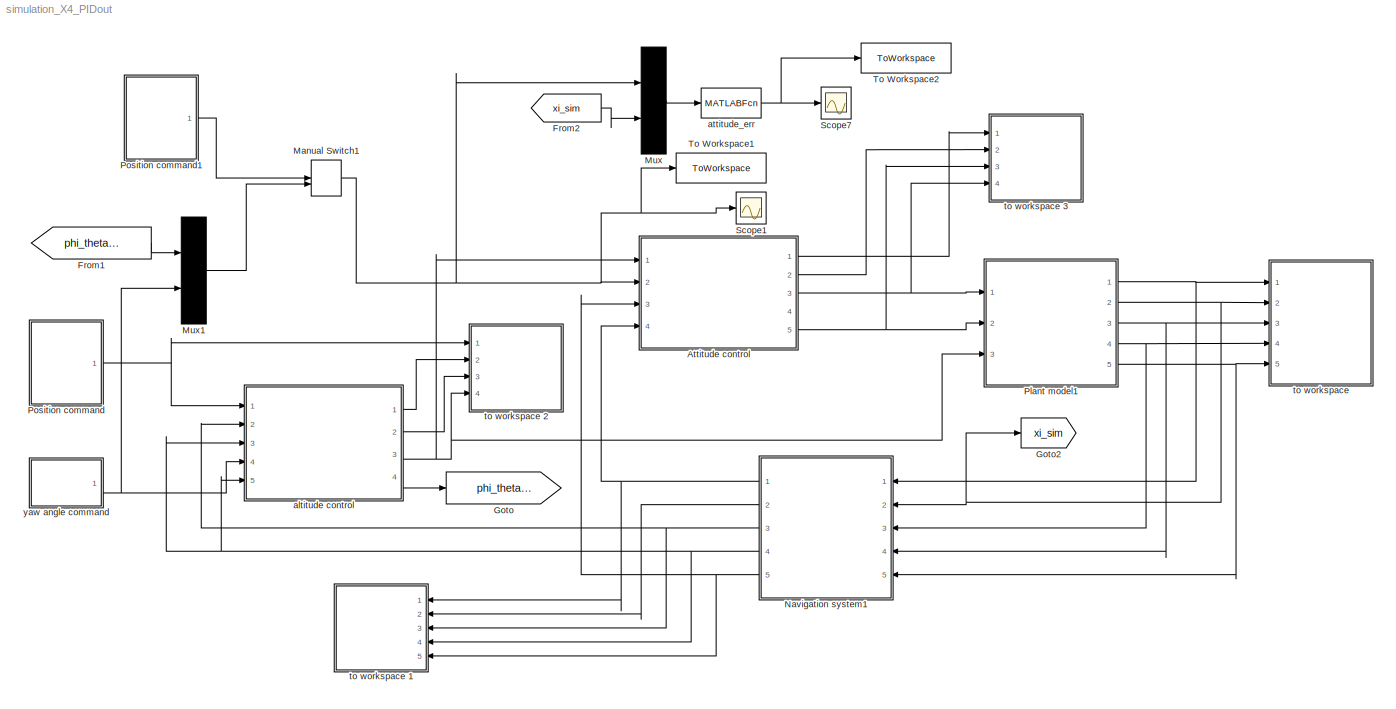
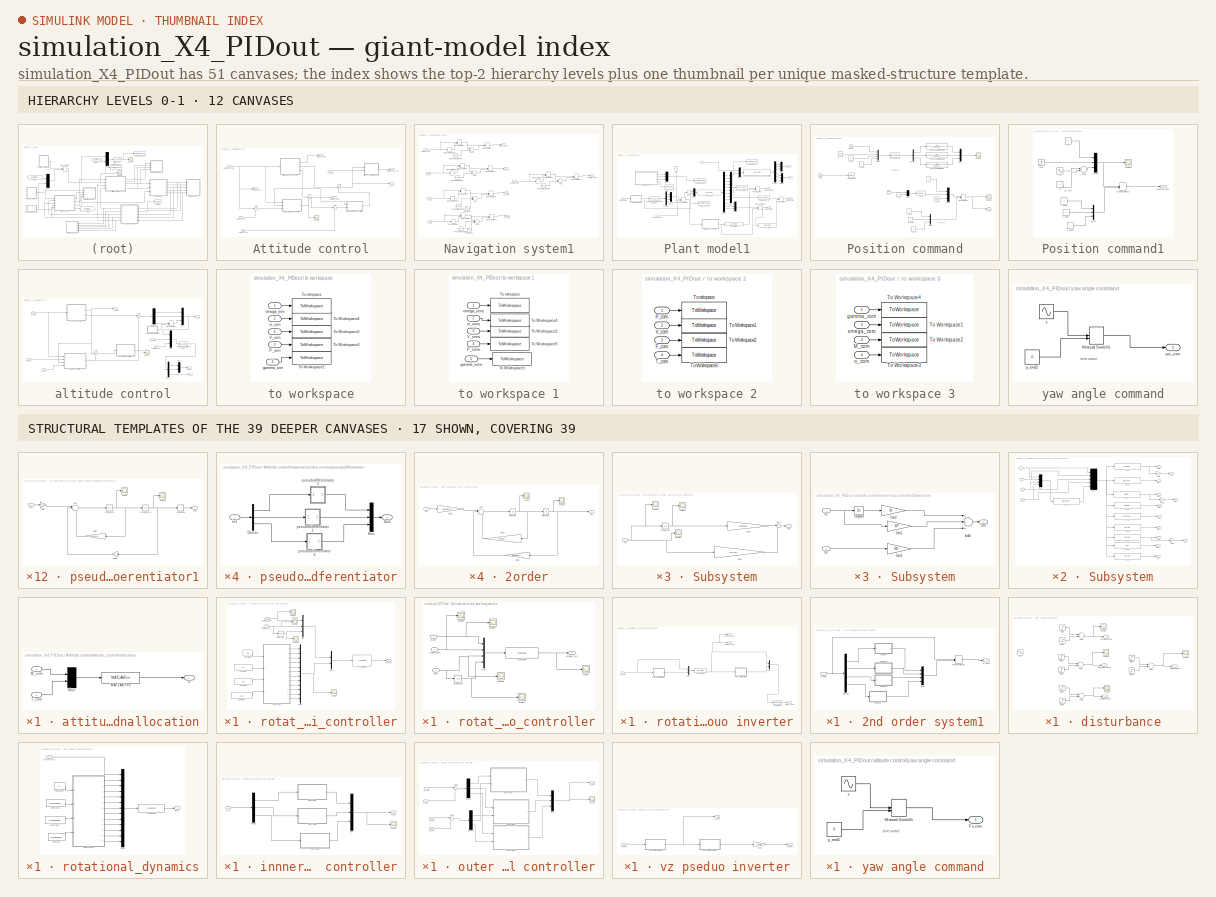
[diagram: thumbnail index - top-2 hierarchy levels (12 canvases) + 17 structural-template representatives of the remaining 39 canvases]
MODEL simulation_X4_PIDout
KIND model
BLOCK [SubSystem] Attitude control
  Ports = [4, 5]
  RequestExecContextInheritance = off
  SID = 1
  Variant = off
BLOCK [Outport] Attitude control/M_com
  IconDisplay = Port number
  Port = 5
  SID = 174
BLOCK [Scope] Attitude control/Scope7
  NumInputPorts = 1
  Ports = [1]
  SID = 6
  ScopeSpecificationString = C++SS(StrPVP('Location','[1, 48, 1367, 727]'),StrPVP('Open','off'),MxPVP('AxesTitles',24,'struct(''axes1'',''%<SignalLabel>'')'),MxPVP('ScopeGraphics',28,'struct(''FigureColor'',''[0.5 0.5 0.5]'',''AxesColor'',''[0 0 0]'',''AxesTickColor'',''[1 1 1]'',''LineColors'',''[1 1 0;1 0 1;0 1 1;1 0 0;0 1 0;0 0 1]'',''LineStyles'',''-|-|-|-|-|-'',''LineWidths'',''[0.5 0.5 0.5 0.5 0.5 0.5]'',''MarkerStyles'...<+269ch>  <repeated x6 — deduplicated; at blocks: Scope7, Scope1>
BLOCK [Sum] Attitude control/Sum2
  IconShape = round
  InputSameDT = off
  Inputs = |+-
  OutDataTypeStr = Inherit: Inherit via internal rule
  Ports = [2, 1]
  SID = 7
  SaturateOnIntegerOverflow = off
BLOCK [Sum] Attitude control/Sum3
  IconShape = round
  InputSameDT = off
  Inputs = |+-
  OutDataTypeStr = Inherit: Inherit via internal rule
  Ports = [2, 1]
  SID = 8
  SaturateOnIntegerOverflow = off
BLOCK [Sum] Attitude control/Sum7
  IconShape = round
  InputSameDT = off
  Inputs = |++
  OutDataTypeStr = Inherit: Inherit via internal rule
  Ports = [2, 1]
  SID = 9
  SaturateOnIntegerOverflow = off
BLOCK [Sum] Attitude control/Sum8
  IconShape = round
  InputSameDT = off
  Inputs = |++
  OutDataTypeStr = Inherit: Inherit via internal rule
  Ports = [2, 1]
  SID = 10
  SaturateOnIntegerOverflow = off
BLOCK [Inport] Attitude control/T_com_in
  IconDisplay = Port number
  SID = 2
BLOCK [SubSystem] Attitude control/attitude_control\nallocation
  Ports = [2, 1]
  RequestExecContextInheritance = off
  SID = 11
  Variant = off
BLOCK [MATLABFcn] Attitude control/attitude_control\nallocation/MATLAB Fcn
  MATLABFcn = attitude_control_allocation(u(1),u(2),u(3),u(4))
  Ports = [1, 1]
  SID = 14
BLOCK [Inport] Attitude control/attitude_control\nallocation/M_com
  IconDisplay = Port number
  SID = 12
BLOCK [Mux] Attitude control/attitude_control\nallocation/Mux
  DisplayOption = bar
  Inputs = 2
  Ports = [2, 1]
  SID = 15
BLOCK [Inport] Attitude control/attitude_control\nallocation/T_com
  IconDisplay = Port number
  Port = 2
  SID = 13
BLOCK [Outport] Attitude control/attitude_control\nallocation/o
  IconDisplay = Port number
  SID = 16
BLOCK [Outport] Attitude control/gamma_com
  IconDisplay = Port number
  SID = 170
BLOCK [Inport] Attitude control/gamma_com_in
  IconDisplay = Port number
  Port = 2
  SID = 3
BLOCK [Inport] Attitude control/gamma_sen
  IconDisplay = Port number
  Port = 3
  SID = 4
BLOCK [Outport] Attitude control/motor speed_com
  IconDisplay = Port number
  Port = 3
  SID = 172
BLOCK [Outport] Attitude control/omega_com
  IconDisplay = Port number
  Port = 2
  SID = 171
BLOCK [Outport] Attitude control/omega_nom
  IconDisplay = Port number
  Port = 4
  SID = 173
BLOCK [Inport] Attitude control/omega_sen
  IconDisplay = Port number
  Port = 4
  SID = 5
BLOCK [SubSystem] Attitude control/rotat_inner\nloop_controller
  Ports = [2, 1]
  RequestExecContextInheritance = off
  SID = 17
  Variant = off
BLOCK [Constant] Attitude control/rotat_inner\nloop_controller/Constant
  SID = 20
  Value = Ixx
BLOCK [Constant] Attitude control/rotat_inner\nloop_controller/Constant1
  SID = 21
  Value = Iyy
BLOCK [Constant] Attitude control/rotat_inner\nloop_controller/Constant2
  SID = 22
  Value = Izz
BLOCK [Constant] Attitude control/rotat_inner\nloop_controller/Constant3
  SID = 23
  Value = Ixz
BLOCK [Integrator] Attitude control/rotat_inner\nloop_controller/Integrator
  Ports = [1, 1]
  SID = 24
BLOCK [Mux] Attitude control/rotat_inner\nloop_controller/Mux
  DisplayOption = bar
  Inputs = 3
  Ports = [3, 1]
  SID = 25
BLOCK [Mux] Attitude control/rotat_inner\nloop_controller/Mux1
  DisplayOption = bar
  Inputs = 12
  Ports = [12, 1]
  SID = 26
BLOCK [Mux] Attitude control/rotat_inner\nloop_controller/Mux2
  DisplayOption = bar
  Inputs = 2
  Ports = [2, 1]
  SID = 27
BLOCK [S-Function] Attitude control/rotat_inner\nloop_controller/S-Function
  EnableBusSupport = off
  FunctionName = PI_controller_omega
  Ports = [1, 1]
  SFcnIsStateOwnerBlock = off
  SFunctionDeploymentMode = off
  SID = 28
BLOCK [Scope] Attitude control/rotat_inner\nloop_controller/Scope
  NumInputPorts = 1
  Ports = [1]
  SID = 29
  ScopeSpecificationString = C++SS(StrPVP('Location','[1, 52, 1441, 869]'),StrPVP('Open','off'),MxPVP('AxesTitles',24,'struct(''axes1'',''%<SignalLabel>'')'),StrPVP('ShowLegends','off'),StrPVP('DataFormat','StructureWithTime'),StrPVP('BlockParamSampleTime','0'),StrPVP('LimitDataPoints','on'),StrPVP('Decimation','1'),StrPVP('BlockParamSampleInput','off'))
BLOCK [Scope] Attitude control/rotat_inner\nloop_controller/Scope1
  NumInputPorts = 1
  Ports = [1]
  SID = 30
  ScopeSpecificationString = C++SS(StrPVP('Location','[1, 52, 1441, 869]'),StrPVP('Open','off'),MxPVP('AxesTitles',24,'struct(''axes1'',''%<SignalLabel>'')'),StrPVP('ShowLegends','off'),StrPVP('SaveName','ScopeData1'),StrPVP('DataFormat','StructureWithTime'),StrPVP('BlockParamSampleTime','0'),StrPVP('LimitDataPoints','on'),StrPVP('Decimation','1'),StrPVP('BlockParamSampleInput','off'))
BLOCK [Scope] Attitude control/rotat_inner\nloop_controller/Scope2
  NumInputPorts = 1
  Ports = [1]
  SID = 31
  ScopeSpecificationString = C++SS(StrPVP('Location','[5, 52, 1445, 869]'),StrPVP('Open','off'),MxPVP('AxesTitles',24,'struct(''axes1'',''%<SignalLabel>'')'),StrPVP('ShowLegends','off'),StrPVP('SaveName','ScopeData2'),StrPVP('DataFormat','StructureWithTime'),StrPVP('BlockParamSampleTime','0'),StrPVP('LimitDataPoints','on'),StrPVP('Decimation','1'),StrPVP('BlockParamSampleInput','off'))
BLOCK [Scope] Attitude control/rotat_inner\nloop_controller/Scope3
  NumInputPorts = 1
  Ports = [1]
  SID = 32
  ScopeSpecificationString = C++SS(StrPVP('Location','[5, 52, 1445, 869]'),StrPVP('Open','off'),MxPVP('AxesTitles',24,'struct(''axes1'',''%<SignalLabel>'')'),StrPVP('ShowLegends','off'),StrPVP('SaveName','ScopeData3'),StrPVP('DataFormat','StructureWithTime'),StrPVP('BlockParamSampleTime','0'),StrPVP('LimitDataPoints','on'),StrPVP('Decimation','1'),StrPVP('BlockParamSampleInput','off'))
BLOCK [SubSystem] Attitude control/rotat_inner\nloop_controller/Subsystem
  Ports = [4, 12]
  RequestExecContextInheritance = off
  SID = 33
  Variant = off
BLOCK [Fcn] Attitude control/rotat_inner\nloop_controller/Subsystem/Fcn
  Expr = (u(1)*(u(2)-u(3)-u(4)))*u(5)
  SID = 38
BLOCK [Fcn] Attitude control/rotat_inner\nloop_controller/Subsystem/Fcn1
  Expr = 1/(u(1)^2-u(4)*u(3))
  SID = 39
BLOCK [Fcn] Attitude control/rotat_inner\nloop_controller/Subsystem/Fcn2
  Expr = (u(3)^2-u(2)*u(3)-u(4)^2)*u(5)
  SID = 40
BLOCK [Fcn] Attitude control/rotat_inner\nloop_controller/Subsystem/Fcn3
  Expr = -u(1)/u(2)
  SID = 41
BLOCK [Fcn] Attitude control/rotat_inner\nloop_controller/Subsystem/Fcn4
  Expr = (u(3)-u(4))/u(2)
  SID = 42
BLOCK [Fcn] Attitude control/rotat_inner\nloop_controller/Subsystem/Fcn5
  Expr = (u(4)*u(2)-u(1)^2-u(4)^2)*u(5)
  SID = 43
BLOCK [Fcn] Attitude control/rotat_inner\nloop_controller/Subsystem/Fcn6
  Expr = -u(3)*u(5)
  SID = 44
BLOCK [Fcn] Attitude control/rotat_inner\nloop_controller/Subsystem/Fcn7
  Expr = -u(1)*u(5)
  SID = 45
BLOCK [Fcn] Attitude control/rotat_inner\nloop_controller/Subsystem/Fcn8
  Expr = 1/u(2)
  SID = 46
BLOCK [Fcn] Attitude control/rotat_inner\nloop_controller/Subsystem/Fcn9
  Expr = -u(4)*u(5)
  SID = 47
BLOCK [Gain] Attitude control/rotat_inner\nloop_controller/Subsystem/Gain
  Gain = -1
  OutDataTypeStr = Inherit: Inherit via internal rule
  ParamDataTypeStr = Inherit: Inherit via internal rule
  SID = 48
  SaturateOnIntegerOverflow = off
BLOCK [Gain] Attitude control/rotat_inner\nloop_controller/Subsystem/Gain1
  Gain = -1
  OutDataTypeStr = Inherit: Inherit via internal rule
  ParamDataTypeStr = Inherit: Inherit via internal rule
  SID = 49
  SaturateOnIntegerOverflow = off
BLOCK [Gain] Attitude control/rotat_inner\nloop_controller/Subsystem/Gain2
  OutDataTypeStr = Inherit: Inherit via internal rule
  ParamDataTypeStr = Inherit: Inherit via internal rule
  SID = 50
  SaturateOnIntegerOverflow = off
BLOCK [Outport] Attitude control/rotat_inner\nloop_controller/Subsystem/Ippq
  IconDisplay = Port number
  SID = 53
BLOCK [Outport] Attitude control/rotat_inner\nloop_controller/Subsystem/Ipqr
  IconDisplay = Port number
  Port = 2
  SID = 54
BLOCK [Outport] Attitude control/rotat_inner\nloop_controller/Subsystem/Iqpp
  IconDisplay = Port number
  Port = 3
  SID = 55
BLOCK [Outport] Attitude control/rotat_inner\nloop_controller/Subsystem/Iqpr
  IconDisplay = Port number
  Port = 4
  SID = 56
BLOCK [Outport] Attitude control/rotat_inner\nloop_controller/Subsystem/Iqrr
  IconDisplay = Port number
  Port = 11
  SID = 63
BLOCK [Outport] Attitude control/rotat_inner\nloop_controller/Subsystem/Irpq
  IconDisplay = Port number
  Port = 5
  SID = 57
BLOCK [Outport] Attitude control/rotat_inner\nloop_controller/Subsystem/Irqr
  IconDisplay = Port number
  Port = 10
  SID = 62
BLOCK [Inport] Attitude control/rotat_inner\nloop_controller/Subsystem/Ixx
  IconDisplay = Port number
  Port = 4
  SID = 37
BLOCK [Inport] Attitude control/rotat_inner\nloop_controller/Subsystem/Ixz
  IconDisplay = Port number
  SID = 34
BLOCK [Inport] Attitude control/rotat_inner\nloop_controller/Subsystem/Iyy
  IconDisplay = Port number
  Port = 2
  SID = 35
BLOCK [Inport] Attitude control/rotat_inner\nloop_controller/Subsystem/Izz
  IconDisplay = Port number
  Port = 3
  SID = 36
BLOCK [Mux] Attitude control/rotat_inner\nloop_controller/Subsystem/Mux
  DisplayOption = bar
  Ports = [4, 1]
  SID = 51
BLOCK [Mux] Attitude control/rotat_inner\nloop_controller/Subsystem/Mux1
  DisplayOption = bar
  Inputs = 5
  Ports = [5, 1]
  SID = 52
BLOCK [Outport] Attitude control/rotat_inner\nloop_controller/Subsystem/gpl
  IconDisplay = Port number
  Port = 6
  SID = 58
BLOCK [Outport] Attitude control/rotat_inner\nloop_controller/Subsystem/gpn
  IconDisplay = Port number
  Port = 7
  SID = 59
BLOCK [Outport] Attitude control/rotat_inner\nloop_controller/Subsystem/gqm
  IconDisplay = Port number
  Port = 8
  SID = 60
BLOCK [Outport] Attitude control/rotat_inner\nloop_controller/Subsystem/grl
  IconDisplay = Port number
  Port = 12
  SID = 64
BLOCK [Outport] Attitude control/rotat_inner\nloop_controller/Subsystem/grn
  IconDisplay = Port number
  Port = 9
  SID = 61
BLOCK [Outport] Attitude control/rotat_inner\nloop_controller/T_b_err
  IconDisplay = Port number
  SID = 65
BLOCK [Inport] Attitude control/rotat_inner\nloop_controller/omega_err
  IconDisplay = Port number
  Port = 2
  SID = 19
BLOCK [Inport] Attitude control/rotat_inner\nloop_controller/omega_nom
  IconDisplay = Port number
  SID = 18
BLOCK [SubSystem] Attitude control/rotat_outer\nloop_controller
  Ports = [3, 1]
  RequestExecContextInheritance = off
  SID = 66
  Variant = off
BLOCK [Integrator] Attitude control/rotat_outer\nloop_controller/Integrator
  Ports = [1, 1]
  SID = 70
BLOCK [Mux] Attitude control/rotat_outer\nloop_controller/Mux
  DisplayOption = bar
  Ports = [4, 1]
  SID = 71
BLOCK [S-Function] Attitude control/rotat_outer\nloop_controller/S-Function
  EnableBusSupport = off
  FunctionName = PI_controller_gamma
  Ports = [1, 1]
  SFcnIsStateOwnerBlock = off
  SFunctionDeploymentMode = off
  SID = 72
BLOCK [Scope] Attitude control/rotat_outer\nloop_controller/Scope
  NumInputPorts = 1
  Ports = [1]
  SID = 73
  ScopeSpecificationString = C++SS(StrPVP('Location','[1, 52, 1441, 869]'),StrPVP('Open','off'),MxPVP('AxesTitles',24,'struct(''axes1'',''%<SignalLabel>'')'),StrPVP('ShowLegends','off'),StrPVP('SaveName','ScopeData5'),StrPVP('DataFormat','StructureWithTime'),StrPVP('BlockParamSampleTime','0'),StrPVP('LimitDataPoints','on'),StrPVP('Decimation','1'),StrPVP('BlockParamSampleInput','off'))
BLOCK [Scope] Attitude control/rotat_outer\nloop_controller/Scope1
  NumInputPorts = 1
  Ports = [1]
  SID = 74
  ScopeSpecificationString = C++SS(StrPVP('Location','[1, 52, 1441, 869]'),StrPVP('Open','off'),MxPVP('AxesTitles',24,'struct(''axes1'',''%<SignalLabel>'')'),StrPVP('ShowLegends','off'),StrPVP('SaveName','ScopeData6'),StrPVP('DataFormat','StructureWithTime'),StrPVP('BlockParamSampleTime','0'),StrPVP('LimitDataPoints','on'),StrPVP('Decimation','1'),StrPVP('BlockParamSampleInput','off'))
BLOCK [Scope] Attitude control/rotat_outer\nloop_controller/Scope2
  NumInputPorts = 1
  Ports = [1]
  SID = 75
  ScopeSpecificationString = C++SS(StrPVP('Location','[1, 52, 1441, 869]'),StrPVP('Open','off'),MxPVP('AxesTitles',24,'struct(''axes1'',''%<SignalLabel>'')'),StrPVP('ShowLegends','off'),StrPVP('SaveName','ScopeData7'),StrPVP('DataFormat','StructureWithTime'),StrPVP('BlockParamSampleTime','0'),StrPVP('LimitDataPoints','on'),StrPVP('Decimation','1'),StrPVP('BlockParamSampleInput','off'))
BLOCK [Scope] Attitude control/rotat_outer\nloop_controller/Scope3
  NumInputPorts = 1
  Ports = [1]
  SID = 76
  ScopeSpecificationString = C++SS(StrPVP('Location','[1, 52, 1441, 869]'),StrPVP('Open','off'),MxPVP('AxesTitles',24,'struct(''axes1'',''%<SignalLabel>'')'),StrPVP('ShowLegends','off'),StrPVP('SaveName','ScopeData8'),StrPVP('DataFormat','StructureWithTime'),StrPVP('BlockParamSampleTime','0'),StrPVP('LimitDataPoints','on'),StrPVP('Decimation','1'),StrPVP('BlockParamSampleInput','off'))  <repeated x4 — deduplicated; at blocks: Scope3>
BLOCK [Scope] Attitude control/rotat_outer\nloop_controller/Scope4
  NumInputPorts = 1
  Ports = [1]
  SID = 77
  ScopeSpecificationString = C++SS(StrPVP('Location','[1, 52, 1441, 869]'),StrPVP('Open','off'),MxPVP('AxesTitles',24,'struct(''axes1'',''%<SignalLabel>'')'),StrPVP('ShowLegends','off'),StrPVP('SaveName','ScopeData9'),StrPVP('DataFormat','StructureWithTime'),StrPVP('BlockParamSampleTime','0'),StrPVP('LimitDataPoints','on'),StrPVP('Decimation','1'),StrPVP('BlockParamSampleInput','off'))
BLOCK [Outport] Attitude control/rotat_outer\nloop_controller/omega_c_err
  IconDisplay = Port number
  SID = 78
BLOCK [Inport] Attitude control/rotat_outer\nloop_controller/omega_nom
  IconDisplay = Port number
  Port = 2
  SID = 68
BLOCK [Inport] Attitude control/rotat_outer\nloop_controller/xi_err
  IconDisplay = Port number
  Port = 3
  SID = 69
BLOCK [Inport] Attitude control/rotat_outer\nloop_controller/xi_nom
  IconDisplay = Port number
  SID = 67
BLOCK [SubSystem] Attitude control/rotational pseduo inverter
  Ports = [1, 3]
  RequestExecContextInheritance = off
  SID = 79
  Variant = off
BLOCK [Mux] Attitude control/rotational pseduo inverter/Mux7
  DisplayOption = bar
  Inputs = 2
  Ports = [2, 1]
  SID = 81
BLOCK [Mux] Attitude control/rotational pseduo inverter/Mux9
  DisplayOption = bar
  Inputs = 2
  Ports = [2, 1]
  SID = 82
BLOCK [S-Function] Attitude control/rotational pseduo inverter/S-Function3
  EnableBusSupport = off
  FunctionName = omega_nom
  Ports = [1, 1]
  SFcnIsStateOwnerBlock = off
  SFunctionDeploymentMode = off
  SID = 83
BLOCK [S-Function] Attitude control/rotational pseduo inverter/S-Function4
  EnableBusSupport = off
  FunctionName = torque_nom
  Ports = [1, 1]
  SFcnIsStateOwnerBlock = off
  SFunctionDeploymentMode = off
  SID = 84
BLOCK [Outport] Attitude control/rotational pseduo inverter/omega_nom_1
  IconDisplay = Port number
  SID = 167
BLOCK [Outport] Attitude control/rotational pseduo inverter/omega_nom_2
  IconDisplay = Port number
  Port = 3
  SID = 169
BLOCK [SubSystem] Attitude control/rotational pseduo inverter/pseudodifferentiator
  Ports = [1, 1]
  RequestExecContextInheritance = off
  SID = 85
  Variant = off
BLOCK [Demux] Attitude control/rotational pseduo inverter/pseudodifferentiator/Demux
  DisplayOption = bar
  Outputs = 3
  Ports = [1, 3]
  SID = 87
BLOCK [Inport] Attitude control/rotational pseduo inverter/pseudodifferentiator/In1
  IconDisplay = Port number
  SID = 86
BLOCK [Mux] Attitude control/rotational pseduo inverter/pseudodifferentiator/Mux
  DisplayOption = bar
  Inputs = 3
  Ports = [3, 1]
  SID = 88
BLOCK [Outport] Attitude control/rotational pseduo inverter/pseudodifferentiator/Out1
  IconDisplay = Port number
  SID = 125
BLOCK [SubSystem] Attitude control/rotational pseduo inverter/pseudodifferentiator/pseudodifferentiator1
  Ports = [1, 1]
  RequestExecContextInheritance = off
  SID = 89
  Variant = off
BLOCK [Gain] Attitude control/rotational pseduo inverter/pseudodifferentiator/pseudodifferentiator1/-Gain1
  Gain = 25
  OutDataTypeStr = Inherit: Inherit via internal rule
  ParamDataTypeStr = Inherit: Inherit via internal rule
  SID = 91
  SaturateOnIntegerOverflow = off
BLOCK [Derivative] Attitude control/rotational pseduo inverter/pseudodifferentiator/pseudodifferentiator1/Derivative
  SID = 92
BLOCK [Gain] Attitude control/rotational pseduo inverter/pseudodifferentiator/pseudodifferentiator1/Gain1
  Gain = 25
  OutDataTypeStr = Inherit: Inherit via internal rule
  ParamDataTypeStr = Inherit: Inherit via internal rule
  SID = 93
  SaturateOnIntegerOverflow = off
BLOCK [Gain] Attitude control/rotational pseduo inverter/pseudodifferentiator/pseudodifferentiator1/Gain2
  Gain = 2*5*1.414
  OutDataTypeStr = Inherit: Inherit via internal rule
  ParamDataTypeStr = Inherit: Inherit via internal rule
  SID = 94
  SaturateOnIntegerOverflow = off
BLOCK [Inport] Attitude control/rotational pseduo inverter/pseudodifferentiator/pseudodifferentiator1/In1
  IconDisplay = Port number
  SID = 90
BLOCK [Integrator] Attitude control/rotational pseduo inverter/pseudodifferentiator/pseudodifferentiator1/Integrator
  Ports = [1, 1]
  SID = 95
BLOCK [Integrator] Attitude control/rotational pseduo inverter/pseudodifferentiator/pseudodifferentiator1/Integrator1
  Ports = [1, 1]
  SID = 96
BLOCK [Outport] Attitude control/rotational pseduo inverter/pseudodifferentiator/pseudodifferentiator1/Out1
  IconDisplay = Port number
  SID = 100
BLOCK [Scope] Attitude control/rotational pseduo inverter/pseudodifferentiator/pseudodifferentiator1/Scope
  NumInputPorts = 1
  Ports = [1]
  SID = 97
  ScopeSpecificationString = C++SS(StrPVP('Location','[188, 390, 512, 629]'),StrPVP('Open','off'),MxPVP('AxesTitles',24,'struct(''axes1'',''%<SignalLabel>'')'),MxPVP('ScopeGraphics',28,'struct(''FigureColor'',''[0.5 0.5 0.5]'',''AxesColor'',''[0 0 0]'',''AxesTickColor'',''[1 1 1]'',''LineColors'',''[1 1 0;1 0 1;0 1 1;1 0 0;0 1 0;0 0 1]'',''LineStyles'',''-|-|-|-|-|-'',''LineWidths'',''[0.5 0.5 0.5 0.5 0.5 0.5]'',''MarkerStyle...<+239ch>  <repeated x3 — deduplicated; at blocks: Scope>
BLOCK [Scope] Attitude control/rotational pseduo inverter/pseudodifferentiator/pseudodifferentiator1/Scope1
  NumInputPorts = 1
  Ports = [1]
  SID = 98
BLOCK [Sum] Attitude control/rotational pseduo inverter/pseudodifferentiator/pseudodifferentiator1/Sum
  IconShape = round
  InputSameDT = off
  Inputs = |+--
  OutDataTypeStr = Inherit: Inherit via internal rule
  Ports = [3, 1]
  SID = 99
  SaturateOnIntegerOverflow = off
BLOCK [SubSystem] Attitude control/rotational pseduo inverter/pseudodifferentiator/pseudodifferentiator2
  Ports = [1, 1]
  RequestExecContextInheritance = off
  SID = 101
  Variant = off
BLOCK [Gain] Attitude control/rotational pseduo inverter/pseudodifferentiator/pseudodifferentiator2/-Gain1
  Gain = 25
  OutDataTypeStr = Inherit: Inherit via internal rule
  ParamDataTypeStr = Inherit: Inherit via internal rule
  SID = 103
  SaturateOnIntegerOverflow = off
BLOCK [Derivative] Attitude control/rotational pseduo inverter/pseudodifferentiator/pseudodifferentiator2/Derivative
  SID = 104
BLOCK [Gain] Attitude control/rotational pseduo inverter/pseudodifferentiator/pseudodifferentiator2/Gain1
  Gain = 25
  OutDataTypeStr = Inherit: Inherit via internal rule
  ParamDataTypeStr = Inherit: Inherit via internal rule
  SID = 105
  SaturateOnIntegerOverflow = off
BLOCK [Gain] Attitude control/rotational pseduo inverter/pseudodifferentiator/pseudodifferentiator2/Gain2
  Gain = 2*5*1.414
  OutDataTypeStr = Inherit: Inherit via internal rule
  ParamDataTypeStr = Inherit: Inherit via internal rule
  SID = 106
  SaturateOnIntegerOverflow = off
BLOCK [Inport] Attitude control/rotational pseduo inverter/pseudodifferentiator/pseudodifferentiator2/In1
  IconDisplay = Port number
  SID = 102
BLOCK [Integrator] Attitude control/rotational pseduo inverter/pseudodifferentiator/pseudodifferentiator2/Integrator
  Ports = [1, 1]
  SID = 107
BLOCK [Integrator] Attitude control/rotational pseduo inverter/pseudodifferentiator/pseudodifferentiator2/Integrator1
  Ports = [1, 1]
  SID = 108
BLOCK [Outport] Attitude control/rotational pseduo inverter/pseudodifferentiator/pseudodifferentiator2/Out1
  IconDisplay = Port number
  SID = 112
BLOCK [Scope] Attitude control/rotational pseduo inverter/pseudodifferentiator/pseudodifferentiator2/Scope
  NumInputPorts = 1
  Ports = [1]
  SID = 109
BLOCK [Scope] Attitude control/rotational pseduo inverter/pseudodifferentiator/pseudodifferentiator2/Scope1
  NumInputPorts = 1
  Ports = [1]
  SID = 110
  ScopeSpecificationString = C++SS(StrPVP('Location','[-86, 143, 1284, 866]'),StrPVP('Open','off'),MxPVP('AxesTitles',24,'struct(''axes1'',''%<SignalLabel>'')'),MxPVP('ScopeGraphics',28,'struct(''FigureColor'',''[0.5 0.5 0.5]'',''AxesColor'',''[0 0 0]'',''AxesTickColor'',''[1 1 1]'',''LineColors'',''[1 1 0;1 0 1;0 1 1;1 0 0;0 1 0;0 0 1]'',''LineStyles'',''-|-|-|-|-|-'',''LineWidths'',''[0.5 0.5 0.5 0.5 0.5 0.5]'',''MarkerStyl...<+272ch>
BLOCK [Sum] Attitude control/rotational pseduo inverter/pseudodifferentiator/pseudodifferentiator2/Sum
  IconShape = round
  InputSameDT = off
  Inputs = |+--
  OutDataTypeStr = Inherit: Inherit via internal rule
  Ports = [3, 1]
  SID = 111
  SaturateOnIntegerOverflow = off
BLOCK [SubSystem] Attitude control/rotational pseduo inverter/pseudodifferentiator/pseudodifferentiator3
  Ports = [1, 1]
  RequestExecContextInheritance = off
  SID = 113
  Variant = off
BLOCK [Gain] Attitude control/rotational pseduo inverter/pseudodifferentiator/pseudodifferentiator3/-Gain1
  Gain = 25
  OutDataTypeStr = Inherit: Inherit via internal rule
  ParamDataTypeStr = Inherit: Inherit via internal rule
  SID = 115
  SaturateOnIntegerOverflow = off
BLOCK [Derivative] Attitude control/rotational pseduo inverter/pseudodifferentiator/pseudodifferentiator3/Derivative
  SID = 116
BLOCK [Gain] Attitude control/rotational pseduo inverter/pseudodifferentiator/pseudodifferentiator3/Gain1
  Gain = 25
  OutDataTypeStr = Inherit: Inherit via internal rule
  ParamDataTypeStr = Inherit: Inherit via internal rule
  SID = 117
  SaturateOnIntegerOverflow = off
BLOCK [Gain] Attitude control/rotational pseduo inverter/pseudodifferentiator/pseudodifferentiator3/Gain2
  Gain = 2*5*1.414
  OutDataTypeStr = Inherit: Inherit via internal rule
  ParamDataTypeStr = Inherit: Inherit via internal rule
  SID = 118
  SaturateOnIntegerOverflow = off
BLOCK [Inport] Attitude control/rotational pseduo inverter/pseudodifferentiator/pseudodifferentiator3/In1
  IconDisplay = Port number
  SID = 114
BLOCK [Integrator] Attitude control/rotational pseduo inverter/pseudodifferentiator/pseudodifferentiator3/Integrator
  Ports = [1, 1]
  SID = 119
BLOCK [Integrator] Attitude control/rotational pseduo inverter/pseudodifferentiator/pseudodifferentiator3/Integrator1
  Ports = [1, 1]
  SID = 120
BLOCK [Outport] Attitude control/rotational pseduo inverter/pseudodifferentiator/pseudodifferentiator3/Out1
  IconDisplay = Port number
  SID = 124
BLOCK [Scope] Attitude control/rotational pseduo inverter/pseudodifferentiator/pseudodifferentiator3/Scope
  NumInputPorts = 1
  Ports = [1]
  SID = 121
  ScopeSpecificationString = C++SS(StrPVP('Location','[1, 48, 1367, 727]'),StrPVP('Open','off'),MxPVP('AxesTitles',24,'struct(''axes1'',''%<SignalLabel>'')'),MxPVP('ScopeGraphics',28,'struct(''FigureColor'',''[0.5 0.5 0.5]'',''AxesColor'',''[0 0 0]'',''AxesTickColor'',''[1 1 1]'',''LineColors'',''[1 1 0;1 0 1;0 1 1;1 0 0;0 1 0;0 0 1]'',''LineStyles'',''-|-|-|-|-|-'',''LineWidths'',''[0.5 0.5 0.5 0.5 0.5 0.5]'',''MarkerStyles'...<+237ch>  <repeated x3 — deduplicated; at blocks: Scope>
BLOCK [Scope] Attitude control/rotational pseduo inverter/pseudodifferentiator/pseudodifferentiator3/Scope1
  NumInputPorts = 1
  Ports = [1]
  SID = 122
BLOCK [Sum] Attitude control/rotational pseduo inverter/pseudodifferentiator/pseudodifferentiator3/Sum
  IconShape = round
  InputSameDT = off
  Inputs = |+--
  OutDataTypeStr = Inherit: Inherit via internal rule
  Ports = [3, 1]
  SID = 123
  SaturateOnIntegerOverflow = off
BLOCK [SubSystem] Attitude control/rotational pseduo inverter/pseudodifferentiator1
  Ports = [1, 1]
  RequestExecContextInheritance = off
  SID = 126
  Variant = off
BLOCK [Demux] Attitude control/rotational pseduo inverter/pseudodifferentiator1/Demux
  DisplayOption = bar
  Outputs = 3
  Ports = [1, 3]
  SID = 128
BLOCK [Inport] Attitude control/rotational pseduo inverter/pseudodifferentiator1/In1
  IconDisplay = Port number
  SID = 127
BLOCK [Mux] Attitude control/rotational pseduo inverter/pseudodifferentiator1/Mux
  DisplayOption = bar
  Inputs = 3
  Ports = [3, 1]
  SID = 129
BLOCK [Outport] Attitude control/rotational pseduo inverter/pseudodifferentiator1/Out1
  IconDisplay = Port number
  SID = 166
BLOCK [SubSystem] Attitude control/rotational pseduo inverter/pseudodifferentiator1/pseudodifferentiator1
  Ports = [1, 1]
  RequestExecContextInheritance = off
  SID = 130
  Variant = off
BLOCK [Gain] Attitude control/rotational pseduo inverter/pseudodifferentiator1/pseudodifferentiator1/-Gain1
  Gain = 100
  OutDataTypeStr = Inherit: Inherit via internal rule
  ParamDataTypeStr = Inherit: Inherit via internal rule
  SID = 132
  SaturateOnIntegerOverflow = off
BLOCK [Derivative] Attitude control/rotational pseduo inverter/pseudodifferentiator1/pseudodifferentiator1/Derivative
  SID = 133
BLOCK [Gain] Attitude control/rotational pseduo inverter/pseudodifferentiator1/pseudodifferentiator1/Gain1
  Gain = 100
  OutDataTypeStr = Inherit: Inherit via internal rule
  ParamDataTypeStr = Inherit: Inherit via internal rule
  SID = 134
  SaturateOnIntegerOverflow = off
BLOCK [Gain] Attitude control/rotational pseduo inverter/pseudodifferentiator1/pseudodifferentiator1/Gain2
  Gain = 28.28
  OutDataTypeStr = Inherit: Inherit via internal rule
  ParamDataTypeStr = Inherit: Inherit via internal rule
  SID = 135
  SaturateOnIntegerOverflow = off
BLOCK [Inport] Attitude control/rotational pseduo inverter/pseudodifferentiator1/pseudodifferentiator1/In1
  IconDisplay = Port number
  SID = 131
BLOCK [Integrator] Attitude control/rotational pseduo inverter/pseudodifferentiator1/pseudodifferentiator1/Integrator
  Ports = [1, 1]
  SID = 136
BLOCK [Integrator] Attitude control/rotational pseduo inverter/pseudodifferentiator1/pseudodifferentiator1/Integrator1
  Ports = [1, 1]
  SID = 137
BLOCK [Outport] Attitude control/rotational pseduo inverter/pseudodifferentiator1/pseudodifferentiator1/Out1
  IconDisplay = Port number
  SID = 141
BLOCK [Scope] Attitude control/rotational pseduo inverter/pseudodifferentiator1/pseudodifferentiator1/Scope
  NumInputPorts = 1
  Ports = [1]
  SID = 138
  ScopeSpecificationString = C++SS(StrPVP('Location','[188, 390, 512, 629]'),StrPVP('Open','off'),MxPVP('AxesTitles',24,'struct(''axes1'',''%<SignalLabel>'')'),StrPVP('ShowLegends','off'),StrPVP('DataFormat','StructureWithTime'),StrPVP('BlockParamSampleTime','0'),StrPVP('LimitDataPoints','on'),StrPVP('Decimation','1'),StrPVP('BlockParamSampleInput','off'))  <repeated x10 — deduplicated; at blocks: Scope>
BLOCK [Scope] Attitude control/rotational pseduo inverter/pseudodifferentiator1/pseudodifferentiator1/Scope1
  NumInputPorts = 1
  Ports = [1]
  SID = 139
  ScopeSpecificationString = C++SS(StrPVP('Location','[5, 52, 1445, 869]'),StrPVP('Open','off'),MxPVP('AxesTitles',24,'struct(''axes1'',''%<SignalLabel>'')'),StrPVP('ShowLegends','off'),StrPVP('SaveName','ScopeData1'),StrPVP('DataFormat','StructureWithTime'),StrPVP('BlockParamSampleTime','0'),StrPVP('LimitDataPoints','on'),StrPVP('Decimation','1'),StrPVP('BlockParamSampleInput','off'))  <repeated x9 — deduplicated; at blocks: Scope1>
BLOCK [Sum] Attitude control/rotational pseduo inverter/pseudodifferentiator1/pseudodifferentiator1/Sum
  IconShape = round
  InputSameDT = off
  Inputs = |+--
  OutDataTypeStr = Inherit: Inherit via internal rule
  Ports = [3, 1]
  SID = 140
  SaturateOnIntegerOverflow = off
BLOCK [SubSystem] Attitude control/rotational pseduo inverter/pseudodifferentiator1/pseudodifferentiator2
  Ports = [1, 1]
  RequestExecContextInheritance = off
  SID = 142
  Variant = off
BLOCK [Gain] Attitude control/rotational pseduo inverter/pseudodifferentiator1/pseudodifferentiator2/-Gain1
  Gain = 100
  OutDataTypeStr = Inherit: Inherit via internal rule
  ParamDataTypeStr = Inherit: Inherit via internal rule
  SID = 144
  SaturateOnIntegerOverflow = off
BLOCK [Derivative] Attitude control/rotational pseduo inverter/pseudodifferentiator1/pseudodifferentiator2/Derivative
  SID = 145
BLOCK [Gain] Attitude control/rotational pseduo inverter/pseudodifferentiator1/pseudodifferentiator2/Gain1
  Gain = 100
  OutDataTypeStr = Inherit: Inherit via internal rule
  ParamDataTypeStr = Inherit: Inherit via internal rule
  SID = 146
  SaturateOnIntegerOverflow = off
BLOCK [Gain] Attitude control/rotational pseduo inverter/pseudodifferentiator1/pseudodifferentiator2/Gain2
  Gain = 28.28
  OutDataTypeStr = Inherit: Inherit via internal rule
  ParamDataTypeStr = Inherit: Inherit via internal rule
  SID = 147
  SaturateOnIntegerOverflow = off
BLOCK [Inport] Attitude control/rotational pseduo inverter/pseudodifferentiator1/pseudodifferentiator2/In1
  IconDisplay = Port number
  SID = 143
BLOCK [Integrator] Attitude control/rotational pseduo inverter/pseudodifferentiator1/pseudodifferentiator2/Integrator
  Ports = [1, 1]
  SID = 148
BLOCK [Integrator] Attitude control/rotational pseduo inverter/pseudodifferentiator1/pseudodifferentiator2/Integrator1
  Ports = [1, 1]
  SID = 149
BLOCK [Outport] Attitude control/rotational pseduo inverter/pseudodifferentiator1/pseudodifferentiator2/Out1
  IconDisplay = Port number
  SID = 153
BLOCK [Scope] Attitude control/rotational pseduo inverter/pseudodifferentiator1/pseudodifferentiator2/Scope
  NumInputPorts = 1
  Ports = [1]
  SID = 150
BLOCK [Scope] Attitude control/rotational pseduo inverter/pseudodifferentiator1/pseudodifferentiator2/Scope1
  NumInputPorts = 1
  Ports = [1]
  SID = 151
BLOCK [Sum] Attitude control/rotational pseduo inverter/pseudodifferentiator1/pseudodifferentiator2/Sum
  IconShape = round
  InputSameDT = off
  Inputs = |+--
  OutDataTypeStr = Inherit: Inherit via internal rule
  Ports = [3, 1]
  SID = 152
  SaturateOnIntegerOverflow = off
BLOCK [SubSystem] Attitude control/rotational pseduo inverter/pseudodifferentiator1/pseudodifferentiator3
  Ports = [1, 1]
  RequestExecContextInheritance = off
  SID = 154
  Variant = off
BLOCK [Gain] Attitude control/rotational pseduo inverter/pseudodifferentiator1/pseudodifferentiator3/-Gain1
  Gain = 100
  OutDataTypeStr = Inherit: Inherit via internal rule
  ParamDataTypeStr = Inherit: Inherit via internal rule
  SID = 156
  SaturateOnIntegerOverflow = off
BLOCK [Derivative] Attitude control/rotational pseduo inverter/pseudodifferentiator1/pseudodifferentiator3/Derivative
  SID = 157
BLOCK [Gain] Attitude control/rotational pseduo inverter/pseudodifferentiator1/pseudodifferentiator3/Gain1
  Gain = 100
  OutDataTypeStr = Inherit: Inherit via internal rule
  ParamDataTypeStr = Inherit: Inherit via internal rule
  SID = 158
  SaturateOnIntegerOverflow = off
BLOCK [Gain] Attitude control/rotational pseduo inverter/pseudodifferentiator1/pseudodifferentiator3/Gain2
  Gain = 28.28
  OutDataTypeStr = Inherit: Inherit via internal rule
  ParamDataTypeStr = Inherit: Inherit via internal rule
  SID = 159
  SaturateOnIntegerOverflow = off
BLOCK [Inport] Attitude control/rotational pseduo inverter/pseudodifferentiator1/pseudodifferentiator3/In1
  IconDisplay = Port number
  SID = 155
BLOCK [Integrator] Attitude control/rotational pseduo inverter/pseudodifferentiator1/pseudodifferentiator3/Integrator
  Ports = [1, 1]
  SID = 160
BLOCK [Integrator] Attitude control/rotational pseduo inverter/pseudodifferentiator1/pseudodifferentiator3/Integrator1
  Ports = [1, 1]
  SID = 161
BLOCK [Outport] Attitude control/rotational pseduo inverter/pseudodifferentiator1/pseudodifferentiator3/Out1
  IconDisplay = Port number
  SID = 165
BLOCK [Scope] Attitude control/rotational pseduo inverter/pseudodifferentiator1/pseudodifferentiator3/Scope
  NumInputPorts = 1
  Ports = [1]
  SID = 162
BLOCK [Scope] Attitude control/rotational pseduo inverter/pseudodifferentiator1/pseudodifferentiator3/Scope1
  NumInputPorts = 1
  Ports = [1]
  SID = 163
BLOCK [Sum] Attitude control/rotational pseduo inverter/pseudodifferentiator1/pseudodifferentiator3/Sum
  IconShape = round
  InputSameDT = off
  Inputs = |+--
  OutDataTypeStr = Inherit: Inherit via internal rule
  Ports = [3, 1]
  SID = 164
  SaturateOnIntegerOverflow = off
BLOCK [Outport] Attitude control/rotational pseduo inverter/torques_nom
  IconDisplay = Port number
  Port = 2
  SID = 168
BLOCK [Inport] Attitude control/rotational pseduo inverter/xi_nom
  IconDisplay = Port number
  SID = 80
BLOCK [From] From1
  CloseFcn = tagdialog Close
  GotoTag = phi_theta_com
  SID = 628
BLOCK [From] From2
  CloseFcn = tagdialog Close
  GotoTag = xi_sim
  SID = 199
BLOCK [Goto] Goto
  GotoTag = phi_theta_com
  SID = 200
BLOCK [Goto] Goto2
  GotoTag = xi_sim
  SID = 202
BLOCK [ManualSwitch] Manual Switch1
  CurrentSetting = 0
  SID = 810
BLOCK [Mux] Mux
  DisplayOption = bar
  Inputs = 2
  Ports = [2, 1]
  SID = 203
BLOCK [Mux] Mux1
  DisplayOption = bar
  Inputs = 2
  Ports = [2, 1]
  SID = 629
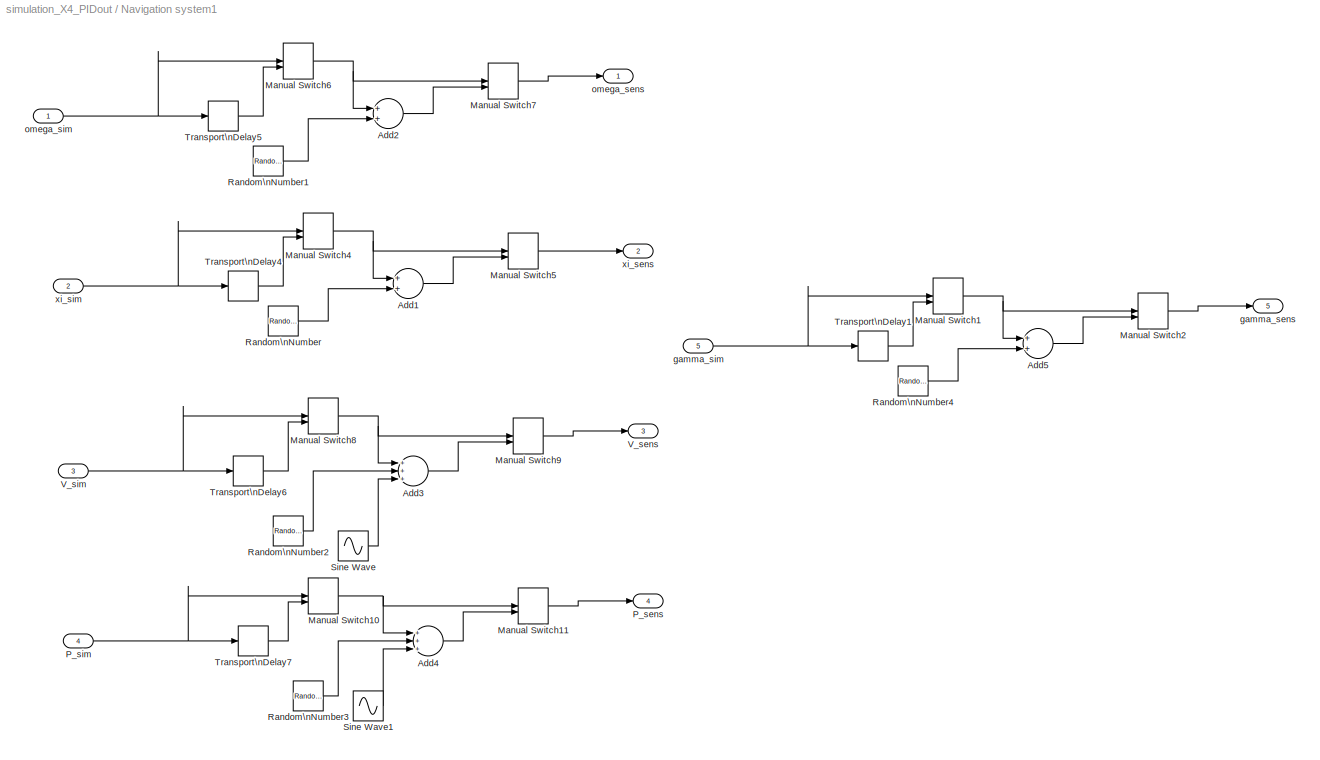
BLOCK [SubSystem] Navigation system1
  Ports = [5, 5]
  RequestExecContextInheritance = off
  SID = 204
  Variant = off
BLOCK [Sum] Navigation system1/Add1
  InputSameDT = off
  OutDataTypeStr = Inherit: Inherit via internal rule
  Ports = [2, 1]
  SID = 210
  SaturateOnIntegerOverflow = off
BLOCK [Sum] Navigation system1/Add2
  InputSameDT = off
  OutDataTypeStr = Inherit: Inherit via internal rule
  Ports = [2, 1]
  SID = 211
  SaturateOnIntegerOverflow = off
BLOCK [Sum] Navigation system1/Add3
  InputSameDT = off
  Inputs = +++
  OutDataTypeStr = Inherit: Inherit via internal rule
  Ports = [3, 1]
  SID = 212
  SaturateOnIntegerOverflow = off
BLOCK [Sum] Navigation system1/Add4
  InputSameDT = off
  Inputs = +++
  OutDataTypeStr = Inherit: Inherit via internal rule
  Ports = [3, 1]
  SID = 213
  SaturateOnIntegerOverflow = off
BLOCK [Sum] Navigation system1/Add5
  InputSameDT = off
  OutDataTypeStr = Inherit: Inherit via internal rule
  Ports = [2, 1]
  SID = 214
  SaturateOnIntegerOverflow = off
BLOCK [ManualSwitch] Navigation system1/Manual Switch1
  SID = 215
BLOCK [ManualSwitch] Navigation system1/Manual Switch10
  SID = 216
BLOCK [ManualSwitch] Navigation system1/Manual Switch11
  SID = 217
BLOCK [ManualSwitch] Navigation system1/Manual Switch2
  SID = 218
BLOCK [ManualSwitch] Navigation system1/Manual Switch4
  SID = 219
BLOCK [ManualSwitch] Navigation system1/Manual Switch5
  SID = 220
BLOCK [ManualSwitch] Navigation system1/Manual Switch6
  SID = 221
BLOCK [ManualSwitch] Navigation system1/Manual Switch7
  SID = 222
BLOCK [ManualSwitch] Navigation system1/Manual Switch8
  SID = 223
BLOCK [ManualSwitch] Navigation system1/Manual Switch9
  SID = 224
BLOCK [Outport] Navigation system1/P_sens
  IconDisplay = Port number
  Port = 4
  SID = 238
BLOCK [Inport] Navigation system1/P_sim
  IconDisplay = Port number
  Port = 4
  SID = 208
BLOCK [RandomNumber] Navigation system1/Random\nNumber
  SID = 225
  SampleTime = 0
  Variance = 0.000025
BLOCK [RandomNumber] Navigation system1/Random\nNumber1
  SID = 226
  SampleTime = 0
  Variance = 0.001
BLOCK [RandomNumber] Navigation system1/Random\nNumber2
  SID = 227
  SampleTime = 0
  Variance = 0.001
BLOCK [RandomNumber] Navigation system1/Random\nNumber3
  SID = 228
  SampleTime = 0
  Variance = 0.001
BLOCK [RandomNumber] Navigation system1/Random\nNumber4
  SID = 229
  SampleTime = 0
  Variance = 0.000025
BLOCK [Sin] Navigation system1/Sine Wave
  Amplitude = 0.2
  Ports = [0, 1]
  SID = 858
  SampleTime = 0
BLOCK [Sin] Navigation system1/Sine Wave1
  Amplitude = 1.5
  Ports = [0, 1]
  SID = 860
  SampleTime = 0
BLOCK [TransportDelay] Navigation system1/Transport\nDelay1
  DelayTime = 0.02
  Ports = [1, 1]
  SID = 230
BLOCK [TransportDelay] Navigation system1/Transport\nDelay4
  DelayTime = 0.02
  Ports = [1, 1]
  SID = 231
BLOCK [TransportDelay] Navigation system1/Transport\nDelay5
  DelayTime = 0.02
  Ports = [1, 1]
  SID = 232
BLOCK [TransportDelay] Navigation system1/Transport\nDelay6
  DelayTime = 0.4
  Ports = [1, 1]
  SID = 233
BLOCK [TransportDelay] Navigation system1/Transport\nDelay7
  DelayTime = 0.4
  Ports = [1, 1]
  SID = 234
BLOCK [Outport] Navigation system1/V_sens
  IconDisplay = Port number
  Port = 3
  SID = 237
BLOCK [Inport] Navigation system1/V_sim
  IconDisplay = Port number
  Port = 3
  SID = 207
BLOCK [Outport] Navigation system1/gamma_sens
  IconDisplay = Port number
  Port = 5
  SID = 239
BLOCK [Inport] Navigation system1/gamma_sim
  IconDisplay = Port number
  Port = 5
  SID = 209
BLOCK [Outport] Navigation system1/omega_sens
  IconDisplay = Port number
  SID = 235
BLOCK [Inport] Navigation system1/omega_sim
  IconDisplay = Port number
  SID = 205
BLOCK [Outport] Navigation system1/xi_sens
  IconDisplay = Port number
  Port = 2
  SID = 236
BLOCK [Inport] Navigation system1/xi_sim
  IconDisplay = Port number
  Port = 2
  SID = 206
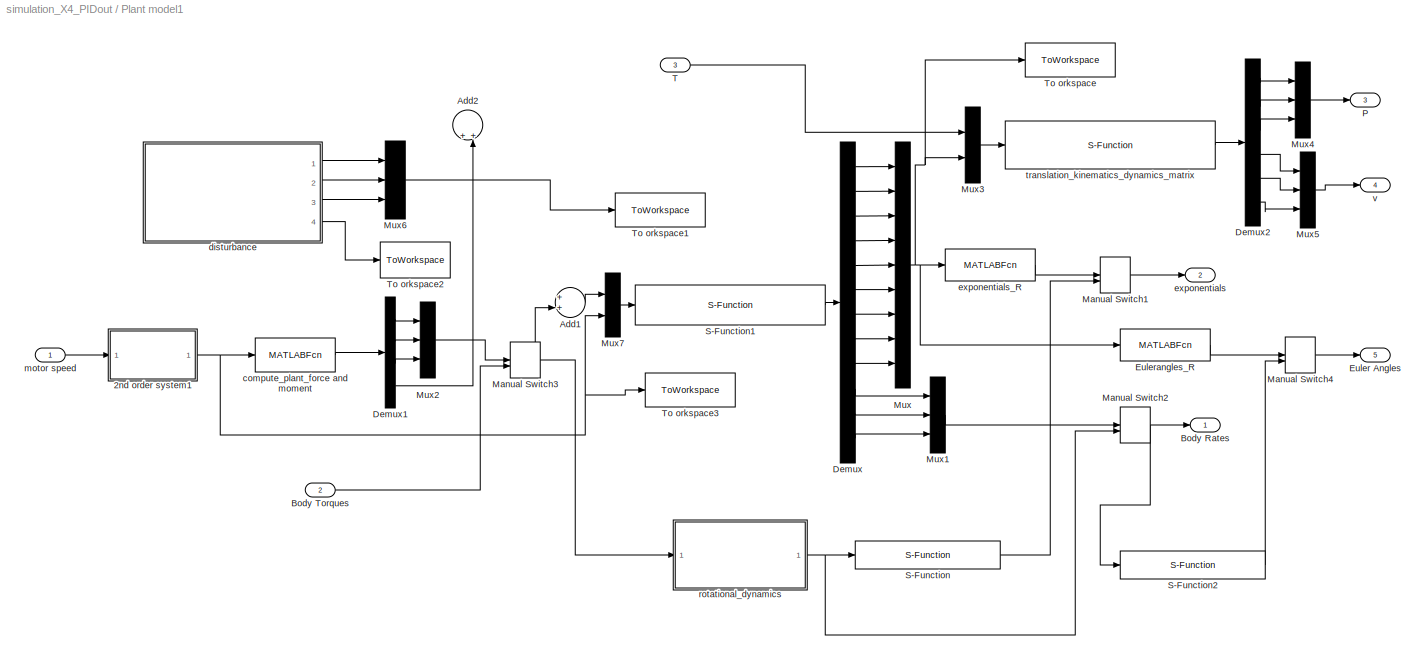
BLOCK [SubSystem] Plant model1
  Ports = [3, 5]
  RequestExecContextInheritance = off
  SID = 240
  Variant = off
BLOCK [SubSystem] Plant model1/2nd order system1
  Ports = [1, 1]
  RequestExecContextInheritance = off
  SID = 243
  Variant = off
BLOCK [SubSystem] Plant model1/2nd order system1/2order
  Ports = [1, 1]
  RequestExecContextInheritance = off
  SID = 245
  Variant = off
BLOCK [Gain] Plant model1/2nd order system1/2order/-Gain1
  Gain = omega_n_m^2
  OutDataTypeStr = Inherit: Inherit via internal rule
  ParamDataTypeStr = Inherit: Inherit via internal rule
  SID = 247
  SaturateOnIntegerOverflow = off
BLOCK [Gain] Plant model1/2nd order system1/2order/Gain1
  Gain = omega_n_m^2
  OutDataTypeStr = Inherit: Inherit via internal rule
  ParamDataTypeStr = Inherit: Inherit via internal rule
  SID = 248
  SaturateOnIntegerOverflow = off
BLOCK [Gain] Plant model1/2nd order system1/2order/Gain2
  Gain = 2*xi_m*omega_n_m
  OutDataTypeStr = Inherit: Inherit via internal rule
  ParamDataTypeStr = Inherit: Inherit via internal rule
  SID = 249
  SaturateOnIntegerOverflow = off
BLOCK [Inport] Plant model1/2nd order system1/2order/In1
  IconDisplay = Port number
  SID = 246
BLOCK [Integrator] Plant model1/2nd order system1/2order/Integrator
  Ports = [1, 1]
  SID = 250
BLOCK [Integrator] Plant model1/2nd order system1/2order/Integrator1
  InitialCondition = 4000
  Ports = [1, 1]
  SID = 251
BLOCK [Outport] Plant model1/2nd order system1/2order/Out1
  IconDisplay = Port number
  SID = 255
BLOCK [Scope] Plant model1/2nd order system1/2order/Scope
  NumInputPorts = 1
  Ports = [1]
  SID = 252
BLOCK [Scope] Plant model1/2nd order system1/2order/Scope1
  NumInputPorts = 1
  Ports = [1]
  SID = 253
BLOCK [Sum] Plant model1/2nd order system1/2order/Sum
  IconShape = round
  InputSameDT = off
  Inputs = |+--
  OutDataTypeStr = Inherit: Inherit via internal rule
  Ports = [3, 1]
  SID = 254
  SaturateOnIntegerOverflow = off
BLOCK [SubSystem] Plant model1/2nd order system1/2order1
  Ports = [1, 1]
  RequestExecContextInheritance = off
  SID = 905
  Variant = off
BLOCK [Gain] Plant model1/2nd order system1/2order1/-Gain1
  Gain = omega_n_m^2
  OutDataTypeStr = Inherit: Inherit via internal rule
  ParamDataTypeStr = Inherit: Inherit via internal rule
  SID = 907
  SaturateOnIntegerOverflow = off
BLOCK [Gain] Plant model1/2nd order system1/2order1/Gain1
  Gain = omega_n_m^2
  OutDataTypeStr = Inherit: Inherit via internal rule
  ParamDataTypeStr = Inherit: Inherit via internal rule
  SID = 908
  SaturateOnIntegerOverflow = off
BLOCK [Gain] Plant model1/2nd order system1/2order1/Gain2
  Gain = 2*xi_m*omega_n_m
  OutDataTypeStr = Inherit: Inherit via internal rule
  ParamDataTypeStr = Inherit: Inherit via internal rule
  SID = 909
  SaturateOnIntegerOverflow = off
BLOCK [Inport] Plant model1/2nd order system1/2order1/In1
  IconDisplay = Port number
  SID = 906
BLOCK [Integrator] Plant model1/2nd order system1/2order1/Integrator
  Ports = [1, 1]
  SID = 910
BLOCK [Integrator] Plant model1/2nd order system1/2order1/Integrator1
  InitialCondition = 4000
  Ports = [1, 1]
  SID = 911
BLOCK [Outport] Plant model1/2nd order system1/2order1/Out1
  IconDisplay = Port number
  SID = 915
BLOCK [Scope] Plant model1/2nd order system1/2order1/Scope
  NumInputPorts = 1
  Ports = [1]
  SID = 912
BLOCK [Scope] Plant model1/2nd order system1/2order1/Scope1
  NumInputPorts = 1
  Ports = [1]
  SID = 913
BLOCK [Sum] Plant model1/2nd order system1/2order1/Sum
  IconShape = round
  InputSameDT = off
  Inputs = |+--
  OutDataTypeStr = Inherit: Inherit via internal rule
  Ports = [3, 1]
  SID = 914
  SaturateOnIntegerOverflow = off
BLOCK [SubSystem] Plant model1/2nd order system1/2order2
  Ports = [1, 1]
  RequestExecContextInheritance = off
  SID = 916
  Variant = off
BLOCK [Gain] Plant model1/2nd order system1/2order2/-Gain1
  Gain = omega_n_m^2
  OutDataTypeStr = Inherit: Inherit via internal rule
  ParamDataTypeStr = Inherit: Inherit via internal rule
  SID = 918
  SaturateOnIntegerOverflow = off
BLOCK [Gain] Plant model1/2nd order system1/2order2/Gain1
  Gain = omega_n_m^2
  OutDataTypeStr = Inherit: Inherit via internal rule
  ParamDataTypeStr = Inherit: Inherit via internal rule
  SID = 919
  SaturateOnIntegerOverflow = off
BLOCK [Gain] Plant model1/2nd order system1/2order2/Gain2
  Gain = 2*xi_m*omega_n_m
  OutDataTypeStr = Inherit: Inherit via internal rule
  ParamDataTypeStr = Inherit: Inherit via internal rule
  SID = 920
  SaturateOnIntegerOverflow = off
BLOCK [Inport] Plant model1/2nd order system1/2order2/In1
  IconDisplay = Port number
  SID = 917
BLOCK [Integrator] Plant model1/2nd order system1/2order2/Integrator
  Ports = [1, 1]
  SID = 921
BLOCK [Integrator] Plant model1/2nd order system1/2order2/Integrator1
  InitialCondition = 4000
  Ports = [1, 1]
  SID = 922
BLOCK [Outport] Plant model1/2nd order system1/2order2/Out1
  IconDisplay = Port number
  SID = 926
BLOCK [Scope] Plant model1/2nd order system1/2order2/Scope
  NumInputPorts = 1
  Ports = [1]
  SID = 923
BLOCK [Scope] Plant model1/2nd order system1/2order2/Scope1
  NumInputPorts = 1
  Ports = [1]
  SID = 924
BLOCK [Sum] Plant model1/2nd order system1/2order2/Sum
  IconShape = round
  InputSameDT = off
  Inputs = |+--
  OutDataTypeStr = Inherit: Inherit via internal rule
  Ports = [3, 1]
  SID = 925
  SaturateOnIntegerOverflow = off
BLOCK [SubSystem] Plant model1/2nd order system1/2order3
  Ports = [1, 1]
  RequestExecContextInheritance = off
  SID = 927
  Variant = off
BLOCK [Gain] Plant model1/2nd order system1/2order3/-Gain1
  Gain = omega_n_m^2
  OutDataTypeStr = Inherit: Inherit via internal rule
  ParamDataTypeStr = Inherit: Inherit via internal rule
  SID = 929
  SaturateOnIntegerOverflow = off
BLOCK [Gain] Plant model1/2nd order system1/2order3/Gain1
  Gain = omega_n_m^2
  OutDataTypeStr = Inherit: Inherit via internal rule
  ParamDataTypeStr = Inherit: Inherit via internal rule
  SID = 930
  SaturateOnIntegerOverflow = off
BLOCK [Gain] Plant model1/2nd order system1/2order3/Gain2
  Gain = 2*xi_m*omega_n_m
  OutDataTypeStr = Inherit: Inherit via internal rule
  ParamDataTypeStr = Inherit: Inherit via internal rule
  SID = 931
  SaturateOnIntegerOverflow = off
BLOCK [Inport] Plant model1/2nd order system1/2order3/In1
  IconDisplay = Port number
  SID = 928
BLOCK [Integrator] Plant model1/2nd order system1/2order3/Integrator
  Ports = [1, 1]
  SID = 932
BLOCK [Integrator] Plant model1/2nd order system1/2order3/Integrator1
  InitialCondition = 4000
  Ports = [1, 1]
  SID = 933
BLOCK [Outport] Plant model1/2nd order system1/2order3/Out1
  IconDisplay = Port number
  SID = 937
BLOCK [Scope] Plant model1/2nd order system1/2order3/Scope
  NumInputPorts = 1
  Ports = [1]
  SID = 934
BLOCK [Scope] Plant model1/2nd order system1/2order3/Scope1
  NumInputPorts = 1
  Ports = [1]
  SID = 935
BLOCK [Sum] Plant model1/2nd order system1/2order3/Sum
  IconShape = round
  InputSameDT = off
  Inputs = |+--
  OutDataTypeStr = Inherit: Inherit via internal rule
  Ports = [3, 1]
  SID = 936
  SaturateOnIntegerOverflow = off
BLOCK [Demux] Plant model1/2nd order system1/Demux
  DisplayOption = bar
  Ports = [1, 4]
  SID = 289
BLOCK [ManualSwitch] Plant model1/2nd order system1/Manual Switch3
  SID = 594
BLOCK [Mux] Plant model1/2nd order system1/Mux
  DisplayOption = bar
  Ports = [4, 1]
  SID = 290
BLOCK [Outport] Plant model1/2nd order system1/O_actu
  IconDisplay = Port number
  SID = 291
BLOCK [Inport] Plant model1/2nd order system1/o_com
  IconDisplay = Port number
  SID = 244
BLOCK [Sum] Plant model1/Add1
  InputSameDT = off
  OutDataTypeStr = Inherit: Inherit via internal rule
  Ports = [2, 1]
  SID = 292
  SaturateOnIntegerOverflow = off
BLOCK [Sum] Plant model1/Add2
  InputSameDT = off
  OutDataTypeStr = Inherit: Inherit via internal rule
  Ports = [2, 1]
  SID = 293
  SaturateOnIntegerOverflow = off
BLOCK [Outport] Plant model1/Body Rates
  IconDisplay = Port number
  SID = 383
BLOCK [Inport] Plant model1/Body Torques
  IconDisplay = Port number
  Port = 2
  SID = 242
BLOCK [Demux] Plant model1/Demux
  DisplayOption = bar
  Outputs = 12
  Ports = [1, 12]
  SID = 294
BLOCK [Demux] Plant model1/Demux1
  DisplayOption = bar
  Ports = [1, 4]
  SID = 295
BLOCK [Demux] Plant model1/Demux2
  DisplayOption = bar
  Outputs = 6
  Ports = [1, 6]
  SID = 296
BLOCK [Outport] Plant model1/Euler Angles
  IconDisplay = Port number
  Port = 5
  SID = 387
BLOCK [MATLABFcn] Plant model1/Eulerangles_R
  MATLABFcn = Eulerangles_R
  OutputDimensions = 3
  Ports = [1, 1]
  SID = 297
BLOCK [ManualSwitch] Plant model1/Manual Switch1
  SID = 298
BLOCK [ManualSwitch] Plant model1/Manual Switch2
  SID = 299
BLOCK [ManualSwitch] Plant model1/Manual Switch3
  CurrentSetting = 0
  SID = 300
BLOCK [ManualSwitch] Plant model1/Manual Switch4
  SID = 301
BLOCK [Mux] Plant model1/Mux
  DisplayOption = bar
  Inputs = 9
  Ports = [9, 1]
  SID = 302
BLOCK [Mux] Plant model1/Mux1
  DisplayOption = bar
  Inputs = 3
  Ports = [3, 1]
  SID = 303
BLOCK [Mux] Plant model1/Mux2
  DisplayOption = bar
  Inputs = 3
  Ports = [3, 1]
  SID = 304
BLOCK [Mux] Plant model1/Mux3
  DisplayOption = bar
  Inputs = 2
  Ports = [2, 1]
  SID = 305
BLOCK [Mux] Plant model1/Mux4
  DisplayOption = bar
  Inputs = 3
  Ports = [3, 1]
  SID = 306
BLOCK [Mux] Plant model1/Mux5
  DisplayOption = bar
  Inputs = 3
  Ports = [3, 1]
  SID = 307
BLOCK [Mux] Plant model1/Mux6
  DisplayOption = bar
  Inputs = 3
  Ports = [3, 1]
  SID = 308
BLOCK [Mux] Plant model1/Mux7
  DisplayOption = bar
  Inputs = 2
  Ports = [2, 1]
  SID = 309
BLOCK [Outport] Plant model1/P
  IconDisplay = Port number
  Port = 3
  SID = 385
BLOCK [S-Function] Plant model1/S-Function
  EnableBusSupport = off
  FunctionName = rotational_kinematics_SO3
  Ports = [1, 1]
  SFcnIsStateOwnerBlock = off
  SFunctionDeploymentMode = off
  SID = 310
BLOCK [S-Function] Plant model1/S-Function1
  EnableBusSupport = off
  FunctionName = attitude_kinematics_dynamics_matrix
  Ports = [1, 1]
  SFcnIsStateOwnerBlock = off
  SFunctionDeploymentMode = off
  SID = 311
BLOCK [S-Function] Plant model1/S-Function2
  EnableBusSupport = off
  FunctionName = rotational_kinematics
  Ports = [1, 1]
  SFcnIsStateOwnerBlock = off
  SFunctionDeploymentMode = off
  SID = 312
BLOCK [Inport] Plant model1/T
  IconDisplay = Port number
  Port = 3
  SID = 943
BLOCK [ToWorkspace] Plant model1/To orkspace
  MaxDataPoints = inf
  Ports = [1]
  SID = 313
  SampleTime = -1
  VariableName = rotation_matrix
BLOCK [ToWorkspace] Plant model1/To orkspace1
  MaxDataPoints = inf
  Ports = [1]
  SID = 314
  SampleTime = -1
  VariableName = dis_torque
BLOCK [ToWorkspace] Plant model1/To orkspace2
  MaxDataPoints = inf
  Ports = [1]
  SID = 315
  SampleTime = -1
  VariableName = dis_thrust
BLOCK [ToWorkspace] Plant model1/To orkspace3
  MaxDataPoints = inf
  Ports = [1]
  SID = 316
  SampleTime = -1
  VariableName = o_sim
BLOCK [MATLABFcn] Plant model1/compute_plant_force and moment
  MATLABFcn = compute_plant_motor_body
  Ports = [1, 1]
  SID = 317
BLOCK [SubSystem] Plant model1/disturbance
  Ports = [0, 4]
  RequestExecContextInheritance = off
  SID = 318
  Variant = off
BLOCK [Sum] Plant model1/disturbance/Add1
  InputSameDT = off
  OutDataTypeStr = Inherit: Inherit via internal rule
  Ports = [2, 1]
  SID = 319
  SaturateOnIntegerOverflow = off
BLOCK [Sum] Plant model1/disturbance/Add2
  InputSameDT = off
  OutDataTypeStr = Inherit: Inherit via internal rule
  Ports = [2, 1]
  SID = 320
  SaturateOnIntegerOverflow = off
BLOCK [Sum] Plant model1/disturbance/Add3
  InputSameDT = off
  OutDataTypeStr = Inherit: Inherit via internal rule
  Ports = [2, 1]
  SID = 321
  SaturateOnIntegerOverflow = off
BLOCK [Sum] Plant model1/disturbance/Add4
  InputSameDT = off
  OutDataTypeStr = Inherit: Inherit via internal rule
  Ports = [2, 1]
  SID = 322
  SaturateOnIntegerOverflow = off
BLOCK [Scope] Plant model1/disturbance/Scope
  NumInputPorts = 1
  Ports = [1]
  SID = 323
  ScopeSpecificationString = C++SS(StrPVP('Location','[188, 390, 512, 629]'),StrPVP('Open','off'),MxPVP('AxesTitles',24,'struct(''axes1'',''%<SignalLabel>'')'),StrPVP('ShowLegends','off'),StrPVP('SaveName','ScopeData15'),StrPVP('DataFormat','StructureWithTime'),StrPVP('BlockParamSampleTime','0'),StrPVP('LimitDataPoints','on'),StrPVP('Decimation','1'),StrPVP('BlockParamSampleInput','off'))
BLOCK [Scope] Plant model1/disturbance/Scope1
  NumInputPorts = 1
  Ports = [1]
  SID = 324
  ScopeSpecificationString = C++SS(StrPVP('Location','[188, 390, 512, 629]'),StrPVP('Open','off'),MxPVP('AxesTitles',24,'struct(''axes1'',''%<SignalLabel>'')'),MxPVP('ScopeGraphics',28,'struct(''FigureColor'',''[0.5 0.5 0.5]'',''AxesColor'',''[0 0 0]'',''AxesTickColor'',''[1 1 1]'',''LineColors'',''[1 1 0;1 0 1;0 1 1;1 0 0;0 1 0;0 0 1]'',''LineStyles'',''-|-|-|-|-|-'',''LineWidths'',''[0.5 0.5 0.5 0.5 0.5 0.5]'',''MarkerStyle...<+272ch>  <repeated x3 — deduplicated; at blocks: Scope1, Scope2>
BLOCK [Scope] Plant model1/disturbance/Scope2
  NumInputPorts = 1
  Ports = [1]
  SID = 325
  ScopeSpecificationString = C++SS(StrPVP('Location','[188, 390, 512, 629]'),StrPVP('Open','off'),MxPVP('AxesTitles',24,'struct(''axes1'',''%<SignalLabel>'')'),StrPVP('ShowLegends','off'),StrPVP('SaveName','ScopeData17'),StrPVP('DataFormat','StructureWithTime'),StrPVP('BlockParamSampleTime','0'),StrPVP('LimitDataPoints','on'),StrPVP('Decimation','1'),StrPVP('BlockParamSampleInput','off'))
BLOCK [Scope] Plant model1/disturbance/Scope3
  NumInputPorts = 1
  Ports = [1]
  SID = 326
  ScopeSpecificationString = C++SS(StrPVP('Location','[188, 390, 512, 629]'),StrPVP('Open','off'),MxPVP('AxesTitles',24,'struct(''axes1'',''%<SignalLabel>'')'),StrPVP('ShowLegends','off'),StrPVP('SaveName','ScopeData18'),StrPVP('DataFormat','StructureWithTime'),StrPVP('BlockParamSampleTime','0'),StrPVP('LimitDataPoints','on'),StrPVP('Decimation','1'),StrPVP('BlockParamSampleInput','off'))
BLOCK [Step] Plant model1/disturbance/Step
  After = 0.3
  SID = 327
  SampleTime = 0
  Time = 5
BLOCK [Step] Plant model1/disturbance/Step1
  After = -0.3
  SID = 328
  SampleTime = 0
  Time = 6
BLOCK [Step] Plant model1/disturbance/Step2
  After = 0.3
  SID = 329
  SampleTime = 0
  Time = 9
BLOCK [Step] Plant model1/disturbance/Step3
  After = -0.3
  SID = 330
  SampleTime = 0
  Time = 10
BLOCK [Step] Plant model1/disturbance/Step4
  After = 0.1
  SID = 331
  SampleTime = 0
  Time = 13
BLOCK [Step] Plant model1/disturbance/Step5
  After = -0.1
  SID = 332
  SampleTime = 0
  Time = 14
BLOCK [Step] Plant model1/disturbance/Step6
  After = -10
  SID = 333
  SampleTime = 0
  Time = 16
BLOCK [Step] Plant model1/disturbance/Step7
  After = 10
  SID = 334
  SampleTime = 0
  Time = 17
BLOCK [Outport] Plant model1/disturbance/phi_disturbance
  IconDisplay = Port number
  SID = 336
BLOCK [Outport] Plant model1/disturbance/psi disturbance
  IconDisplay = Port number
  Port = 3
  SID = 338
BLOCK [Outport] Plant model1/disturbance/theta_disturbance
  IconDisplay = Port number
  Port = 2
  SID = 337
BLOCK [Outport] Plant model1/disturbance/z disturbance
  IconDisplay = Port number
  Port = 4
  SID = 339
BLOCK [Sin] Plant model1/disturbance/z1
  Amplitude = 0.1
  Frequency = 3*pi
  Ports = [0, 1]
  SID = 335
  SampleTime = 0
BLOCK [Outport] Plant model1/exponentials
  IconDisplay = Port number
  Port = 2
  SID = 384
BLOCK [MATLABFcn] Plant model1/exponentials_R
  MATLABFcn = exponentials_R
  OutputDimensions = 3
  Ports = [1, 1]
  SID = 340
BLOCK [Inport] Plant model1/motor speed
  IconDisplay = Port number
  SID = 241
BLOCK [SubSystem] Plant model1/rotational_dynamics
  Ports = [1, 1]
  RequestExecContextInheritance = off
  SID = 341
  Variant = off
BLOCK [Constant] Plant model1/rotational_dynamics/Constant
  SID = 343
  Value = 0.010914387
BLOCK [Constant] Plant model1/rotational_dynamics/Constant1
  SID = 344
  Value = 0.011174571
BLOCK [Constant] Plant model1/rotational_dynamics/Constant2
  SID = 345
  Value = 0.020874735
BLOCK [Constant] Plant model1/rotational_dynamics/Constant3
  SID = 346
  Value = 0
BLOCK [Mux] Plant model1/rotational_dynamics/Mux
  DisplayOption = bar
  Inputs = 13
  Ports = [13, 1]
  SID = 347
BLOCK [Inport] Plant model1/rotational_dynamics/Mx//My//Mz
  IconDisplay = Port number
  SID = 342
BLOCK [S-Function] Plant model1/rotational_dynamics/S-Function
  EnableBusSupport = off
  FunctionName = rotational_dynamics
  Ports = [1, 1]
  SFcnIsStateOwnerBlock = off
  SFunctionDeploymentMode = off
  SID = 348
BLOCK [SubSystem] Plant model1/rotational_dynamics/Subsystem1
  Ports = [4, 12]
  RequestExecContextInheritance = off
  SID = 349
  Variant = off
BLOCK [Fcn] Plant model1/rotational_dynamics/Subsystem1/Fcn
  Expr = (u(1)*(u(2)-u(3)-u(4)))*u(5)
  SID = 354
BLOCK [Fcn] Plant model1/rotational_dynamics/Subsystem1/Fcn1
  Expr = 1/(u(1)^2-u(4)*u(3))
  SID = 355
BLOCK [Fcn] Plant model1/rotational_dynamics/Subsystem1/Fcn2
  Expr = (u(3)^2-u(2)*u(3)-u(4)^2)*u(5)
  SID = 356
BLOCK [Fcn] Plant model1/rotational_dynamics/Subsystem1/Fcn3
  Expr = -u(1)/u(2)
  SID = 357
BLOCK [Fcn] Plant model1/rotational_dynamics/Subsystem1/Fcn4
  Expr = (u(3)-u(4))/u(2)
  SID = 358
BLOCK [Fcn] Plant model1/rotational_dynamics/Subsystem1/Fcn5
  Expr = (u(4)*u(2)-u(1)^2-u(4)^2)*u(5)
  SID = 359
BLOCK [Fcn] Plant model1/rotational_dynamics/Subsystem1/Fcn6
  Expr = -u(3)*u(5)
  SID = 360
BLOCK [Fcn] Plant model1/rotational_dynamics/Subsystem1/Fcn7
  Expr = -u(1)*u(5)
  SID = 361
BLOCK [Fcn] Plant model1/rotational_dynamics/Subsystem1/Fcn8
  Expr = 1/u(2)
  SID = 362
BLOCK [Fcn] Plant model1/rotational_dynamics/Subsystem1/Fcn9
  Expr = -u(4)*u(5)
  SID = 363
BLOCK [Gain] Plant model1/rotational_dynamics/Subsystem1/Gain
  Gain = -1
  OutDataTypeStr = Inherit: Inherit via internal rule
  ParamDataTypeStr = Inherit: Inherit via internal rule
  SID = 364
  SaturateOnIntegerOverflow = off
BLOCK [Gain] Plant model1/rotational_dynamics/Subsystem1/Gain1
  Gain = -1
  OutDataTypeStr = Inherit: Inherit via internal rule
  ParamDataTypeStr = Inherit: Inherit via internal rule
  SID = 365
  SaturateOnIntegerOverflow = off
BLOCK [Gain] Plant model1/rotational_dynamics/Subsystem1/Gain2
  OutDataTypeStr = Inherit: Inherit via internal rule
  ParamDataTypeStr = Inherit: Inherit via internal rule
  SID = 366
  SaturateOnIntegerOverflow = off
BLOCK [Outport] Plant model1/rotational_dynamics/Subsystem1/Ippq
  IconDisplay = Port number
  SID = 369
BLOCK [Outport] Plant model1/rotational_dynamics/Subsystem1/Ipqr
  IconDisplay = Port number
  Port = 2
  SID = 370
BLOCK [Outport] Plant model1/rotational_dynamics/Subsystem1/Iqpp
  IconDisplay = Port number
  Port = 3
  SID = 371
BLOCK [Outport] Plant model1/rotational_dynamics/Subsystem1/Iqpr
  IconDisplay = Port number
  Port = 4
  SID = 372
BLOCK [Outport] Plant model1/rotational_dynamics/Subsystem1/Iqrr
  IconDisplay = Port number
  Port = 11
  SID = 379
BLOCK [Outport] Plant model1/rotational_dynamics/Subsystem1/Irpq
  IconDisplay = Port number
  Port = 5
  SID = 373
BLOCK [Outport] Plant model1/rotational_dynamics/Subsystem1/Irqr
  IconDisplay = Port number
  Port = 10
  SID = 378
BLOCK [Inport] Plant model1/rotational_dynamics/Subsystem1/Ixx
  IconDisplay = Port number
  Port = 4
  SID = 353
BLOCK [Inport] Plant model1/rotational_dynamics/Subsystem1/Ixz
  IconDisplay = Port number
  SID = 350
BLOCK [Inport] Plant model1/rotational_dynamics/Subsystem1/Iyy
  IconDisplay = Port number
  Port = 2
  SID = 351
BLOCK [Inport] Plant model1/rotational_dynamics/Subsystem1/Izz
  IconDisplay = Port number
  Port = 3
  SID = 352
BLOCK [Mux] Plant model1/rotational_dynamics/Subsystem1/Mux
  DisplayOption = bar
  Ports = [4, 1]
  SID = 367
BLOCK [Mux] Plant model1/rotational_dynamics/Subsystem1/Mux1
  DisplayOption = bar
  Inputs = 5
  Ports = [5, 1]
  SID = 368
BLOCK [Outport] Plant model1/rotational_dynamics/Subsystem1/gpl
  IconDisplay = Port number
  Port = 6
  SID = 374
BLOCK [Outport] Plant model1/rotational_dynamics/Subsystem1/gpn
  IconDisplay = Port number
  Port = 7
  SID = 375
BLOCK [Outport] Plant model1/rotational_dynamics/Subsystem1/gqm
  IconDisplay = Port number
  Port = 8
  SID = 376
BLOCK [Outport] Plant model1/rotational_dynamics/Subsystem1/grl
  IconDisplay = Port number
  Port = 12
  SID = 380
BLOCK [Outport] Plant model1/rotational_dynamics/Subsystem1/grn
  IconDisplay = Port number
  Port = 9
  SID = 377
BLOCK [Outport] Plant model1/rotational_dynamics/p//q//r
  IconDisplay = Port number
  SID = 381
BLOCK [S-Function] Plant model1/translation_kinematics_dynamics_matrix
  EnableBusSupport = off
  FunctionName = translation_kinematics_dynamics_matrix
  Ports = [1, 1]
  SFcnIsStateOwnerBlock = off
  SFunctionDeploymentMode = off
  SID = 382
BLOCK [Outport] Plant model1/v
  IconDisplay = Port number
  Port = 4
  SID = 386
BLOCK [SubSystem] Position command
  Ports = [0, 1]
  RequestExecContextInheritance = off
  SID = 388
  Variant = off
BLOCK [Clock] Position command/Clock
  SID = 642
BLOCK [Clock] Position command/Clock1
  SID = 389
BLOCK [Clock] Position command/Clock2
  SID = 390
BLOCK [Demux] Position command/Demux1
  DisplayOption = bar
  Outputs = 3
  Ports = [1, 3]
  SID = 391
BLOCK [Fcn] Position command/Fcn
  Expr = u(1)*u(2)
  SID = 392
BLOCK [MATLABFcn] Position command/MATLAB Fcn1
  MATLABFcn = compute_com_position(u(1),u(2),u(3),u(4))
  Ports = [1, 1]
  SID = 393
BLOCK [ManualSwitch] Position command/Manual Switch1
  CurrentSetting = 0
  SID = 861
BLOCK [Mux] Position command/Mux1
  DisplayOption = bar
  Inputs = 2
  Ports = [2, 1]
  SID = 394
BLOCK [Mux] Position command/Mux2
  DisplayOption = bar
  Inputs = 3
  Ports = [3, 1]
  SID = 395
BLOCK [Mux] Position command/Mux3
  DisplayOption = bar
  Ports = [4, 1]
  SID = 396
BLOCK [Mux] Position command/Mux4
  DisplayOption = bar
  Inputs = 3
  Ports = [3, 1]
  SID = 397
BLOCK [Mux] Position command/Mux5
  DisplayOption = bar
  Inputs = 3
  Ports = [3, 1]
  SID = 398
BLOCK [Outport] Position command/P_com
  IconDisplay = Port number
  SID = 414
BLOCK [Scope] Position command/Scope1
  NumInputPorts = 1
  Ports = [1]
  SID = 399
  ScopeSpecificationString = C++SS(StrPVP('Location','[188, 390, 512, 629]'),StrPVP('Open','off'),MxPVP('AxesTitles',24,'struct(''axes1'',''%<SignalLabel>'')'),StrPVP('ShowLegends','off'),StrPVP('SaveName','ScopeData12'),StrPVP('DataFormat','StructureWithTime'),StrPVP('BlockParamSampleTime','0'),StrPVP('LimitDataPoints','on'),StrPVP('Decimation','1'),StrPVP('BlockParamSampleInput','off'))
BLOCK [Scope] Position command/Scope2
  NumInputPorts = 1
  Ports = [1]
  SID = 400
BLOCK [ToWorkspace] Position command/To orkspace
  MaxDataPoints = inf
  Ports = [1]
  SID = 644
  SampleTime = -1
  VariableName = t
BLOCK [Constant] Position command/h_end1
  SID = 401
  Value = 5
BLOCK [TransferFcn] Position command/phi Pseudo-differentiator
  Denominator = [1 14.14 2]
  Numerator = [2 0]
  SID = 402
BLOCK [TransferFcn] Position command/phi Pseudo-differentiator1
  Denominator = [1 14.14 2]
  Numerator = [2 0]
  SID = 403
BLOCK [TransferFcn] Position command/phi Pseudo-differentiator2
  Denominator = [1 14.14 2]
  Numerator = [2 0]
  SID = 404
BLOCK [Constant] Position command/v_x
  SID = 406
  Value = 5
BLOCK [Constant] Position command/x_end1
  SID = 407
  Value = -10
BLOCK [Constant] Position command/y
  SID = 408
  Value = 0
BLOCK [Constant] Position command/y_end1
  SID = 409
  Value = 0
BLOCK [Constant] Position command/y_end2
  SID = 410
  Value = 0
BLOCK [Constant] Position command/y_end3
  SID = 411
  Value = 0
BLOCK [Constant] Position command/y_end4
  SID = 412
  Value = -20
BLOCK [Sin] Position command/z
  Frequency = 0.5
  Ports = [0, 1]
  SID = 413
  SampleTime = 0
BLOCK [SubSystem] Position command1
  Ports = [0, 1]
  RequestExecContextInheritance = off
  SID = 811
  Variant = off
BLOCK [Sum] Position command1/Add3
  InputSameDT = off
  OutDataTypeStr = Inherit: Inherit via internal rule
  Ports = [2, 1]
  SID = 862
  SaturateOnIntegerOverflow = off
BLOCK [ManualSwitch] Position command1/Manual Switch1
  SID = 841
BLOCK [Mux] Position command1/Mux2
  DisplayOption = bar
  Inputs = 3
  Ports = [3, 1]
  SID = 819
BLOCK [Mux] Position command1/Mux5
  DisplayOption = bar
  Inputs = 3
  Ports = [3, 1]
  SID = 822
BLOCK [Scope] Position command1/Scope2
  NumInputPorts = 1
  Ports = [1]
  SID = 824
BLOCK [Step] Position command1/Step
  After = 0.1
  SID = 854
  SampleTime = 0
  Time = 2
BLOCK [Outport] Position command1/gamma_com
  IconDisplay = Port number
  SID = 838
BLOCK [Constant] Position command1/y
  SID = 832
  Value = 0
BLOCK [Constant] Position command1/y1
  SID = 863
  Value = 0
BLOCK [Constant] Position command1/y_end1
  SID = 833
  Value = 0
BLOCK [Constant] Position command1/y_end2
  SID = 834
  Value = 0
BLOCK [Constant] Position command1/y_end3
  SID = 835
BLOCK [Sin] Position command1/z
  Amplitude = 0.1
  Frequency = 0.5
  Ports = [0, 1]
  SID = 837
  SampleTime = 0
BLOCK [Scope] Scope1
  NumInputPorts = 1
  Ports = [1]
  SID = 417
  ScopeSpecificationString = C++SS(StrPVP('Location','[1, 48, 1367, 727]'),StrPVP('Open','off'),MxPVP('AxesTitles',24,'struct(''axes1'',''%<SignalLabel>'')'),MxPVP('ScopeGraphics',28,'struct(''FigureColor'',''[0.5 0.5 0.5]'',''AxesColor'',''[0 0 0]'',''AxesTickColor'',''[1 1 1]'',''LineColors'',''[1 1 0;1 0 1;0 1 1;1 0 0;0 1 0;0 0 1]'',''LineStyles'',''-|-|-|-|-|-'',''LineWidths'',''[0.5 0.5 0.5 0.5 0.5 0.5]'',''MarkerStyles'...<+270ch>
BLOCK [Scope] Scope7
  NumInputPorts = 1
  Ports = [1]
  SID = 418
  ScopeSpecificationString = C++SS(StrPVP('Location','[5, 52, 1445, 869]'),StrPVP('Open','off'),MxPVP('AxesTitles',24,'struct(''axes1'',''%<SignalLabel>'')'),StrPVP('ShowLegends','off'),StrPVP('SaveName','ScopeData13'),StrPVP('DataFormat','StructureWithTime'),StrPVP('BlockParamSampleTime','0'),StrPVP('LimitDataPoints','on'),StrPVP('Decimation','1'),StrPVP('BlockParamSampleInput','off'))
BLOCK [ToWorkspace] To Workspace1
  MaxDataPoints = inf
  Ports = [1]
  SID = 419
  SampleTime = -1
  VariableName = e_coordinate
BLOCK [ToWorkspace] To Workspace2
  MaxDataPoints = inf
  Ports = [1]
  SID = 420
  SampleTime = -1
  VariableName = attitude_err
BLOCK [SubSystem] altitude control
  Ports = [5, 4]
  RequestExecContextInheritance = off
  SID = 421
  Variant = off
BLOCK [Demux] altitude control/Demux1
  DisplayOption = bar
  Outputs = 3
  Ports = [1, 3]
  SID = 630
BLOCK [Demux] altitude control/Demux2
  DisplayOption = bar
  Outputs = 3
  Ports = [1, 3]
  SID = 843
BLOCK [Outport] altitude control/F_com
  IconDisplay = Port number
  Port = 2
  SID = 547
BLOCK [ManualSwitch] altitude control/Manual Switch1
  SID = 842
BLOCK [Mux] altitude control/Mux
  DisplayOption = bar
  Inputs = 3
  Ports = [3, 1]
  SID = 626
BLOCK [Mux] altitude control/Mux1
  DisplayOption = bar
  Inputs = 3
  Ports = [3, 1]
  SID = 844
BLOCK [Mux] altitude control/Mux2
  DisplayOption = bar
  Inputs = 2
  Ports = [2, 1]
  SID = 631
BLOCK [Inport] altitude control/P_com
  IconDisplay = Port number
  SID = 422
BLOCK [Inport] altitude control/P_sens
  IconDisplay = Port number
  Port = 3
  SID = 424
BLOCK [Scope] altitude control/Scope7
  NumInputPorts = 1
  Ports = [1]
  SID = 428
  ScopeSpecificationString = C++SS(StrPVP('Location','[1, 48, 1367, 727]'),StrPVP('Open','off'),MxPVP('AxesTitles',24,'struct(''axes1'',''%<SignalLabel>'')'),MxPVP('ScopeGraphics',28,'struct(''FigureColor'',''[0.5 0.5 0.5]'',''AxesColor'',''[0 0 0]'',''AxesTickColor'',''[1 1 1]'',''LineColors'',''[1 1 0;1 0 1;0 1 1;1 0 0;0 1 0;0 0 1]'',''LineStyles'',''-|-|-|-|-|-'',''LineWidths'',''[0.5 0.5 0.5 0.5 0.5 0.5]'',''MarkerStyles'...<+325ch>
BLOCK [Sum] altitude control/Sum1
  IconShape = round
  InputSameDT = off
  Inputs = |++
  OutDataTypeStr = Inherit: Inherit via internal rule
  Ports = [2, 1]
  SID = 429
  SaturateOnIntegerOverflow = off
BLOCK [Sum] altitude control/Sum8
  IconShape = round
  InputSameDT = off
  Inputs = |++
  OutDataTypeStr = Inherit: Inherit via internal rule
  Ports = [2, 1]
  SID = 432
  SaturateOnIntegerOverflow = off
BLOCK [Outport] altitude control/T
  IconDisplay = Port number
  Port = 3
  SID = 632
BLOCK [MATLABFcn] altitude control/commanded attitude & thrust
  MATLABFcn = R_com_T_com
  Ports = [1, 1]
  SID = 625
BLOCK [Inport] altitude control/gamma_sen
  IconDisplay = Port number
  Port = 5
  SID = 941
BLOCK [SubSystem] altitude control/innner loop controller
  Ports = [1, 1]
  RequestExecContextInheritance = off
  SID = 433
  Variant = off
BLOCK [Demux] altitude control/innner loop controller/Demux
  DisplayOption = bar
  Outputs = 3
  Ports = [1, 3]
  SID = 731
BLOCK [Outport] altitude control/innner loop controller/F_ctrl
  IconDisplay = Port number
  SID = 641
BLOCK [Mux] altitude control/innner loop controller/Mux
  DisplayOption = bar
  Inputs = 3
  Ports = [3, 1]
  SID = 732
BLOCK [Scope] altitude control/innner loop controller/Scope1
  NumInputPorts = 1
  Ports = [1]
  SID = 637
  ScopeSpecificationString = C++SS(StrPVP('Location','[1, 52, 1441, 869]'),StrPVP('Open','off'),MxPVP('AxesTitles',24,'struct(''axes1'',''%<SignalLabel>'')'),StrPVP('ShowLegends','off'),StrPVP('SaveName','ScopeData11'),StrPVP('DataFormat','StructureWithTime'),StrPVP('BlockParamSampleTime','0'),StrPVP('LimitDataPoints','on'),StrPVP('Decimation','1'),StrPVP('BlockParamSampleInput','off'))
BLOCK [SubSystem] altitude control/innner loop controller/Subsystem
  Ports = [1, 1]
  RequestExecContextInheritance = off
  SID = 708
  Variant = off
BLOCK [Gain] altitude control/innner loop controller/Subsystem/Gain1
  Gain = 2*2*4*omega_trans_x_out
  OutDataTypeStr = Inherit: Inherit via internal rule
  ParamDataTypeStr = Inherit: Inherit via internal rule
  SID = 634
  SaturateOnIntegerOverflow = off
BLOCK [Gain] altitude control/innner loop controller/Subsystem/Gain2
  Gain = (4*omega_trans_x_out)^2
  OutDataTypeStr = Inherit: Inherit via internal rule
  ParamDataTypeStr = Inherit: Inherit via internal rule
  SID = 635
  SaturateOnIntegerOverflow = off
BLOCK [Inport] altitude control/innner loop controller/Subsystem/In1
  IconDisplay = Port number
  SID = 710
BLOCK [Integrator] altitude control/innner loop controller/Subsystem/Integrator
  Ports = [1, 1]
  SID = 636
BLOCK [Outport] altitude control/innner loop controller/Subsystem/Out1
  IconDisplay = Port number
  SID = 709
BLOCK [Scope] altitude control/innner loop controller/Subsystem/Scope2
  NumInputPorts = 1
  Ports = [1]
  SID = 638
  ScopeSpecificationString = C++SS(StrPVP('Location','[1, 52, 1441, 869]'),StrPVP('Open','off'),MxPVP('AxesTitles',24,'struct(''axes1'',''%<SignalLabel>'')'),StrPVP('ShowLegends','off'),StrPVP('SaveName','ScopeData19'),StrPVP('DataFormat','StructureWithTime'),StrPVP('BlockParamSampleTime','0'),StrPVP('LimitDataPoints','on'),StrPVP('Decimation','1'),StrPVP('BlockParamSampleInput','off'))  <repeated x3 — deduplicated; at blocks: Scope2>
BLOCK [Scope] altitude control/innner loop controller/Subsystem/Scope3
  NumInputPorts = 1
  Ports = [1]
  SID = 441
BLOCK [Scope] altitude control/innner loop controller/Subsystem/Scope5
  NumInputPorts = 1
  Ports = [1]
  SID = 639
  ScopeSpecificationString = C++SS(StrPVP('Location','[5, 128, 1375, 851]'),StrPVP('Open','off'),MxPVP('AxesTitles',24,'struct(''axes1'',''%<SignalLabel>'')'),MxPVP('ScopeGraphics',28,'struct(''FigureColor'',''[0.5 0.5 0.5]'',''AxesColor'',''[0 0 0]'',''AxesTickColor'',''[1 1 1]'',''LineColors'',''[1 1 0;1 0 1;0 1 1;1 0 0;0 1 0;0 0 1]'',''LineStyles'',''-|-|-|-|-|-'',''LineWidths'',''[0.5 0.5 0.5 0.5 0.5 0.5]'',''MarkerStyles...<+271ch>  <repeated x3 — deduplicated; at blocks: Scope5>
BLOCK [Sum] altitude control/innner loop controller/Subsystem/Sum1
  IconShape = round
  InputSameDT = off
  Inputs = |++
  OutDataTypeStr = Inherit: Inherit via internal rule
  Ports = [2, 1]
  SID = 640
  SaturateOnIntegerOverflow = off
BLOCK [SubSystem] altitude control/innner loop controller/Subsystem1
  Ports = [1, 1]
  RequestExecContextInheritance = off
  SID = 711
  Variant = off
BLOCK [Gain] altitude control/innner loop controller/Subsystem1/Gain1
  Gain = 2*2*4*omega_trans_y_out
  OutDataTypeStr = Inherit: Inherit via internal rule
  ParamDataTypeStr = Inherit: Inherit via internal rule
  SID = 713
  SaturateOnIntegerOverflow = off
BLOCK [Gain] altitude control/innner loop controller/Subsystem1/Gain2
  Gain = (4*omega_trans_y_out)^2
  OutDataTypeStr = Inherit: Inherit via internal rule
  ParamDataTypeStr = Inherit: Inherit via internal rule
  SID = 714
  SaturateOnIntegerOverflow = off
BLOCK [Inport] altitude control/innner loop controller/Subsystem1/In1
  IconDisplay = Port number
  SID = 712
BLOCK [Integrator] altitude control/innner loop controller/Subsystem1/Integrator
  Ports = [1, 1]
  SID = 715
BLOCK [Outport] altitude control/innner loop controller/Subsystem1/Out1
  IconDisplay = Port number
  SID = 720
BLOCK [Scope] altitude control/innner loop controller/Subsystem1/Scope2
  NumInputPorts = 1
  Ports = [1]
  SID = 716
BLOCK [Scope] altitude control/innner loop controller/Subsystem1/Scope3
  NumInputPorts = 1
  Ports = [1]
  SID = 717
BLOCK [Scope] altitude control/innner loop controller/Subsystem1/Scope5
  NumInputPorts = 1
  Ports = [1]
  SID = 718
BLOCK [Sum] altitude control/innner loop controller/Subsystem1/Sum1
  IconShape = round
  InputSameDT = off
  Inputs = |++
  OutDataTypeStr = Inherit: Inherit via internal rule
  Ports = [2, 1]
  SID = 719
  SaturateOnIntegerOverflow = off
BLOCK [SubSystem] altitude control/innner loop controller/Subsystem2
  Ports = [1, 1]
  RequestExecContextInheritance = off
  SID = 721
  Variant = off
BLOCK [Gain] altitude control/innner loop controller/Subsystem2/Gain1
  Gain = 2*2.828*1.5*4*omega_trans_z_out
  OutDataTypeStr = Inherit: Inherit via internal rule
  ParamDataTypeStr = Inherit: Inherit via internal rule
  SID = 723
  SaturateOnIntegerOverflow = off
BLOCK [Gain] altitude control/innner loop controller/Subsystem2/Gain2
  Gain = (4*omega_trans_z_out)^2
  OutDataTypeStr = Inherit: Inherit via internal rule
  ParamDataTypeStr = Inherit: Inherit via internal rule
  SID = 724
  SaturateOnIntegerOverflow = off
BLOCK [Inport] altitude control/innner loop controller/Subsystem2/In1
  IconDisplay = Port number
  SID = 722
BLOCK [Integrator] altitude control/innner loop controller/Subsystem2/Integrator
  Ports = [1, 1]
  SID = 725
BLOCK [Outport] altitude control/innner loop controller/Subsystem2/Out1
  IconDisplay = Port number
  SID = 730
BLOCK [Scope] altitude control/innner loop controller/Subsystem2/Scope2
  NumInputPorts = 1
  Ports = [1]
  SID = 726
BLOCK [Scope] altitude control/innner loop controller/Subsystem2/Scope3
  NumInputPorts = 1
  Ports = [1]
  SID = 727
BLOCK [Scope] altitude control/innner loop controller/Subsystem2/Scope5
  NumInputPorts = 1
  Ports = [1]
  SID = 728
BLOCK [Sum] altitude control/innner loop controller/Subsystem2/Sum1
  IconShape = round
  InputSameDT = off
  Inputs = |++
  OutDataTypeStr = Inherit: Inherit via internal rule
  Ports = [2, 1]
  SID = 729
  SaturateOnIntegerOverflow = off
BLOCK [Inport] altitude control/innner loop controller/v_err
  IconDisplay = Port number
  SID = 436
BLOCK [SubSystem] altitude control/outer loop controller
  Ports = [4, 1]
  RequestExecContextInheritance = off
  SID = 444
  Variant = off
BLOCK [Demux] altitude control/outer loop controller/Demux1
  DisplayOption = bar
  Outputs = 3
  Ports = [1, 3]
  SID = 882
BLOCK [Demux] altitude control/outer loop controller/Demux2
  DisplayOption = bar
  Outputs = 3
  Ports = [1, 3]
  SID = 879
BLOCK [Outport] altitude control/outer loop controller/F_com
  IconDisplay = Port number
  SID = 455
BLOCK [Mux] altitude control/outer loop controller/Mux1
  DisplayOption = bar
  Inputs = 3
  Ports = [3, 1]
  SID = 881
BLOCK [Inport] altitude control/outer loop controller/P_com
  IconDisplay = Port number
  SID = 445
BLOCK [Inport] altitude control/outer loop controller/P_sen
  IconDisplay = Port number
  Port = 2
  SID = 446
BLOCK [Scope] altitude control/outer loop controller/Scope
  NumInputPorts = 1
  Ports = [1]
  SID = 450
  ScopeSpecificationString = C++SS(StrPVP('Location','[1, 52, 1441, 869]'),StrPVP('Open','off'),MxPVP('AxesTitles',24,'struct(''axes1'',''%<SignalLabel>'')'),StrPVP('ShowLegends','off'),StrPVP('SaveName','ScopeData5'),StrPVP('DataFormat','StructureWithTime'),StrPVP('BlockParamSampleTime','0'),StrPVP('LimitDataPoints','on'),StrPVP('Decimation','1'),StrPVP('BlockParamSampleInput','off'))
BLOCK [SubSystem] altitude control/outer loop controller/Subsystem
  Ports = [2, 1]
  RequestExecContextInheritance = off
  SID = 875
  Variant = off
BLOCK [Sum] altitude control/outer loop controller/Subsystem/Add3
  InputSameDT = off
  Inputs = +++
  OutDataTypeStr = Inherit: Inherit via internal rule
  Ports = [3, 1]
  SID = 872
  SaturateOnIntegerOverflow = off
BLOCK [Gain] altitude control/outer loop controller/Subsystem/Gain1
  Gain = XP
  OutDataTypeStr = Inherit: Inherit via internal rule
  ParamDataTypeStr = Inherit: Inherit via internal rule
  SID = 873
  SaturateOnIntegerOverflow = off
BLOCK [Gain] altitude control/outer loop controller/Subsystem/Gain2
  Gain = XI
  OutDataTypeStr = Inherit: Inherit via internal rule
  ParamDataTypeStr = Inherit: Inherit via internal rule
  SID = 869
  SaturateOnIntegerOverflow = off
BLOCK [Gain] altitude control/outer loop controller/Subsystem/Gain3
  Gain = XD
  OutDataTypeStr = Inherit: Inherit via internal rule
  ParamDataTypeStr = Inherit: Inherit via internal rule
  SID = 874
  SaturateOnIntegerOverflow = off
BLOCK [Inport] altitude control/outer loop controller/Subsystem/In1
  IconDisplay = Port number
  SID = 876
BLOCK [Inport] altitude control/outer loop controller/Subsystem/In2
  IconDisplay = Port number
  Port = 2
  SID = 878
BLOCK [Integrator] altitude control/outer loop controller/Subsystem/Integrator
  Ports = [1, 1]
  SID = 866
BLOCK [Outport] altitude control/outer loop controller/Subsystem/Out1
  IconDisplay = Port number
  SID = 877
BLOCK [SubSystem] altitude control/outer loop controller/Subsystem1
  Ports = [2, 1]
  RequestExecContextInheritance = off
  SID = 883
  Variant = off
BLOCK [Sum] altitude control/outer loop controller/Subsystem1/Add3
  InputSameDT = off
  Inputs = +++
  OutDataTypeStr = Inherit: Inherit via internal rule
  Ports = [3, 1]
  SID = 886
  SaturateOnIntegerOverflow = off
BLOCK [Gain] altitude control/outer loop controller/Subsystem1/Gain1
  Gain = YP
  OutDataTypeStr = Inherit: Inherit via internal rule
  ParamDataTypeStr = Inherit: Inherit via internal rule
  SID = 887
  SaturateOnIntegerOverflow = off
BLOCK [Gain] altitude control/outer loop controller/Subsystem1/Gain2
  Gain = YI
  OutDataTypeStr = Inherit: Inherit via internal rule
  ParamDataTypeStr = Inherit: Inherit via internal rule
  SID = 888
  SaturateOnIntegerOverflow = off
BLOCK [Gain] altitude control/outer loop controller/Subsystem1/Gain3
  Gain = YD
  OutDataTypeStr = Inherit: Inherit via internal rule
  ParamDataTypeStr = Inherit: Inherit via internal rule
  SID = 889
  SaturateOnIntegerOverflow = off
BLOCK [Inport] altitude control/outer loop controller/Subsystem1/In1
  IconDisplay = Port number
  SID = 884
BLOCK [Inport] altitude control/outer loop controller/Subsystem1/In2
  IconDisplay = Port number
  Port = 2
  SID = 885
BLOCK [Integrator] altitude control/outer loop controller/Subsystem1/Integrator
  Ports = [1, 1]
  SID = 890
BLOCK [Outport] altitude control/outer loop controller/Subsystem1/Out1
  IconDisplay = Port number
  SID = 891
BLOCK [SubSystem] altitude control/outer loop controller/Subsystem2
  Ports = [2, 1]
  RequestExecContextInheritance = off
  SID = 892
  Variant = off
BLOCK [Sum] altitude control/outer loop controller/Subsystem2/Add3
  InputSameDT = off
  Inputs = +++
  OutDataTypeStr = Inherit: Inherit via internal rule
  Ports = [3, 1]
  SID = 895
  SaturateOnIntegerOverflow = off
BLOCK [Gain] altitude control/outer loop controller/Subsystem2/Gain1
  Gain = ZP
  OutDataTypeStr = Inherit: Inherit via internal rule
  ParamDataTypeStr = Inherit: Inherit via internal rule
  SID = 896
  SaturateOnIntegerOverflow = off
BLOCK [Gain] altitude control/outer loop controller/Subsystem2/Gain2
  Gain = ZI
  OutDataTypeStr = Inherit: Inherit via internal rule
  ParamDataTypeStr = Inherit: Inherit via internal rule
  SID = 897
  SaturateOnIntegerOverflow = off
BLOCK [Gain] altitude control/outer loop controller/Subsystem2/Gain3
  Gain = ZD
  OutDataTypeStr = Inherit: Inherit via internal rule
  ParamDataTypeStr = Inherit: Inherit via internal rule
  SID = 898
  SaturateOnIntegerOverflow = off
BLOCK [Inport] altitude control/outer loop controller/Subsystem2/In1
  IconDisplay = Port number
  SID = 893
BLOCK [Inport] altitude control/outer loop controller/Subsystem2/In2
  IconDisplay = Port number
  Port = 2
  SID = 894
BLOCK [Integrator] altitude control/outer loop controller/Subsystem2/Integrator
  Ports = [1, 1]
  SID = 899
BLOCK [Outport] altitude control/outer loop controller/Subsystem2/Out1
  IconDisplay = Port number
  SID = 900
BLOCK [Sum] altitude control/outer loop controller/Sum1
  IconShape = round
  InputSameDT = off
  Inputs = |+-
  OutDataTypeStr = Inherit: Inherit via internal rule
  Ports = [2, 1]
  SID = 868
  SaturateOnIntegerOverflow = off
BLOCK [Sum] altitude control/outer loop controller/Sum3
  IconShape = round
  InputSameDT = off
  Inputs = |+-
  OutDataTypeStr = Inherit: Inherit via internal rule
  Ports = [2, 1]
  SID = 454
  SaturateOnIntegerOverflow = off
BLOCK [Inport] altitude control/outer loop controller/V_com
  IconDisplay = Port number
  Port = 3
  SID = 867
BLOCK [Inport] altitude control/outer loop controller/V_sen
  IconDisplay = Port number
  Port = 4
  SID = 865
BLOCK [Outport] altitude control/ph theta
  IconDisplay = Port number
  Port = 4
  SID = 627
BLOCK [Inport] altitude control/psi_com
  IconDisplay = Port number
  Port = 4
  SID = 425
BLOCK [Outport] altitude control/v_nom
  IconDisplay = Port number
  SID = 546
BLOCK [Inport] altitude control/v_sens
  IconDisplay = Port number
  Port = 2
  SID = 423
BLOCK [SubSystem] altitude control/vz pseduo inverter
  Ports = [1, 2]
  RequestExecContextInheritance = off
  SID = 456
  Variant = off
BLOCK [Outport] altitude control/vz pseduo inverter/F_nom
  IconDisplay = Port number
  Port = 2
  SID = 544
BLOCK [Inport] altitude control/vz pseduo inverter/P_nom
  IconDisplay = Port number
  SID = 457
BLOCK [Gain] altitude control/vz pseduo inverter/mass
  Gain = 0.975
  OutDataTypeStr = Inherit: Inherit via internal rule
  ParamDataTypeStr = Inherit: Inherit via internal rule
  SID = 633
  SaturateOnIntegerOverflow = off
BLOCK [SubSystem] altitude control/vz pseduo inverter/pseudodifferentiator
  Ports = [1, 1]
  RequestExecContextInheritance = off
  SID = 461
  Variant = off
BLOCK [Demux] altitude control/vz pseduo inverter/pseudodifferentiator/Demux
  DisplayOption = bar
  Outputs = 3
  Ports = [1, 3]
  SID = 463
BLOCK [Inport] altitude control/vz pseduo inverter/pseudodifferentiator/In1
  IconDisplay = Port number
  SID = 462
BLOCK [Mux] altitude control/vz pseduo inverter/pseudodifferentiator/Mux
  DisplayOption = bar
  Inputs = 3
  Ports = [3, 1]
  SID = 464
BLOCK [Outport] altitude control/vz pseduo inverter/pseudodifferentiator/Out1
  IconDisplay = Port number
  SID = 501
BLOCK [SubSystem] altitude control/vz pseduo inverter/pseudodifferentiator/pseudodifferentiator1
  Ports = [1, 1]
  RequestExecContextInheritance = off
  SID = 465
  Variant = off
BLOCK [Gain] altitude control/vz pseduo inverter/pseudodifferentiator/pseudodifferentiator1/-Gain1
  Gain = 25
  OutDataTypeStr = Inherit: Inherit via internal rule
  ParamDataTypeStr = Inherit: Inherit via internal rule
  SID = 467
  SaturateOnIntegerOverflow = off
BLOCK [Derivative] altitude control/vz pseduo inverter/pseudodifferentiator/pseudodifferentiator1/Derivative
  SID = 468
BLOCK [Gain] altitude control/vz pseduo inverter/pseudodifferentiator/pseudodifferentiator1/Gain1
  Gain = 25
  OutDataTypeStr = Inherit: Inherit via internal rule
  ParamDataTypeStr = Inherit: Inherit via internal rule
  SID = 469
  SaturateOnIntegerOverflow = off
BLOCK [Gain] altitude control/vz pseduo inverter/pseudodifferentiator/pseudodifferentiator1/Gain2
  Gain = 14.14
  OutDataTypeStr = Inherit: Inherit via internal rule
  ParamDataTypeStr = Inherit: Inherit via internal rule
  SID = 470
  SaturateOnIntegerOverflow = off
BLOCK [Inport] altitude control/vz pseduo inverter/pseudodifferentiator/pseudodifferentiator1/In1
  IconDisplay = Port number
  SID = 466
BLOCK [Integrator] altitude control/vz pseduo inverter/pseudodifferentiator/pseudodifferentiator1/Integrator
  Ports = [1, 1]
  SID = 471
BLOCK [Integrator] altitude control/vz pseduo inverter/pseudodifferentiator/pseudodifferentiator1/Integrator1
  Ports = [1, 1]
  SID = 472
BLOCK [Outport] altitude control/vz pseduo inverter/pseudodifferentiator/pseudodifferentiator1/Out1
  IconDisplay = Port number
  SID = 476
BLOCK [Scope] altitude control/vz pseduo inverter/pseudodifferentiator/pseudodifferentiator1/Scope
  NumInputPorts = 1
  Ports = [1]
  SID = 473
BLOCK [Scope] altitude control/vz pseduo inverter/pseudodifferentiator/pseudodifferentiator1/Scope1
  NumInputPorts = 1
  Ports = [1]
  SID = 474
BLOCK [Sum] altitude control/vz pseduo inverter/pseudodifferentiator/pseudodifferentiator1/Sum
  IconShape = round
  InputSameDT = off
  Inputs = |+--
  OutDataTypeStr = Inherit: Inherit via internal rule
  Ports = [3, 1]
  SID = 475
  SaturateOnIntegerOverflow = off
BLOCK [SubSystem] altitude control/vz pseduo inverter/pseudodifferentiator/pseudodifferentiator2
  Ports = [1, 1]
  RequestExecContextInheritance = off
  SID = 477
  Variant = off
BLOCK [Gain] altitude control/vz pseduo inverter/pseudodifferentiator/pseudodifferentiator2/-Gain1
  Gain = 25
  OutDataTypeStr = Inherit: Inherit via internal rule
  ParamDataTypeStr = Inherit: Inherit via internal rule
  SID = 479
  SaturateOnIntegerOverflow = off
BLOCK [Derivative] altitude control/vz pseduo inverter/pseudodifferentiator/pseudodifferentiator2/Derivative
  SID = 480
BLOCK [Gain] altitude control/vz pseduo inverter/pseudodifferentiator/pseudodifferentiator2/Gain1
  Gain = 25
  OutDataTypeStr = Inherit: Inherit via internal rule
  ParamDataTypeStr = Inherit: Inherit via internal rule
  SID = 481
  SaturateOnIntegerOverflow = off
BLOCK [Gain] altitude control/vz pseduo inverter/pseudodifferentiator/pseudodifferentiator2/Gain2
  Gain = 14.14
  OutDataTypeStr = Inherit: Inherit via internal rule
  ParamDataTypeStr = Inherit: Inherit via internal rule
  SID = 482
  SaturateOnIntegerOverflow = off
BLOCK [Inport] altitude control/vz pseduo inverter/pseudodifferentiator/pseudodifferentiator2/In1
  IconDisplay = Port number
  SID = 478
BLOCK [Integrator] altitude control/vz pseduo inverter/pseudodifferentiator/pseudodifferentiator2/Integrator
  Ports = [1, 1]
  SID = 483
BLOCK [Integrator] altitude control/vz pseduo inverter/pseudodifferentiator/pseudodifferentiator2/Integrator1
  Ports = [1, 1]
  SID = 484
BLOCK [Outport] altitude control/vz pseduo inverter/pseudodifferentiator/pseudodifferentiator2/Out1
  IconDisplay = Port number
  SID = 488
BLOCK [Scope] altitude control/vz pseduo inverter/pseudodifferentiator/pseudodifferentiator2/Scope
  NumInputPorts = 1
  Ports = [1]
  SID = 485
BLOCK [Scope] altitude control/vz pseduo inverter/pseudodifferentiator/pseudodifferentiator2/Scope1
  NumInputPorts = 1
  Ports = [1]
  SID = 486
BLOCK [Sum] altitude control/vz pseduo inverter/pseudodifferentiator/pseudodifferentiator2/Sum
  IconShape = round
  InputSameDT = off
  Inputs = |+--
  OutDataTypeStr = Inherit: Inherit via internal rule
  Ports = [3, 1]
  SID = 487
  SaturateOnIntegerOverflow = off
BLOCK [SubSystem] altitude control/vz pseduo inverter/pseudodifferentiator/pseudodifferentiator3
  Ports = [1, 1]
  RequestExecContextInheritance = off
  SID = 489
  Variant = off
BLOCK [Gain] altitude control/vz pseduo inverter/pseudodifferentiator/pseudodifferentiator3/-Gain1
  Gain = 25
  OutDataTypeStr = Inherit: Inherit via internal rule
  ParamDataTypeStr = Inherit: Inherit via internal rule
  SID = 491
  SaturateOnIntegerOverflow = off
BLOCK [Derivative] altitude control/vz pseduo inverter/pseudodifferentiator/pseudodifferentiator3/Derivative
  SID = 492
BLOCK [Gain] altitude control/vz pseduo inverter/pseudodifferentiator/pseudodifferentiator3/Gain1
  Gain = 25
  OutDataTypeStr = Inherit: Inherit via internal rule
  ParamDataTypeStr = Inherit: Inherit via internal rule
  SID = 493
  SaturateOnIntegerOverflow = off
BLOCK [Gain] altitude control/vz pseduo inverter/pseudodifferentiator/pseudodifferentiator3/Gain2
  Gain = 14.14
  OutDataTypeStr = Inherit: Inherit via internal rule
  ParamDataTypeStr = Inherit: Inherit via internal rule
  SID = 494
  SaturateOnIntegerOverflow = off
BLOCK [Inport] altitude control/vz pseduo inverter/pseudodifferentiator/pseudodifferentiator3/In1
  IconDisplay = Port number
  SID = 490
BLOCK [Integrator] altitude control/vz pseduo inverter/pseudodifferentiator/pseudodifferentiator3/Integrator
  Ports = [1, 1]
  SID = 495
BLOCK [Integrator] altitude control/vz pseduo inverter/pseudodifferentiator/pseudodifferentiator3/Integrator1
  Ports = [1, 1]
  SID = 496
BLOCK [Outport] altitude control/vz pseduo inverter/pseudodifferentiator/pseudodifferentiator3/Out1
  IconDisplay = Port number
  SID = 500
BLOCK [Scope] altitude control/vz pseduo inverter/pseudodifferentiator/pseudodifferentiator3/Scope
  NumInputPorts = 1
  Ports = [1]
  SID = 497
BLOCK [Scope] altitude control/vz pseduo inverter/pseudodifferentiator/pseudodifferentiator3/Scope1
  NumInputPorts = 1
  Ports = [1]
  SID = 498
BLOCK [Sum] altitude control/vz pseduo inverter/pseudodifferentiator/pseudodifferentiator3/Sum
  IconShape = round
  InputSameDT = off
  Inputs = |+--
  OutDataTypeStr = Inherit: Inherit via internal rule
  Ports = [3, 1]
  SID = 499
  SaturateOnIntegerOverflow = off
BLOCK [SubSystem] altitude control/vz pseduo inverter/pseudodifferentiator1
  Ports = [1, 1]
  RequestExecContextInheritance = off
  SID = 769
  Variant = off
BLOCK [Demux] altitude control/vz pseduo inverter/pseudodifferentiator1/Demux
  DisplayOption = bar
  Outputs = 3
  Ports = [1, 3]
  SID = 771
BLOCK [Inport] altitude control/vz pseduo inverter/pseudodifferentiator1/In1
  IconDisplay = Port number
  SID = 770
BLOCK [Mux] altitude control/vz pseduo inverter/pseudodifferentiator1/Mux
  DisplayOption = bar
  Inputs = 3
  Ports = [3, 1]
  SID = 772
BLOCK [Outport] altitude control/vz pseduo inverter/pseudodifferentiator1/Out1
  IconDisplay = Port number
  SID = 809
BLOCK [SubSystem] altitude control/vz pseduo inverter/pseudodifferentiator1/pseudodifferentiator1
  Ports = [1, 1]
  RequestExecContextInheritance = off
  SID = 773
  Variant = off
BLOCK [Gain] altitude control/vz pseduo inverter/pseudodifferentiator1/pseudodifferentiator1/-Gain1
  Gain = 25
  OutDataTypeStr = Inherit: Inherit via internal rule
  ParamDataTypeStr = Inherit: Inherit via internal rule
  SID = 775
  SaturateOnIntegerOverflow = off
BLOCK [Derivative] altitude control/vz pseduo inverter/pseudodifferentiator1/pseudodifferentiator1/Derivative
  SID = 776
BLOCK [Gain] altitude control/vz pseduo inverter/pseudodifferentiator1/pseudodifferentiator1/Gain1
  Gain = 25
  OutDataTypeStr = Inherit: Inherit via internal rule
  ParamDataTypeStr = Inherit: Inherit via internal rule
  SID = 777
  SaturateOnIntegerOverflow = off
BLOCK [Gain] altitude control/vz pseduo inverter/pseudodifferentiator1/pseudodifferentiator1/Gain2
  Gain = 14.14
  OutDataTypeStr = Inherit: Inherit via internal rule
  ParamDataTypeStr = Inherit: Inherit via internal rule
  SID = 778
  SaturateOnIntegerOverflow = off
BLOCK [Inport] altitude control/vz pseduo inverter/pseudodifferentiator1/pseudodifferentiator1/In1
  IconDisplay = Port number
  SID = 774
BLOCK [Integrator] altitude control/vz pseduo inverter/pseudodifferentiator1/pseudodifferentiator1/Integrator
  Ports = [1, 1]
  SID = 779
BLOCK [Integrator] altitude control/vz pseduo inverter/pseudodifferentiator1/pseudodifferentiator1/Integrator1
  Ports = [1, 1]
  SID = 780
BLOCK [Outport] altitude control/vz pseduo inverter/pseudodifferentiator1/pseudodifferentiator1/Out1
  IconDisplay = Port number
  SID = 784
BLOCK [Scope] altitude control/vz pseduo inverter/pseudodifferentiator1/pseudodifferentiator1/Scope
  NumInputPorts = 1
  Ports = [1]
  SID = 781
BLOCK [Scope] altitude control/vz pseduo inverter/pseudodifferentiator1/pseudodifferentiator1/Scope1
  NumInputPorts = 1
  Ports = [1]
  SID = 782
BLOCK [Sum] altitude control/vz pseduo inverter/pseudodifferentiator1/pseudodifferentiator1/Sum
  IconShape = round
  InputSameDT = off
  Inputs = |+--
  OutDataTypeStr = Inherit: Inherit via internal rule
  Ports = [3, 1]
  SID = 783
  SaturateOnIntegerOverflow = off
BLOCK [SubSystem] altitude control/vz pseduo inverter/pseudodifferentiator1/pseudodifferentiator2
  Ports = [1, 1]
  RequestExecContextInheritance = off
  SID = 785
  Variant = off
BLOCK [Gain] altitude control/vz pseduo inverter/pseudodifferentiator1/pseudodifferentiator2/-Gain1
  Gain = 25
  OutDataTypeStr = Inherit: Inherit via internal rule
  ParamDataTypeStr = Inherit: Inherit via internal rule
  SID = 787
  SaturateOnIntegerOverflow = off
BLOCK [Derivative] altitude control/vz pseduo inverter/pseudodifferentiator1/pseudodifferentiator2/Derivative
  SID = 788
BLOCK [Gain] altitude control/vz pseduo inverter/pseudodifferentiator1/pseudodifferentiator2/Gain1
  Gain = 25
  OutDataTypeStr = Inherit: Inherit via internal rule
  ParamDataTypeStr = Inherit: Inherit via internal rule
  SID = 789
  SaturateOnIntegerOverflow = off
BLOCK [Gain] altitude control/vz pseduo inverter/pseudodifferentiator1/pseudodifferentiator2/Gain2
  Gain = 14.14
  OutDataTypeStr = Inherit: Inherit via internal rule
  ParamDataTypeStr = Inherit: Inherit via internal rule
  SID = 790
  SaturateOnIntegerOverflow = off
BLOCK [Inport] altitude control/vz pseduo inverter/pseudodifferentiator1/pseudodifferentiator2/In1
  IconDisplay = Port number
  SID = 786
BLOCK [Integrator] altitude control/vz pseduo inverter/pseudodifferentiator1/pseudodifferentiator2/Integrator
  Ports = [1, 1]
  SID = 791
BLOCK [Integrator] altitude control/vz pseduo inverter/pseudodifferentiator1/pseudodifferentiator2/Integrator1
  Ports = [1, 1]
  SID = 792
BLOCK [Outport] altitude control/vz pseduo inverter/pseudodifferentiator1/pseudodifferentiator2/Out1
  IconDisplay = Port number
  SID = 796
BLOCK [Scope] altitude control/vz pseduo inverter/pseudodifferentiator1/pseudodifferentiator2/Scope
  NumInputPorts = 1
  Ports = [1]
  SID = 793
BLOCK [Scope] altitude control/vz pseduo inverter/pseudodifferentiator1/pseudodifferentiator2/Scope1
  NumInputPorts = 1
  Ports = [1]
  SID = 794
BLOCK [Sum] altitude control/vz pseduo inverter/pseudodifferentiator1/pseudodifferentiator2/Sum
  IconShape = round
  InputSameDT = off
  Inputs = |+--
  OutDataTypeStr = Inherit: Inherit via internal rule
  Ports = [3, 1]
  SID = 795
  SaturateOnIntegerOverflow = off
BLOCK [SubSystem] altitude control/vz pseduo inverter/pseudodifferentiator1/pseudodifferentiator3
  Ports = [1, 1]
  RequestExecContextInheritance = off
  SID = 797
  Variant = off
BLOCK [Gain] altitude control/vz pseduo inverter/pseudodifferentiator1/pseudodifferentiator3/-Gain1
  Gain = 25
  OutDataTypeStr = Inherit: Inherit via internal rule
  ParamDataTypeStr = Inherit: Inherit via internal rule
  SID = 799
  SaturateOnIntegerOverflow = off
BLOCK [Derivative] altitude control/vz pseduo inverter/pseudodifferentiator1/pseudodifferentiator3/Derivative
  SID = 800
BLOCK [Gain] altitude control/vz pseduo inverter/pseudodifferentiator1/pseudodifferentiator3/Gain1
  Gain = 25
  OutDataTypeStr = Inherit: Inherit via internal rule
  ParamDataTypeStr = Inherit: Inherit via internal rule
  SID = 801
  SaturateOnIntegerOverflow = off
BLOCK [Gain] altitude control/vz pseduo inverter/pseudodifferentiator1/pseudodifferentiator3/Gain2
  Gain = 14.14
  OutDataTypeStr = Inherit: Inherit via internal rule
  ParamDataTypeStr = Inherit: Inherit via internal rule
  SID = 802
  SaturateOnIntegerOverflow = off
BLOCK [Inport] altitude control/vz pseduo inverter/pseudodifferentiator1/pseudodifferentiator3/In1
  IconDisplay = Port number
  SID = 798
BLOCK [Integrator] altitude control/vz pseduo inverter/pseudodifferentiator1/pseudodifferentiator3/Integrator
  Ports = [1, 1]
  SID = 803
BLOCK [Integrator] altitude control/vz pseduo inverter/pseudodifferentiator1/pseudodifferentiator3/Integrator1
  Ports = [1, 1]
  SID = 804
BLOCK [Outport] altitude control/vz pseduo inverter/pseudodifferentiator1/pseudodifferentiator3/Out1
  IconDisplay = Port number
  SID = 808
BLOCK [Scope] altitude control/vz pseduo inverter/pseudodifferentiator1/pseudodifferentiator3/Scope
  NumInputPorts = 1
  Ports = [1]
  SID = 805
BLOCK [Scope] altitude control/vz pseduo inverter/pseudodifferentiator1/pseudodifferentiator3/Scope1
  NumInputPorts = 1
  Ports = [1]
  SID = 806
  ScopeSpecificationString = C++SS(StrPVP('Location','[5, 48, 1371, 727]'),StrPVP('Open','off'),MxPVP('AxesTitles',24,'struct(''axes1'',''%<SignalLabel>'')'),MxPVP('ScopeGraphics',28,'struct(''FigureColor'',''[0.5 0.5 0.5]'',''AxesColor'',''[0 0 0]'',''AxesTickColor'',''[1 1 1]'',''LineColors'',''[1 1 0;1 0 1;0 1 1;1 0 0;0 1 0;0 0 1]'',''LineStyles'',''-|-|-|-|-|-'',''LineWidths'',''[0.5 0.5 0.5 0.5 0.5 0.5]'',''MarkerStyles'...<+269ch>
BLOCK [Sum] altitude control/vz pseduo inverter/pseudodifferentiator1/pseudodifferentiator3/Sum
  IconShape = round
  InputSameDT = off
  Inputs = |+--
  OutDataTypeStr = Inherit: Inherit via internal rule
  Ports = [3, 1]
  SID = 807
  SaturateOnIntegerOverflow = off
BLOCK [Outport] altitude control/vz pseduo inverter/v_nom
  IconDisplay = Port number
  SID = 543
BLOCK [SubSystem] altitude control/yaw angle command
  Ports = [0, 1]
  RequestExecContextInheritance = off
  SID = 845
  Variant = off
BLOCK [Outport] altitude control/yaw angle command/Fz,com
  IconDisplay = Port number
  SID = 849
BLOCK [ManualSwitch] altitude control/yaw angle command/Manual Switch5
  SID = 846
BLOCK [Constant] altitude control/yaw angle command/y_end1
  SID = 847
  Value = 0
BLOCK [Sin] altitude control/yaw angle command/z
  Amplitude = 10
  Frequency = 0.5
  Ports = [0, 1]
  SID = 848
  SampleTime = 0
BLOCK [MATLABFcn] attitude_err
  MATLABFcn = attitude_err
  Ports = [1, 1]
  SID = 548
BLOCK [SubSystem] to workspace
  AttributesFormatString = %<AncestorBlock>
  Ports = [5]
  RequestExecContextInheritance = off
  SID = 550
  Variant = off
BLOCK [SubSystem] to workspace 1
  AttributesFormatString = %<AncestorBlock>
  Ports = [5]
  RequestExecContextInheritance = off
  SID = 561
  Variant = off
BLOCK [Inport] to workspace 1/P_sens
  IconDisplay = Port number
  Port = 4
  SID = 565
BLOCK [ToWorkspace] to workspace 1/To Workspace1
  MaxDataPoints = inf
  Ports = [1]
  SID = 567
  SampleTime = -1
  VariableName = gamma_sens
BLOCK [ToWorkspace] to workspace 1/To Workspace2
  MaxDataPoints = inf
  Ports = [1]
  SID = 568
  SampleTime = -1
  VariableName = V_sens
BLOCK [ToWorkspace] to workspace 1/To Workspace3
  MaxDataPoints = inf
  Ports = [1]
  SID = 569
  SampleTime = -1
  VariableName = P_sens
BLOCK [ToWorkspace] to workspace 1/To Workspace4
  MaxDataPoints = inf
  Ports = [1]
  SID = 570
  SampleTime = -1
  VariableName = xi_sens
BLOCK [ToWorkspace] to workspace 1/To orkspace
  MaxDataPoints = inf
  Ports = [1]
  SID = 571
  SampleTime = -1
  VariableName = omega_sens
BLOCK [Inport] to workspace 1/V_sens
  IconDisplay = Port number
  Port = 3
  SID = 564
BLOCK [Inport] to workspace 1/gamma_sens
  IconDisplay = Port number
  Port = 5
  SID = 566
BLOCK [Inport] to workspace 1/omega_sens
  IconDisplay = Port number
  SID = 562
BLOCK [Inport] to workspace 1/xi_sens
  IconDisplay = Port number
  Port = 2
  SID = 563
BLOCK [SubSystem] to workspace 2
  AttributesFormatString = %<AncestorBlock>
  Ports = [4]
  RequestExecContextInheritance = off
  SID = 572
  Variant = off
BLOCK [Inport] to workspace 2/F_com
  IconDisplay = Port number
  Port = 3
  SID = 575
BLOCK [Inport] to workspace 2/P_com
  IconDisplay = Port number
  SID = 573
BLOCK [Inport] to workspace 2/T_com
  IconDisplay = Port number
  Port = 4
  SID = 576
BLOCK [ToWorkspace] to workspace 2/To Workspace1
  MaxDataPoints = inf
  Ports = [1]
  SID = 577
  SampleTime = -1
  VariableName = V_com
BLOCK [ToWorkspace] to workspace 2/To Workspace2
  MaxDataPoints = inf
  Ports = [1]
  SID = 578
  SampleTime = -1
  VariableName = F_com
BLOCK [ToWorkspace] to workspace 2/To Workspace3
  MaxDataPoints = inf
  Ports = [1]
  SID = 579
  SampleTime = -1
  VariableName = T_com
BLOCK [ToWorkspace] to workspace 2/To orkspace
  MaxDataPoints = inf
  Ports = [1]
  SID = 580
  SampleTime = -1
  VariableName = P_com
BLOCK [Inport] to workspace 2/V_com
  IconDisplay = Port number
  Port = 2
  SID = 574
BLOCK [SubSystem] to workspace 3
  AttributesFormatString = %<AncestorBlock>
  Ports = [4]
  RequestExecContextInheritance = off
  SID = 581
  Variant = off
BLOCK [Inport] to workspace 3/M_com
  IconDisplay = Port number
  Port = 3
  SID = 584
BLOCK [ToWorkspace] to workspace 3/To Workspace1
  MaxDataPoints = inf
  Ports = [1]
  SID = 586
  SampleTime = -1
  VariableName = omega_com
BLOCK [ToWorkspace] to workspace 3/To Workspace2
  MaxDataPoints = inf
  Ports = [1]
  SID = 587
  SampleTime = -1
  VariableName = M_com
BLOCK [ToWorkspace] to workspace 3/To Workspace3
  MaxDataPoints = inf
  Ports = [1]
  SID = 588
  SampleTime = -1
  VariableName = o_com
BLOCK [ToWorkspace] to workspace 3/To Workspace4
  MaxDataPoints = inf
  Ports = [1]
  SID = 589
  SampleTime = -1
  VariableName = gamma_com
BLOCK [Inport] to workspace 3/gamma_com
  IconDisplay = Port number
  SID = 582
BLOCK [Inport] to workspace 3/o_com
  IconDisplay = Port number
  Port = 4
  SID = 585
BLOCK [Inport] to workspace 3/omega_com
  IconDisplay = Port number
  Port = 2
  SID = 583
BLOCK [Inport] to workspace/P_sim
  IconDisplay = Port number
  Port = 3
  SID = 553
BLOCK [ToWorkspace] to workspace/To Workspace1
  MaxDataPoints = inf
  Ports = [1]
  SID = 556
  SampleTime = -1
  VariableName = gamma_sim
BLOCK [ToWorkspace] to workspace/To Workspace2
  MaxDataPoints = inf
  Ports = [1]
  SID = 557
  SampleTime = -1
  VariableName = V_sim
BLOCK [ToWorkspace] to workspace/To Workspace3
  MaxDataPoints = inf
  Ports = [1]
  SID = 558
  SampleTime = -1
  VariableName = P_sim
BLOCK [ToWorkspace] to workspace/To Workspace4
  MaxDataPoints = inf
  Ports = [1]
  SID = 559
  SampleTime = -1
  VariableName = xi_sim
BLOCK [ToWorkspace] to workspace/To orkspace
  MaxDataPoints = inf
  Ports = [1]
  SID = 560
  SampleTime = -1
  VariableName = omega_sim
BLOCK [Inport] to workspace/V_sim
  IconDisplay = Port number
  Port = 4
  SID = 554
BLOCK [Inport] to workspace/gamma_sim
  IconDisplay = Port number
  Port = 5
  SID = 555
BLOCK [Inport] to workspace/omega_sim
  IconDisplay = Port number
  SID = 551
BLOCK [Inport] to workspace/xi_sim
  IconDisplay = Port number
  Port = 2
  SID = 552
BLOCK [SubSystem] yaw angle command
  Ports = [0, 1]
  RequestExecContextInheritance = off
  SID = 596
  Variant = off
BLOCK [ManualSwitch] yaw angle command/Manual Switch5
  CurrentSetting = 0
  SID = 762
BLOCK [Outport] yaw angle command/psi_com
  IconDisplay = Port number
  SID = 622
BLOCK [Constant] yaw angle command/y_end1
  SID = 617
  Value = 0
BLOCK [Sin] yaw angle command/z
  Frequency = 0.5
  Ports = [0, 1]
  SID = 761
  SampleTime = 0
ANNOTATION Position command: VTOL trajectory
ANNOTATION Position command: sine wave
ANNOTATION Position command1: sine wave
ANNOTATION altitude control/yaw angle command: sine wave
ANNOTATION yaw angle command: sine wave
LINE Attitude control/Sum2:1 -> Attitude control/rotat_outer\nloop_controller:3
LINE Attitude control/Sum3:1 -> Attitude control/rotat_inner\nloop_controller:2
NET Attitude control/Sum7:1 -> Attitude control/Sum3:1, Attitude control/omega_com:1
NET Attitude control/Sum8:1 -> Attitude control/M_com:1, Attitude control/attitude_control\nallocation:1
LINE Attitude control/T_com_in:1 -> Attitude control/attitude_control\nallocation:2
LINE Attitude control/attitude_control\nallocation/MATLAB Fcn:1 -> Attitude control/attitude_control\nallocation/o:1
LINE Attitude control/attitude_control\nallocation/M_com:1 -> Attitude control/attitude_control\nallocation/Mux:1
LINE Attitude control/attitude_control\nallocation/Mux:1 -> Attitude control/attitude_control\nallocation/MATLAB Fcn:1
LINE Attitude control/attitude_control\nallocation/T_com:1 -> Attitude control/attitude_control\nallocation/Mux:2
LINE Attitude control/attitude_control\nallocation:1 -> Attitude control/motor speed_com:1
NET Attitude control/gamma_com_in:1 -> Attitude control/Sum2:1, Attitude control/gamma_com:1, Attitude control/rotat_outer\nloop_controller:1, Attitude control/rotational pseduo inverter:1
LINE Attitude control/gamma_sen:1 -> Attitude control/Sum2:2
LINE Attitude control/omega_sen:1 -> Attitude control/Sum3:2
LINE Attitude control/rotat_inner\nloop_controller/Constant1:1 -> Attitude control/rotat_inner\nloop_controller/Subsystem:2
LINE Attitude control/rotat_inner\nloop_controller/Constant2:1 -> Attitude control/rotat_inner\nloop_controller/Subsystem:3
LINE Attitude control/rotat_inner\nloop_controller/Constant3:1 -> Attitude control/rotat_inner\nloop_controller/Subsystem:1
LINE Attitude control/rotat_inner\nloop_controller/Constant:1 -> Attitude control/rotat_inner\nloop_controller/Subsystem:4
NET Attitude control/rotat_inner\nloop_controller/Integrator:1 -> Attitude control/rotat_inner\nloop_controller/Mux:3, Attitude control/rotat_inner\nloop_controller/Scope3:1
NET Attitude control/rotat_inner\nloop_controller/Mux1:1 -> Attitude control/rotat_inner\nloop_controller/Mux2:2, Attitude control/rotat_inner\nloop_controller/Scope:1
LINE Attitude control/rotat_inner\nloop_controller/Mux2:1 -> Attitude control/rotat_inner\nloop_controller/S-Function:1
LINE Attitude control/rotat_inner\nloop_controller/Mux:1 -> Attitude control/rotat_inner\nloop_controller/Mux2:1
LINE Attitude control/rotat_inner\nloop_controller/S-Function:1 -> Attitude control/rotat_inner\nloop_controller/T_b_err:1
LINE Attitude control/rotat_inner\nloop_controller/Subsystem/Fcn1:1 -> Attitude control/rotat_inner\nloop_controller/Subsystem/Mux1:5
LINE Attitude control/rotat_inner\nloop_controller/Subsystem/Fcn2:1 -> Attitude control/rotat_inner\nloop_controller/Subsystem/Ipqr:1
NET Attitude control/rotat_inner\nloop_controller/Subsystem/Fcn3:1 -> Attitude control/rotat_inner\nloop_controller/Subsystem/Gain1:1, Attitude control/rotat_inner\nloop_controller/Subsystem/Iqpp:1
LINE Attitude control/rotat_inner\nloop_controller/Subsystem/Fcn4:1 -> Attitude control/rotat_inner\nloop_controller/Subsystem/Iqpr:1
LINE Attitude control/rotat_inner\nloop_controller/Subsystem/Fcn5:1 -> Attitude control/rotat_inner\nloop_controller/Subsystem/Irpq:1
LINE Attitude control/rotat_inner\nloop_controller/Subsystem/Fcn6:1 -> Attitude control/rotat_inner\nloop_controller/Subsystem/gpl:1
NET Attitude control/rotat_inner\nloop_controller/Subsystem/Fcn7:1 -> Attitude control/rotat_inner\nloop_controller/Subsystem/Gain2:1, Attitude control/rotat_inner\nloop_controller/Subsystem/gpn:1
LINE Attitude control/rotat_inner\nloop_controller/Subsystem/Fcn8:1 -> Attitude control/rotat_inner\nloop_controller/Subsystem/gqm:1
LINE Attitude control/rotat_inner\nloop_controller/Subsystem/Fcn9:1 -> Attitude control/rotat_inner\nloop_controller/Subsystem/grn:1
NET Attitude control/rotat_inner\nloop_controller/Subsystem/Fcn:1 -> Attitude control/rotat_inner\nloop_controller/Subsystem/Gain:1, Attitude control/rotat_inner\nloop_controller/Subsystem/Ippq:1
LINE Attitude control/rotat_inner\nloop_controller/Subsystem/Gain1:1 -> Attitude control/rotat_inner\nloop_controller/Subsystem/Iqrr:1
LINE Attitude control/rotat_inner\nloop_controller/Subsystem/Gain2:1 -> Attitude control/rotat_inner\nloop_controller/Subsystem/grl:1
LINE Attitude control/rotat_inner\nloop_controller/Subsystem/Gain:1 -> Attitude control/rotat_inner\nloop_controller/Subsystem/Irqr:1
NET Attitude control/rotat_inner\nloop_controller/Subsystem/Ixx:1 -> Attitude control/rotat_inner\nloop_controller/Subsystem/Mux1:4, Attitude control/rotat_inner\nloop_controller/Subsystem/Mux:4
NET Attitude control/rotat_inner\nloop_controller/Subsystem/Ixz:1 -> Attitude control/rotat_inner\nloop_controller/Subsystem/Mux1:1, Attitude control/rotat_inner\nloop_controller/Subsystem/Mux:1
NET Attitude control/rotat_inner\nloop_controller/Subsystem/Iyy:1 -> Attitude control/rotat_inner\nloop_controller/Subsystem/Mux1:2, Attitude control/rotat_inner\nloop_controller/Subsystem/Mux:2
NET Attitude control/rotat_inner\nloop_controller/Subsystem/Izz:1 -> Attitude control/rotat_inner\nloop_controller/Subsystem/Mux1:3, Attitude control/rotat_inner\nloop_controller/Subsystem/Mux:3
NET Attitude control/rotat_inner\nloop_controller/Subsystem/Mux1:1 -> Attitude control/rotat_inner\nloop_controller/Subsystem/Fcn2:1, Attitude control/rotat_inner\nloop_controller/Subsystem/Fcn3:1, Attitude control/rotat_inner\nloop_controller/Subsystem/Fcn4:1, Attitude control/rotat_inner\nloop_controller/Subsystem/Fcn5:1, Attitude control/rotat_inner\nloop_controller/Subsystem/Fcn6:1, Attitude control/rotat_inner\nloop_controller/Subsystem/Fcn7:1, Attitude control/rotat_inner\nloop_controller/Subsystem/Fcn8:1, Attitude control/rotat_inner\nloop_controller/Subsystem/Fcn9:1, Attitude control/rotat_inner\nloop_controller/Subsystem/Fcn:1
LINE Attitude control/rotat_inner\nloop_controller/Subsystem/Mux:1 -> Attitude control/rotat_inner\nloop_controller/Subsystem/Fcn1:1
LINE Attitude control/rotat_inner\nloop_controller/Subsystem:1 -> Attitude control/rotat_inner\nloop_controller/Mux1:1
LINE Attitude control/rotat_inner\nloop_controller/Subsystem:10 -> Attitude control/rotat_inner\nloop_controller/Mux1:10
LINE Attitude control/rotat_inner\nloop_controller/Subsystem:11 -> Attitude control/rotat_inner\nloop_controller/Mux1:11
LINE Attitude control/rotat_inner\nloop_controller/Subsystem:12 -> Attitude control/rotat_inner\nloop_controller/Mux1:12
LINE Attitude control/rotat_inner\nloop_controller/Subsystem:2 -> Attitude control/rotat_inner\nloop_controller/Mux1:2
LINE Attitude control/rotat_inner\nloop_controller/Subsystem:3 -> Attitude control/rotat_inner\nloop_controller/Mux1:3
LINE Attitude control/rotat_inner\nloop_controller/Subsystem:4 -> Attitude control/rotat_inner\nloop_controller/Mux1:4
LINE Attitude control/rotat_inner\nloop_controller/Subsystem:5 -> Attitude control/rotat_inner\nloop_controller/Mux1:5
LINE Attitude control/rotat_inner\nloop_controller/Subsystem:6 -> Attitude control/rotat_inner\nloop_controller/Mux1:6
LINE Attitude control/rotat_inner\nloop_controller/Subsystem:7 -> Attitude control/rotat_inner\nloop_controller/Mux1:7
LINE Attitude control/rotat_inner\nloop_controller/Subsystem:8 -> Attitude control/rotat_inner\nloop_controller/Mux1:8
LINE Attitude control/rotat_inner\nloop_controller/Subsystem:9 -> Attitude control/rotat_inner\nloop_controller/Mux1:9
NET Attitude control/rotat_inner\nloop_controller/omega_err:1 -> Attitude control/rotat_inner\nloop_controller/Integrator:1, Attitude control/rotat_inner\nloop_controller/Mux:2, Attitude control/rotat_inner\nloop_controller/Scope2:1
NET Attitude control/rotat_inner\nloop_controller/omega_nom:1 -> Attitude control/rotat_inner\nloop_controller/Mux:1, Attitude control/rotat_inner\nloop_controller/Scope1:1
LINE Attitude control/rotat_inner\nloop_controller:1 -> Attitude control/Sum8:2
NET Attitude control/rotat_outer\nloop_controller/Integrator:1 -> Attitude control/rotat_outer\nloop_controller/Mux:4, Attitude control/rotat_outer\nloop_controller/Scope1:1
LINE Attitude control/rotat_outer\nloop_controller/Mux:1 -> Attitude control/rotat_outer\nloop_controller/S-Function:1
NET Attitude control/rotat_outer\nloop_controller/S-Function:1 -> Attitude control/rotat_outer\nloop_controller/Scope:1, Attitude control/rotat_outer\nloop_controller/omega_c_err:1
NET Attitude control/rotat_outer\nloop_controller/omega_nom:1 -> Attitude control/rotat_outer\nloop_controller/Mux:2, Attitude control/rotat_outer\nloop_controller/Scope4:1
NET Attitude control/rotat_outer\nloop_controller/xi_err:1 -> Attitude control/rotat_outer\nloop_controller/Integrator:1, Attitude control/rotat_outer\nloop_controller/Mux:3, Attitude control/rotat_outer\nloop_controller/Scope3:1
NET Attitude control/rotat_outer\nloop_controller/xi_nom:1 -> Attitude control/rotat_outer\nloop_controller/Mux:1, Attitude control/rotat_outer\nloop_controller/Scope2:1
NET Attitude control/rotat_outer\nloop_controller:1 -> Attitude control/Scope7:1, Attitude control/Sum7:2
LINE Attitude control/rotational pseduo inverter/Mux7:1 -> Attitude control/rotational pseduo inverter/S-Function3:1
LINE Attitude control/rotational pseduo inverter/Mux9:1 -> Attitude control/rotational pseduo inverter/S-Function4:1
NET Attitude control/rotational pseduo inverter/S-Function3:1 -> Attitude control/rotational pseduo inverter/Mux9:1, Attitude control/rotational pseduo inverter/omega_nom_1:1, Attitude control/rotational pseduo inverter/omega_nom_2:1, Attitude control/rotational pseduo inverter/pseudodifferentiator1:1
LINE Attitude control/rotational pseduo inverter/S-Function4:1 -> Attitude control/rotational pseduo inverter/torques_nom:1
LINE Attitude control/rotational pseduo inverter/pseudodifferentiator/Demux:1 -> Attitude control/rotational pseduo inverter/pseudodifferentiator/pseudodifferentiator2:1
LINE Attitude control/rotational pseduo inverter/pseudodifferentiator/Demux:2 -> Attitude control/rotational pseduo inverter/pseudodifferentiator/pseudodifferentiator1:1
LINE Attitude control/rotational pseduo inverter/pseudodifferentiator/Demux:3 -> Attitude control/rotational pseduo inverter/pseudodifferentiator/pseudodifferentiator3:1
LINE Attitude control/rotational pseduo inverter/pseudodifferentiator/In1:1 -> Attitude control/rotational pseduo inverter/pseudodifferentiator/Demux:1
LINE Attitude control/rotational pseduo inverter/pseudodifferentiator/Mux:1 -> Attitude control/rotational pseduo inverter/pseudodifferentiator/Out1:1
LINE Attitude control/rotational pseduo inverter/pseudodifferentiator/pseudodifferentiator1/-Gain1:1 -> Attitude control/rotational pseduo inverter/pseudodifferentiator/pseudodifferentiator1/Sum:2
LINE Attitude control/rotational pseduo inverter/pseudodifferentiator/pseudodifferentiator1/Derivative:1 -> Attitude control/rotational pseduo inverter/pseudodifferentiator/pseudodifferentiator1/Out1:1
LINE Attitude control/rotational pseduo inverter/pseudodifferentiator/pseudodifferentiator1/Gain1:1 -> Attitude control/rotational pseduo inverter/pseudodifferentiator/pseudodifferentiator1/Sum:1
LINE Attitude control/rotational pseduo inverter/pseudodifferentiator/pseudodifferentiator1/Gain2:1 -> Attitude control/rotational pseduo inverter/pseudodifferentiator/pseudodifferentiator1/Sum:3
LINE Attitude control/rotational pseduo inverter/pseudodifferentiator/pseudodifferentiator1/In1:1 -> Attitude control/rotational pseduo inverter/pseudodifferentiator/pseudodifferentiator1/Gain1:1
NET Attitude control/rotational pseduo inverter/pseudodifferentiator/pseudodifferentiator1/Integrator1:1 -> Attitude control/rotational pseduo inverter/pseudodifferentiator/pseudodifferentiator1/-Gain1:1, Attitude control/rotational pseduo inverter/pseudodifferentiator/pseudodifferentiator1/Derivative:1, Attitude control/rotational pseduo inverter/pseudodifferentiator/pseudodifferentiator1/Scope1:1
NET Attitude control/rotational pseduo inverter/pseudodifferentiator/pseudodifferentiator1/Integrator:1 -> Attitude control/rotational pseduo inverter/pseudodifferentiator/pseudodifferentiator1/Gain2:1, Attitude control/rotational pseduo inverter/pseudodifferentiator/pseudodifferentiator1/Integrator1:1, Attitude control/rotational pseduo inverter/pseudodifferentiator/pseudodifferentiator1/Scope:1
LINE Attitude control/rotational pseduo inverter/pseudodifferentiator/pseudodifferentiator1/Sum:1 -> Attitude control/rotational pseduo inverter/pseudodifferentiator/pseudodifferentiator1/Integrator:1
LINE Attitude control/rotational pseduo inverter/pseudodifferentiator/pseudodifferentiator1:1 -> Attitude control/rotational pseduo inverter/pseudodifferentiator/Mux:2
LINE Attitude control/rotational pseduo inverter/pseudodifferentiator/pseudodifferentiator2/-Gain1:1 -> Attitude control/rotational pseduo inverter/pseudodifferentiator/pseudodifferentiator2/Sum:2
LINE Attitude control/rotational pseduo inverter/pseudodifferentiator/pseudodifferentiator2/Derivative:1 -> Attitude control/rotational pseduo inverter/pseudodifferentiator/pseudodifferentiator2/Out1:1
LINE Attitude control/rotational pseduo inverter/pseudodifferentiator/pseudodifferentiator2/Gain1:1 -> Attitude control/rotational pseduo inverter/pseudodifferentiator/pseudodifferentiator2/Sum:1
LINE Attitude control/rotational pseduo inverter/pseudodifferentiator/pseudodifferentiator2/Gain2:1 -> Attitude control/rotational pseduo inverter/pseudodifferentiator/pseudodifferentiator2/Sum:3
LINE Attitude control/rotational pseduo inverter/pseudodifferentiator/pseudodifferentiator2/In1:1 -> Attitude control/rotational pseduo inverter/pseudodifferentiator/pseudodifferentiator2/Gain1:1
NET Attitude control/rotational pseduo inverter/pseudodifferentiator/pseudodifferentiator2/Integrator1:1 -> Attitude control/rotational pseduo inverter/pseudodifferentiator/pseudodifferentiator2/-Gain1:1, Attitude control/rotational pseduo inverter/pseudodifferentiator/pseudodifferentiator2/Derivative:1, Attitude control/rotational pseduo inverter/pseudodifferentiator/pseudodifferentiator2/Scope1:1
NET Attitude control/rotational pseduo inverter/pseudodifferentiator/pseudodifferentiator2/Integrator:1 -> Attitude control/rotational pseduo inverter/pseudodifferentiator/pseudodifferentiator2/Gain2:1, Attitude control/rotational pseduo inverter/pseudodifferentiator/pseudodifferentiator2/Integrator1:1, Attitude control/rotational pseduo inverter/pseudodifferentiator/pseudodifferentiator2/Scope:1
LINE Attitude control/rotational pseduo inverter/pseudodifferentiator/pseudodifferentiator2/Sum:1 -> Attitude control/rotational pseduo inverter/pseudodifferentiator/pseudodifferentiator2/Integrator:1
LINE Attitude control/rotational pseduo inverter/pseudodifferentiator/pseudodifferentiator2:1 -> Attitude control/rotational pseduo inverter/pseudodifferentiator/Mux:1
LINE Attitude control/rotational pseduo inverter/pseudodifferentiator/pseudodifferentiator3/-Gain1:1 -> Attitude control/rotational pseduo inverter/pseudodifferentiator/pseudodifferentiator3/Sum:2
LINE Attitude control/rotational pseduo inverter/pseudodifferentiator/pseudodifferentiator3/Derivative:1 -> Attitude control/rotational pseduo inverter/pseudodifferentiator/pseudodifferentiator3/Out1:1
LINE Attitude control/rotational pseduo inverter/pseudodifferentiator/pseudodifferentiator3/Gain1:1 -> Attitude control/rotational pseduo inverter/pseudodifferentiator/pseudodifferentiator3/Sum:1
LINE Attitude control/rotational pseduo inverter/pseudodifferentiator/pseudodifferentiator3/Gain2:1 -> Attitude control/rotational pseduo inverter/pseudodifferentiator/pseudodifferentiator3/Sum:3
LINE Attitude control/rotational pseduo inverter/pseudodifferentiator/pseudodifferentiator3/In1:1 -> Attitude control/rotational pseduo inverter/pseudodifferentiator/pseudodifferentiator3/Gain1:1
NET Attitude control/rotational pseduo inverter/pseudodifferentiator/pseudodifferentiator3/Integrator1:1 -> Attitude control/rotational pseduo inverter/pseudodifferentiator/pseudodifferentiator3/-Gain1:1, Attitude control/rotational pseduo inverter/pseudodifferentiator/pseudodifferentiator3/Derivative:1, Attitude control/rotational pseduo inverter/pseudodifferentiator/pseudodifferentiator3/Scope1:1
NET Attitude control/rotational pseduo inverter/pseudodifferentiator/pseudodifferentiator3/Integrator:1 -> Attitude control/rotational pseduo inverter/pseudodifferentiator/pseudodifferentiator3/Gain2:1, Attitude control/rotational pseduo inverter/pseudodifferentiator/pseudodifferentiator3/Integrator1:1, Attitude control/rotational pseduo inverter/pseudodifferentiator/pseudodifferentiator3/Scope:1
LINE Attitude control/rotational pseduo inverter/pseudodifferentiator/pseudodifferentiator3/Sum:1 -> Attitude control/rotational pseduo inverter/pseudodifferentiator/pseudodifferentiator3/Integrator:1
LINE Attitude control/rotational pseduo inverter/pseudodifferentiator/pseudodifferentiator3:1 -> Attitude control/rotational pseduo inverter/pseudodifferentiator/Mux:3
LINE Attitude control/rotational pseduo inverter/pseudodifferentiator1/Demux:1 -> Attitude control/rotational pseduo inverter/pseudodifferentiator1/pseudodifferentiator2:1
LINE Attitude control/rotational pseduo inverter/pseudodifferentiator1/Demux:2 -> Attitude control/rotational pseduo inverter/pseudodifferentiator1/pseudodifferentiator1:1
LINE Attitude control/rotational pseduo inverter/pseudodifferentiator1/Demux:3 -> Attitude control/rotational pseduo inverter/pseudodifferentiator1/pseudodifferentiator3:1
LINE Attitude control/rotational pseduo inverter/pseudodifferentiator1/In1:1 -> Attitude control/rotational pseduo inverter/pseudodifferentiator1/Demux:1
LINE Attitude control/rotational pseduo inverter/pseudodifferentiator1/Mux:1 -> Attitude control/rotational pseduo inverter/pseudodifferentiator1/Out1:1
LINE Attitude control/rotational pseduo inverter/pseudodifferentiator1/pseudodifferentiator1/-Gain1:1 -> Attitude control/rotational pseduo inverter/pseudodifferentiator1/pseudodifferentiator1/Sum:2
LINE Attitude control/rotational pseduo inverter/pseudodifferentiator1/pseudodifferentiator1/Derivative:1 -> Attitude control/rotational pseduo inverter/pseudodifferentiator1/pseudodifferentiator1/Out1:1
LINE Attitude control/rotational pseduo inverter/pseudodifferentiator1/pseudodifferentiator1/Gain1:1 -> Attitude control/rotational pseduo inverter/pseudodifferentiator1/pseudodifferentiator1/Sum:1
LINE Attitude control/rotational pseduo inverter/pseudodifferentiator1/pseudodifferentiator1/Gain2:1 -> Attitude control/rotational pseduo inverter/pseudodifferentiator1/pseudodifferentiator1/Sum:3
LINE Attitude control/rotational pseduo inverter/pseudodifferentiator1/pseudodifferentiator1/In1:1 -> Attitude control/rotational pseduo inverter/pseudodifferentiator1/pseudodifferentiator1/Gain1:1
NET Attitude control/rotational pseduo inverter/pseudodifferentiator1/pseudodifferentiator1/Integrator1:1 -> Attitude control/rotational pseduo inverter/pseudodifferentiator1/pseudodifferentiator1/-Gain1:1, Attitude control/rotational pseduo inverter/pseudodifferentiator1/pseudodifferentiator1/Derivative:1, Attitude control/rotational pseduo inverter/pseudodifferentiator1/pseudodifferentiator1/Scope1:1
NET Attitude control/rotational pseduo inverter/pseudodifferentiator1/pseudodifferentiator1/Integrator:1 -> Attitude control/rotational pseduo inverter/pseudodifferentiator1/pseudodifferentiator1/Gain2:1, Attitude control/rotational pseduo inverter/pseudodifferentiator1/pseudodifferentiator1/Integrator1:1, Attitude control/rotational pseduo inverter/pseudodifferentiator1/pseudodifferentiator1/Scope:1
LINE Attitude control/rotational pseduo inverter/pseudodifferentiator1/pseudodifferentiator1/Sum:1 -> Attitude control/rotational pseduo inverter/pseudodifferentiator1/pseudodifferentiator1/Integrator:1
LINE Attitude control/rotational pseduo inverter/pseudodifferentiator1/pseudodifferentiator1:1 -> Attitude control/rotational pseduo inverter/pseudodifferentiator1/Mux:2
LINE Attitude control/rotational pseduo inverter/pseudodifferentiator1/pseudodifferentiator2/-Gain1:1 -> Attitude control/rotational pseduo inverter/pseudodifferentiator1/pseudodifferentiator2/Sum:2
LINE Attitude control/rotational pseduo inverter/pseudodifferentiator1/pseudodifferentiator2/Derivative:1 -> Attitude control/rotational pseduo inverter/pseudodifferentiator1/pseudodifferentiator2/Out1:1
LINE Attitude control/rotational pseduo inverter/pseudodifferentiator1/pseudodifferentiator2/Gain1:1 -> Attitude control/rotational pseduo inverter/pseudodifferentiator1/pseudodifferentiator2/Sum:1
LINE Attitude control/rotational pseduo inverter/pseudodifferentiator1/pseudodifferentiator2/Gain2:1 -> Attitude control/rotational pseduo inverter/pseudodifferentiator1/pseudodifferentiator2/Sum:3
LINE Attitude control/rotational pseduo inverter/pseudodifferentiator1/pseudodifferentiator2/In1:1 -> Attitude control/rotational pseduo inverter/pseudodifferentiator1/pseudodifferentiator2/Gain1:1
NET Attitude control/rotational pseduo inverter/pseudodifferentiator1/pseudodifferentiator2/Integrator1:1 -> Attitude control/rotational pseduo inverter/pseudodifferentiator1/pseudodifferentiator2/-Gain1:1, Attitude control/rotational pseduo inverter/pseudodifferentiator1/pseudodifferentiator2/Derivative:1, Attitude control/rotational pseduo inverter/pseudodifferentiator1/pseudodifferentiator2/Scope1:1
NET Attitude control/rotational pseduo inverter/pseudodifferentiator1/pseudodifferentiator2/Integrator:1 -> Attitude control/rotational pseduo inverter/pseudodifferentiator1/pseudodifferentiator2/Gain2:1, Attitude control/rotational pseduo inverter/pseudodifferentiator1/pseudodifferentiator2/Integrator1:1, Attitude control/rotational pseduo inverter/pseudodifferentiator1/pseudodifferentiator2/Scope:1
LINE Attitude control/rotational pseduo inverter/pseudodifferentiator1/pseudodifferentiator2/Sum:1 -> Attitude control/rotational pseduo inverter/pseudodifferentiator1/pseudodifferentiator2/Integrator:1
LINE Attitude control/rotational pseduo inverter/pseudodifferentiator1/pseudodifferentiator2:1 -> Attitude control/rotational pseduo inverter/pseudodifferentiator1/Mux:1
LINE Attitude control/rotational pseduo inverter/pseudodifferentiator1/pseudodifferentiator3/-Gain1:1 -> Attitude control/rotational pseduo inverter/pseudodifferentiator1/pseudodifferentiator3/Sum:2
LINE Attitude control/rotational pseduo inverter/pseudodifferentiator1/pseudodifferentiator3/Derivative:1 -> Attitude control/rotational pseduo inverter/pseudodifferentiator1/pseudodifferentiator3/Out1:1
LINE Attitude control/rotational pseduo inverter/pseudodifferentiator1/pseudodifferentiator3/Gain1:1 -> Attitude control/rotational pseduo inverter/pseudodifferentiator1/pseudodifferentiator3/Sum:1
LINE Attitude control/rotational pseduo inverter/pseudodifferentiator1/pseudodifferentiator3/Gain2:1 -> Attitude control/rotational pseduo inverter/pseudodifferentiator1/pseudodifferentiator3/Sum:3
LINE Attitude control/rotational pseduo inverter/pseudodifferentiator1/pseudodifferentiator3/In1:1 -> Attitude control/rotational pseduo inverter/pseudodifferentiator1/pseudodifferentiator3/Gain1:1
NET Attitude control/rotational pseduo inverter/pseudodifferentiator1/pseudodifferentiator3/Integrator1:1 -> Attitude control/rotational pseduo inverter/pseudodifferentiator1/pseudodifferentiator3/-Gain1:1, Attitude control/rotational pseduo inverter/pseudodifferentiator1/pseudodifferentiator3/Derivative:1, Attitude control/rotational pseduo inverter/pseudodifferentiator1/pseudodifferentiator3/Scope1:1
NET Attitude control/rotational pseduo inverter/pseudodifferentiator1/pseudodifferentiator3/Integrator:1 -> Attitude control/rotational pseduo inverter/pseudodifferentiator1/pseudodifferentiator3/Gain2:1, Attitude control/rotational pseduo inverter/pseudodifferentiator1/pseudodifferentiator3/Integrator1:1, Attitude control/rotational pseduo inverter/pseudodifferentiator1/pseudodifferentiator3/Scope:1
LINE Attitude control/rotational pseduo inverter/pseudodifferentiator1/pseudodifferentiator3/Sum:1 -> Attitude control/rotational pseduo inverter/pseudodifferentiator1/pseudodifferentiator3/Integrator:1
LINE Attitude control/rotational pseduo inverter/pseudodifferentiator1/pseudodifferentiator3:1 -> Attitude control/rotational pseduo inverter/pseudodifferentiator1/Mux:3
LINE Attitude control/rotational pseduo inverter/pseudodifferentiator1:1 -> Attitude control/rotational pseduo inverter/Mux9:2
LINE Attitude control/rotational pseduo inverter/pseudodifferentiator:1 -> Attitude control/rotational pseduo inverter/Mux7:2
NET Attitude control/rotational pseduo inverter/xi_nom:1 -> Attitude control/rotational pseduo inverter/Mux7:1, Attitude control/rotational pseduo inverter/pseudodifferentiator:1
LINE Attitude control/rotational pseduo inverter:1 -> Attitude control/omega_nom:1
LINE Attitude control/rotational pseduo inverter:2 -> Attitude control/Sum8:1
NET Attitude control/rotational pseduo inverter:3 -> Attitude control/Sum7:1, Attitude control/rotat_inner\nloop_controller:1, Attitude control/rotat_outer\nloop_controller:2
LINE Attitude control:1 -> to workspace 3:1
LINE Attitude control:2 -> to workspace 3:2
NET Attitude control:3 -> Plant model1:1, to workspace 3:4
NET Attitude control:5 -> Plant model1:2, to workspace 3:3
LINE From1:1 -> Mux1:1
LINE From2:1 -> Mux:2
NET Manual Switch1:1 -> Attitude control:2, Mux:1, Scope1:1, To Workspace1:1
LINE Mux1:1 -> Manual Switch1:2
LINE Mux:1 -> attitude_err:1
LINE Navigation system1/Add1:1 -> Navigation system1/Manual Switch5:2
LINE Navigation system1/Add2:1 -> Navigation system1/Manual Switch7:2
LINE Navigation system1/Add3:1 -> Navigation system1/Manual Switch9:2
LINE Navigation system1/Add4:1 -> Navigation system1/Manual Switch11:2
LINE Navigation system1/Add5:1 -> Navigation system1/Manual Switch2:2
NET Navigation system1/Manual Switch10:1 -> Navigation system1/Add4:1, Navigation system1/Manual Switch11:1
LINE Navigation system1/Manual Switch11:1 -> Navigation system1/P_sens:1
NET Navigation system1/Manual Switch1:1 -> Navigation system1/Add5:1, Navigation system1/Manual Switch2:1
LINE Navigation system1/Manual Switch2:1 -> Navigation system1/gamma_sens:1
NET Navigation system1/Manual Switch4:1 -> Navigation system1/Add1:1, Navigation system1/Manual Switch5:1
LINE Navigation system1/Manual Switch5:1 -> Navigation system1/xi_sens:1
NET Navigation system1/Manual Switch6:1 -> Navigation system1/Add2:1, Navigation system1/Manual Switch7:1
LINE Navigation system1/Manual Switch7:1 -> Navigation system1/omega_sens:1
NET Navigation system1/Manual Switch8:1 -> Navigation system1/Add3:1, Navigation system1/Manual Switch9:1
LINE Navigation system1/Manual Switch9:1 -> Navigation system1/V_sens:1
NET Navigation system1/P_sim:1 -> Navigation system1/Manual Switch10:1, Navigation system1/Transport\nDelay7:1
LINE Navigation system1/Random\nNumber1:1 -> Navigation system1/Add2:2
LINE Navigation system1/Random\nNumber2:1 -> Navigation system1/Add3:2
LINE Navigation system1/Random\nNumber3:1 -> Navigation system1/Add4:2
LINE Navigation system1/Random\nNumber4:1 -> Navigation system1/Add5:2
LINE Navigation system1/Random\nNumber:1 -> Navigation system1/Add1:2
LINE Navigation system1/Sine Wave1:1 -> Navigation system1/Add4:3
LINE Navigation system1/Sine Wave:1 -> Navigation system1/Add3:3
LINE Navigation system1/Transport\nDelay1:1 -> Navigation system1/Manual Switch1:2
LINE Navigation system1/Transport\nDelay4:1 -> Navigation system1/Manual Switch4:2
LINE Navigation system1/Transport\nDelay5:1 -> Navigation system1/Manual Switch6:2
LINE Navigation system1/Transport\nDelay6:1 -> Navigation system1/Manual Switch8:2
LINE Navigation system1/Transport\nDelay7:1 -> Navigation system1/Manual Switch10:2
NET Navigation system1/V_sim:1 -> Navigation system1/Manual Switch8:1, Navigation system1/Transport\nDelay6:1
NET Navigation system1/gamma_sim:1 -> Navigation system1/Manual Switch1:1, Navigation system1/Transport\nDelay1:1
NET Navigation system1/omega_sim:1 -> Navigation system1/Manual Switch6:1, Navigation system1/Transport\nDelay5:1
NET Navigation system1/xi_sim:1 -> Navigation system1/Manual Switch4:1, Navigation system1/Transport\nDelay4:1
NET Navigation system1:1 -> Attitude control:4, to workspace 1:1
LINE Navigation system1:2 -> to workspace 1:2
NET Navigation system1:3 -> altitude control:2, to workspace 1:3
NET Navigation system1:4 -> altitude control:3, altitude control:5, to workspace 1:4
NET Navigation system1:5 -> Attitude control:3, to workspace 1:5
LINE Plant model1/2nd order system1/2order/-Gain1:1 -> Plant model1/2nd order system1/2order/Sum:2
LINE Plant model1/2nd order system1/2order/Gain1:1 -> Plant model1/2nd order system1/2order/Sum:1
LINE Plant model1/2nd order system1/2order/Gain2:1 -> Plant model1/2nd order system1/2order/Sum:3
LINE Plant model1/2nd order system1/2order/In1:1 -> Plant model1/2nd order system1/2order/Gain1:1
NET Plant model1/2nd order system1/2order/Integrator1:1 -> Plant model1/2nd order system1/2order/-Gain1:1, Plant model1/2nd order system1/2order/Out1:1, Plant model1/2nd order system1/2order/Scope1:1
NET Plant model1/2nd order system1/2order/Integrator:1 -> Plant model1/2nd order system1/2order/Gain2:1, Plant model1/2nd order system1/2order/Integrator1:1, Plant model1/2nd order system1/2order/Scope:1
LINE Plant model1/2nd order system1/2order/Sum:1 -> Plant model1/2nd order system1/2order/Integrator:1
LINE Plant model1/2nd order system1/2order1/-Gain1:1 -> Plant model1/2nd order system1/2order1/Sum:2
LINE Plant model1/2nd order system1/2order1/Gain1:1 -> Plant model1/2nd order system1/2order1/Sum:1
LINE Plant model1/2nd order system1/2order1/Gain2:1 -> Plant model1/2nd order system1/2order1/Sum:3
LINE Plant model1/2nd order system1/2order1/In1:1 -> Plant model1/2nd order system1/2order1/Gain1:1
NET Plant model1/2nd order system1/2order1/Integrator1:1 -> Plant model1/2nd order system1/2order1/-Gain1:1, Plant model1/2nd order system1/2order1/Out1:1, Plant model1/2nd order system1/2order1/Scope1:1
NET Plant model1/2nd order system1/2order1/Integrator:1 -> Plant model1/2nd order system1/2order1/Gain2:1, Plant model1/2nd order system1/2order1/Integrator1:1, Plant model1/2nd order system1/2order1/Scope:1
LINE Plant model1/2nd order system1/2order1/Sum:1 -> Plant model1/2nd order system1/2order1/Integrator:1
LINE Plant model1/2nd order system1/2order1:1 -> Plant model1/2nd order system1/Mux:2
LINE Plant model1/2nd order system1/2order2/-Gain1:1 -> Plant model1/2nd order system1/2order2/Sum:2
LINE Plant model1/2nd order system1/2order2/Gain1:1 -> Plant model1/2nd order system1/2order2/Sum:1
LINE Plant model1/2nd order system1/2order2/Gain2:1 -> Plant model1/2nd order system1/2order2/Sum:3
LINE Plant model1/2nd order system1/2order2/In1:1 -> Plant model1/2nd order system1/2order2/Gain1:1
NET Plant model1/2nd order system1/2order2/Integrator1:1 -> Plant model1/2nd order system1/2order2/-Gain1:1, Plant model1/2nd order system1/2order2/Out1:1, Plant model1/2nd order system1/2order2/Scope1:1
NET Plant model1/2nd order system1/2order2/Integrator:1 -> Plant model1/2nd order system1/2order2/Gain2:1, Plant model1/2nd order system1/2order2/Integrator1:1, Plant model1/2nd order system1/2order2/Scope:1
LINE Plant model1/2nd order system1/2order2/Sum:1 -> Plant model1/2nd order system1/2order2/Integrator:1
LINE Plant model1/2nd order system1/2order2:1 -> Plant model1/2nd order system1/Mux:3
LINE Plant model1/2nd order system1/2order3/-Gain1:1 -> Plant model1/2nd order system1/2order3/Sum:2
LINE Plant model1/2nd order system1/2order3/Gain1:1 -> Plant model1/2nd order system1/2order3/Sum:1
LINE Plant model1/2nd order system1/2order3/Gain2:1 -> Plant model1/2nd order system1/2order3/Sum:3
LINE Plant model1/2nd order system1/2order3/In1:1 -> Plant model1/2nd order system1/2order3/Gain1:1
NET Plant model1/2nd order system1/2order3/Integrator1:1 -> Plant model1/2nd order system1/2order3/-Gain1:1, Plant model1/2nd order system1/2order3/Out1:1, Plant model1/2nd order system1/2order3/Scope1:1
NET Plant model1/2nd order system1/2order3/Integrator:1 -> Plant model1/2nd order system1/2order3/Gain2:1, Plant model1/2nd order system1/2order3/Integrator1:1, Plant model1/2nd order system1/2order3/Scope:1
LINE Plant model1/2nd order system1/2order3/Sum:1 -> Plant model1/2nd order system1/2order3/Integrator:1
LINE Plant model1/2nd order system1/2order3:1 -> Plant model1/2nd order system1/Mux:4
LINE Plant model1/2nd order system1/2order:1 -> Plant model1/2nd order system1/Mux:1
LINE Plant model1/2nd order system1/Demux:1 -> Plant model1/2nd order system1/2order:1
LINE Plant model1/2nd order system1/Demux:2 -> Plant model1/2nd order system1/2order1:1
LINE Plant model1/2nd order system1/Demux:3 -> Plant model1/2nd order system1/2order2:1
LINE Plant model1/2nd order system1/Demux:4 -> Plant model1/2nd order system1/2order3:1
LINE Plant model1/2nd order system1/Manual Switch3:1 -> Plant model1/2nd order system1/O_actu:1
LINE Plant model1/2nd order system1/Mux:1 -> Plant model1/2nd order system1/Manual Switch3:2
NET Plant model1/2nd order system1/o_com:1 -> Plant model1/2nd order system1/Demux:1, Plant model1/2nd order system1/Manual Switch3:1
NET Plant model1/2nd order system1:1 -> Plant model1/Mux7:2, Plant model1/To orkspace3:1, Plant model1/compute_plant_force and moment:1
LINE Plant model1/Add1:1 -> Plant model1/Mux7:1
LINE Plant model1/Body Torques:1 -> Plant model1/Manual Switch3:2
LINE Plant model1/Demux1:1 -> Plant model1/Mux2:1
LINE Plant model1/Demux1:2 -> Plant model1/Mux2:2
LINE Plant model1/Demux1:3 -> Plant model1/Mux2:3
LINE Plant model1/Demux1:4 -> Plant model1/Add2:2
LINE Plant model1/Demux2:1 -> Plant model1/Mux4:1
LINE Plant model1/Demux2:2 -> Plant model1/Mux4:2
LINE Plant model1/Demux2:3 -> Plant model1/Mux4:3
LINE Plant model1/Demux2:4 -> Plant model1/Mux5:1
LINE Plant model1/Demux2:5 -> Plant model1/Mux5:2
LINE Plant model1/Demux2:6 -> Plant model1/Mux5:3
LINE Plant model1/Demux:1 -> Plant model1/Mux:1
LINE Plant model1/Demux:10 -> Plant model1/Mux1:1
LINE Plant model1/Demux:11 -> Plant model1/Mux1:2
LINE Plant model1/Demux:12 -> Plant model1/Mux1:3
LINE Plant model1/Demux:2 -> Plant model1/Mux:2
LINE Plant model1/Demux:3 -> Plant model1/Mux:3
LINE Plant model1/Demux:4 -> Plant model1/Mux:4
LINE Plant model1/Demux:5 -> Plant model1/Mux:5
LINE Plant model1/Demux:6 -> Plant model1/Mux:6
LINE Plant model1/Demux:7 -> Plant model1/Mux:7
LINE Plant model1/Demux:8 -> Plant model1/Mux:8
LINE Plant model1/Demux:9 -> Plant model1/Mux:9
LINE Plant model1/Eulerangles_R:1 -> Plant model1/Manual Switch4:1
LINE Plant model1/Manual Switch1:1 -> Plant model1/exponentials:1
NET Plant model1/Manual Switch2:1 -> Plant model1/Body Rates:1, Plant model1/S-Function2:1
NET Plant model1/Manual Switch3:1 -> Plant model1/Add1:2, Plant model1/rotational_dynamics:1
LINE Plant model1/Manual Switch4:1 -> Plant model1/Euler Angles:1
LINE Plant model1/Mux1:1 -> Plant model1/Manual Switch2:1
LINE Plant model1/Mux2:1 -> Plant model1/Manual Switch3:1
LINE Plant model1/Mux3:1 -> Plant model1/translation_kinematics_dynamics_matrix:1
LINE Plant model1/Mux4:1 -> Plant model1/P:1
LINE Plant model1/Mux5:1 -> Plant model1/v:1
LINE Plant model1/Mux6:1 -> Plant model1/To orkspace1:1
LINE Plant model1/Mux7:1 -> Plant model1/S-Function1:1
NET Plant model1/Mux:1 -> Plant model1/Eulerangles_R:1, Plant model1/Mux3:2, Plant model1/To orkspace:1, Plant model1/exponentials_R:1
LINE Plant model1/S-Function1:1 -> Plant model1/Demux:1
LINE Plant model1/S-Function2:1 -> Plant model1/Manual Switch4:2
LINE Plant model1/S-Function:1 -> Plant model1/Manual Switch1:2
LINE Plant model1/T:1 -> Plant model1/Mux3:1
LINE Plant model1/compute_plant_force and moment:1 -> Plant model1/Demux1:1
NET Plant model1/disturbance/Add1:1 -> Plant model1/disturbance/Scope2:1, Plant model1/disturbance/psi disturbance:1
NET Plant model1/disturbance/Add2:1 -> Plant model1/disturbance/Scope:1, Plant model1/disturbance/phi_disturbance:1
NET Plant model1/disturbance/Add3:1 -> Plant model1/disturbance/Scope1:1, Plant model1/disturbance/theta_disturbance:1
NET Plant model1/disturbance/Add4:1 -> Plant model1/disturbance/Scope3:1, Plant model1/disturbance/z disturbance:1
LINE Plant model1/disturbance/Step1:1 -> Plant model1/disturbance/Add2:2
LINE Plant model1/disturbance/Step2:1 -> Plant model1/disturbance/Add3:1
LINE Plant model1/disturbance/Step3:1 -> Plant model1/disturbance/Add3:2
LINE Plant model1/disturbance/Step4:1 -> Plant model1/disturbance/Add1:1
LINE Plant model1/disturbance/Step5:1 -> Plant model1/disturbance/Add1:2
LINE Plant model1/disturbance/Step6:1 -> Plant model1/disturbance/Add4:1
LINE Plant model1/disturbance/Step7:1 -> Plant model1/disturbance/Add4:2
LINE Plant model1/disturbance/Step:1 -> Plant model1/disturbance/Add2:1
LINE Plant model1/disturbance:1 -> Plant model1/Mux6:1
LINE Plant model1/disturbance:2 -> Plant model1/Mux6:2
LINE Plant model1/disturbance:3 -> Plant model1/Mux6:3
LINE Plant model1/disturbance:4 -> Plant model1/To orkspace2:1
LINE Plant model1/exponentials_R:1 -> Plant model1/Manual Switch1:1
LINE Plant model1/motor speed:1 -> Plant model1/2nd order system1:1
LINE Plant model1/rotational_dynamics/Constant1:1 -> Plant model1/rotational_dynamics/Subsystem1:2
LINE Plant model1/rotational_dynamics/Constant2:1 -> Plant model1/rotational_dynamics/Subsystem1:3
LINE Plant model1/rotational_dynamics/Constant3:1 -> Plant model1/rotational_dynamics/Subsystem1:1
LINE Plant model1/rotational_dynamics/Constant:1 -> Plant model1/rotational_dynamics/Subsystem1:4
LINE Plant model1/rotational_dynamics/Mux:1 -> Plant model1/rotational_dynamics/S-Function:1
LINE Plant model1/rotational_dynamics/Mx//My//Mz:1 -> Plant model1/rotational_dynamics/Mux:1
LINE Plant model1/rotational_dynamics/S-Function:1 -> Plant model1/rotational_dynamics/p//q//r:1
LINE Plant model1/rotational_dynamics/Subsystem1/Fcn1:1 -> Plant model1/rotational_dynamics/Subsystem1/Mux1:5
LINE Plant model1/rotational_dynamics/Subsystem1/Fcn2:1 -> Plant model1/rotational_dynamics/Subsystem1/Ipqr:1
NET Plant model1/rotational_dynamics/Subsystem1/Fcn3:1 -> Plant model1/rotational_dynamics/Subsystem1/Gain1:1, Plant model1/rotational_dynamics/Subsystem1/Iqpp:1
LINE Plant model1/rotational_dynamics/Subsystem1/Fcn4:1 -> Plant model1/rotational_dynamics/Subsystem1/Iqpr:1
LINE Plant model1/rotational_dynamics/Subsystem1/Fcn5:1 -> Plant model1/rotational_dynamics/Subsystem1/Irpq:1
LINE Plant model1/rotational_dynamics/Subsystem1/Fcn6:1 -> Plant model1/rotational_dynamics/Subsystem1/gpl:1
NET Plant model1/rotational_dynamics/Subsystem1/Fcn7:1 -> Plant model1/rotational_dynamics/Subsystem1/Gain2:1, Plant model1/rotational_dynamics/Subsystem1/gpn:1
LINE Plant model1/rotational_dynamics/Subsystem1/Fcn8:1 -> Plant model1/rotational_dynamics/Subsystem1/gqm:1
LINE Plant model1/rotational_dynamics/Subsystem1/Fcn9:1 -> Plant model1/rotational_dynamics/Subsystem1/grn:1
NET Plant model1/rotational_dynamics/Subsystem1/Fcn:1 -> Plant model1/rotational_dynamics/Subsystem1/Gain:1, Plant model1/rotational_dynamics/Subsystem1/Ippq:1
LINE Plant model1/rotational_dynamics/Subsystem1/Gain1:1 -> Plant model1/rotational_dynamics/Subsystem1/Iqrr:1
LINE Plant model1/rotational_dynamics/Subsystem1/Gain2:1 -> Plant model1/rotational_dynamics/Subsystem1/grl:1
LINE Plant model1/rotational_dynamics/Subsystem1/Gain:1 -> Plant model1/rotational_dynamics/Subsystem1/Irqr:1
NET Plant model1/rotational_dynamics/Subsystem1/Ixx:1 -> Plant model1/rotational_dynamics/Subsystem1/Mux1:4, Plant model1/rotational_dynamics/Subsystem1/Mux:4
NET Plant model1/rotational_dynamics/Subsystem1/Ixz:1 -> Plant model1/rotational_dynamics/Subsystem1/Mux1:1, Plant model1/rotational_dynamics/Subsystem1/Mux:1
NET Plant model1/rotational_dynamics/Subsystem1/Iyy:1 -> Plant model1/rotational_dynamics/Subsystem1/Mux1:2, Plant model1/rotational_dynamics/Subsystem1/Mux:2
NET Plant model1/rotational_dynamics/Subsystem1/Izz:1 -> Plant model1/rotational_dynamics/Subsystem1/Mux1:3, Plant model1/rotational_dynamics/Subsystem1/Mux:3
NET Plant model1/rotational_dynamics/Subsystem1/Mux1:1 -> Plant model1/rotational_dynamics/Subsystem1/Fcn2:1, Plant model1/rotational_dynamics/Subsystem1/Fcn3:1, Plant model1/rotational_dynamics/Subsystem1/Fcn4:1, Plant model1/rotational_dynamics/Subsystem1/Fcn5:1, Plant model1/rotational_dynamics/Subsystem1/Fcn6:1, Plant model1/rotational_dynamics/Subsystem1/Fcn7:1, Plant model1/rotational_dynamics/Subsystem1/Fcn8:1, Plant model1/rotational_dynamics/Subsystem1/Fcn9:1, Plant model1/rotational_dynamics/Subsystem1/Fcn:1
LINE Plant model1/rotational_dynamics/Subsystem1/Mux:1 -> Plant model1/rotational_dynamics/Subsystem1/Fcn1:1
LINE Plant model1/rotational_dynamics/Subsystem1:1 -> Plant model1/rotational_dynamics/Mux:2
LINE Plant model1/rotational_dynamics/Subsystem1:10 -> Plant model1/rotational_dynamics/Mux:11
LINE Plant model1/rotational_dynamics/Subsystem1:11 -> Plant model1/rotational_dynamics/Mux:12
LINE Plant model1/rotational_dynamics/Subsystem1:12 -> Plant model1/rotational_dynamics/Mux:13
LINE Plant model1/rotational_dynamics/Subsystem1:2 -> Plant model1/rotational_dynamics/Mux:3
LINE Plant model1/rotational_dynamics/Subsystem1:3 -> Plant model1/rotational_dynamics/Mux:4
LINE Plant model1/rotational_dynamics/Subsystem1:4 -> Plant model1/rotational_dynamics/Mux:5
LINE Plant model1/rotational_dynamics/Subsystem1:5 -> Plant model1/rotational_dynamics/Mux:6
LINE Plant model1/rotational_dynamics/Subsystem1:6 -> Plant model1/rotational_dynamics/Mux:7
LINE Plant model1/rotational_dynamics/Subsystem1:7 -> Plant model1/rotational_dynamics/Mux:8
LINE Plant model1/rotational_dynamics/Subsystem1:8 -> Plant model1/rotational_dynamics/Mux:9
LINE Plant model1/rotational_dynamics/Subsystem1:9 -> Plant model1/rotational_dynamics/Mux:10
NET Plant model1/rotational_dynamics:1 -> Plant model1/Manual Switch2:2, Plant model1/S-Function:1
LINE Plant model1/translation_kinematics_dynamics_matrix:1 -> Plant model1/Demux2:1
NET Plant model1:1 -> Navigation system1:1, to workspace:1
NET Plant model1:2 -> Goto2:1, Navigation system1:2, to workspace:2
NET Plant model1:3 -> Navigation system1:4, to workspace:3
NET Plant model1:4 -> Navigation system1:3, to workspace:4
NET Plant model1:5 -> Navigation system1:5, to workspace:5
LINE Position command/Clock1:1 -> Position command/Mux1:1
LINE Position command/Clock2:1 -> Position command/Mux3:1
LINE Position command/Clock:1 -> Position command/To orkspace:1
LINE Position command/Demux1:1 -> Position command/phi Pseudo-differentiator2:1
LINE Position command/Demux1:2 -> Position command/phi Pseudo-differentiator1:1
LINE Position command/Demux1:3 -> Position command/phi Pseudo-differentiator:1
LINE Position command/Fcn:1 -> Position command/Mux5:2
LINE Position command/MATLAB Fcn1:1 -> Position command/Demux1:1
NET Position command/Manual Switch1:1 -> Position command/P_com:1, Position command/Scope2:1
LINE Position command/Mux1:1 -> Position command/Fcn:1
LINE Position command/Mux2:1 -> Position command/Manual Switch1:2
LINE Position command/Mux3:1 -> Position command/MATLAB Fcn1:1
LINE Position command/Mux4:1 -> Position command/Scope1:1
LINE Position command/Mux5:1 -> Position command/Manual Switch1:1
LINE Position command/h_end1:1 -> Position command/Mux3:4
LINE Position command/phi Pseudo-differentiator1:1 -> Position command/Mux4:2
LINE Position command/phi Pseudo-differentiator2:1 -> Position command/Mux4:1
LINE Position command/phi Pseudo-differentiator:1 -> Position command/Mux4:3
LINE Position command/v_x:1 -> Position command/Mux1:2
LINE Position command/x_end1:1 -> Position command/Mux3:2
LINE Position command/y:1 -> Position command/Mux5:1
LINE Position command/y_end1:1 -> Position command/Mux2:1
LINE Position command/y_end2:1 -> Position command/Mux2:2
LINE Position command/y_end3:1 -> Position command/Mux2:3
LINE Position command/y_end4:1 -> Position command/Mux3:3
LINE Position command/z:1 -> Position command/Mux5:3
LINE Position command1/Add3:1 -> Position command1/Mux5:3
LINE Position command1/Manual Switch1:1 -> Position command1/gamma_com:1
LINE Position command1/Mux2:1 -> Position command1/Manual Switch1:2
NET Position command1/Mux5:1 -> Position command1/Manual Switch1:1, Position command1/Scope2:1
LINE Position command1/Step:1 -> Position command1/Mux5:2
LINE Position command1/y1:1 -> Position command1/Add3:2
LINE Position command1/y:1 -> Position command1/Mux5:1
LINE Position command1/y_end1:1 -> Position command1/Mux2:1
LINE Position command1/y_end2:1 -> Position command1/Mux2:2
LINE Position command1/y_end3:1 -> Position command1/Mux2:3
LINE Position command1/z:1 -> Position command1/Add3:1
LINE Position command1:1 -> Manual Switch1:1
NET Position command:1 -> altitude control:1, to workspace 2:1
LINE altitude control/Demux1:1 -> altitude control/Mux2:1
LINE altitude control/Demux1:2 -> altitude control/Mux2:2
LINE altitude control/Demux1:3 -> altitude control/T:1
LINE altitude control/Demux2:1 -> altitude control/Mux1:1
LINE altitude control/Demux2:2 -> altitude control/Mux1:2
LINE altitude control/Demux2:3 -> altitude control/Manual Switch1:1
LINE altitude control/Manual Switch1:1 -> altitude control/Mux1:3
NET altitude control/Mux1:1 -> altitude control/F_com:1, altitude control/Mux:1
LINE altitude control/Mux2:1 -> altitude control/ph theta:1
LINE altitude control/Mux:1 -> altitude control/commanded attitude & thrust:1
NET altitude control/P_com:1 -> altitude control/outer loop controller:1, altitude control/vz pseduo inverter:1
LINE altitude control/P_sens:1 -> altitude control/outer loop controller:2
LINE altitude control/Sum1:1 -> altitude control/innner loop controller:1
LINE altitude control/Sum8:1 -> altitude control/Demux2:1
LINE altitude control/commanded attitude & thrust:1 -> altitude control/Demux1:1
LINE altitude control/gamma_sen:1 -> altitude control/Mux:3
LINE altitude control/innner loop controller/Demux:1 -> altitude control/innner loop controller/Subsystem:1
LINE altitude control/innner loop controller/Demux:2 -> altitude control/innner loop controller/Subsystem1:1
LINE altitude control/innner loop controller/Demux:3 -> altitude control/innner loop controller/Subsystem2:1
NET altitude control/innner loop controller/Mux:1 -> altitude control/innner loop controller/F_ctrl:1, altitude control/innner loop controller/Scope1:1
LINE altitude control/innner loop controller/Subsystem/Gain1:1 -> altitude control/innner loop controller/Subsystem/Sum1:2
LINE altitude control/innner loop controller/Subsystem/Gain2:1 -> altitude control/innner loop controller/Subsystem/Sum1:1
NET altitude control/innner loop controller/Subsystem/In1:1 -> altitude control/innner loop controller/Subsystem/Gain1:1, altitude control/innner loop controller/Subsystem/Integrator:1, altitude control/innner loop controller/Subsystem/Scope2:1, altitude control/innner loop controller/Subsystem/Scope3:1
NET altitude control/innner loop controller/Subsystem/Integrator:1 -> altitude control/innner loop controller/Subsystem/Gain2:1, altitude control/innner loop controller/Subsystem/Scope5:1
LINE altitude control/innner loop controller/Subsystem/Sum1:1 -> altitude control/innner loop controller/Subsystem/Out1:1
LINE altitude control/innner loop controller/Subsystem1/Gain1:1 -> altitude control/innner loop controller/Subsystem1/Sum1:2
LINE altitude control/innner loop controller/Subsystem1/Gain2:1 -> altitude control/innner loop controller/Subsystem1/Sum1:1
NET altitude control/innner loop controller/Subsystem1/In1:1 -> altitude control/innner loop controller/Subsystem1/Gain1:1, altitude control/innner loop controller/Subsystem1/Integrator:1, altitude control/innner loop controller/Subsystem1/Scope2:1, altitude control/innner loop controller/Subsystem1/Scope3:1
NET altitude control/innner loop controller/Subsystem1/Integrator:1 -> altitude control/innner loop controller/Subsystem1/Gain2:1, altitude control/innner loop controller/Subsystem1/Scope5:1
LINE altitude control/innner loop controller/Subsystem1/Sum1:1 -> altitude control/innner loop controller/Subsystem1/Out1:1
LINE altitude control/innner loop controller/Subsystem1:1 -> altitude control/innner loop controller/Mux:2
LINE altitude control/innner loop controller/Subsystem2/Gain1:1 -> altitude control/innner loop controller/Subsystem2/Sum1:2
LINE altitude control/innner loop controller/Subsystem2/Gain2:1 -> altitude control/innner loop controller/Subsystem2/Sum1:1
NET altitude control/innner loop controller/Subsystem2/In1:1 -> altitude control/innner loop controller/Subsystem2/Gain1:1, altitude control/innner loop controller/Subsystem2/Integrator:1, altitude control/innner loop controller/Subsystem2/Scope2:1, altitude control/innner loop controller/Subsystem2/Scope3:1
NET altitude control/innner loop controller/Subsystem2/Integrator:1 -> altitude control/innner loop controller/Subsystem2/Gain2:1, altitude control/innner loop controller/Subsystem2/Scope5:1
LINE altitude control/innner loop controller/Subsystem2/Sum1:1 -> altitude control/innner loop controller/Subsystem2/Out1:1
LINE altitude control/innner loop controller/Subsystem2:1 -> altitude control/innner loop controller/Mux:3
LINE altitude control/innner loop controller/Subsystem:1 -> altitude control/innner loop controller/Mux:1
LINE altitude control/innner loop controller/v_err:1 -> altitude control/innner loop controller/Demux:1
LINE altitude control/innner loop controller:1 -> altitude control/Scope7:1
LINE altitude control/outer loop controller/Demux1:1 -> altitude control/outer loop controller/Subsystem:2
LINE altitude control/outer loop controller/Demux1:2 -> altitude control/outer loop controller/Subsystem1:2
LINE altitude control/outer loop controller/Demux1:3 -> altitude control/outer loop controller/Subsystem2:2
LINE altitude control/outer loop controller/Demux2:1 -> altitude control/outer loop controller/Subsystem:1
LINE altitude control/outer loop controller/Demux2:2 -> altitude control/outer loop controller/Subsystem1:1
LINE altitude control/outer loop controller/Demux2:3 -> altitude control/outer loop controller/Subsystem2:1
NET altitude control/outer loop controller/Mux1:1 -> altitude control/outer loop controller/F_com:1, altitude control/outer loop controller/Scope:1
LINE altitude control/outer loop controller/P_com:1 -> altitude control/outer loop controller/Sum3:1
LINE altitude control/outer loop controller/P_sen:1 -> altitude control/outer loop controller/Sum3:2
LINE altitude control/outer loop controller/Subsystem/Add3:1 -> altitude control/outer loop controller/Subsystem/Out1:1
LINE altitude control/outer loop controller/Subsystem/Gain1:1 -> altitude control/outer loop controller/Subsystem/Add3:2
LINE altitude control/outer loop controller/Subsystem/Gain2:1 -> altitude control/outer loop controller/Subsystem/Add3:1
LINE altitude control/outer loop controller/Subsystem/Gain3:1 -> altitude control/outer loop controller/Subsystem/Add3:3
NET altitude control/outer loop controller/Subsystem/In1:1 -> altitude control/outer loop controller/Subsystem/Gain1:1, altitude control/outer loop controller/Subsystem/Integrator:1
LINE altitude control/outer loop controller/Subsystem/In2:1 -> altitude control/outer loop controller/Subsystem/Gain3:1
LINE altitude control/outer loop controller/Subsystem/Integrator:1 -> altitude control/outer loop controller/Subsystem/Gain2:1
LINE altitude control/outer loop controller/Subsystem1/Add3:1 -> altitude control/outer loop controller/Subsystem1/Out1:1
LINE altitude control/outer loop controller/Subsystem1/Gain1:1 -> altitude control/outer loop controller/Subsystem1/Add3:2
LINE altitude control/outer loop controller/Subsystem1/Gain2:1 -> altitude control/outer loop controller/Subsystem1/Add3:1
LINE altitude control/outer loop controller/Subsystem1/Gain3:1 -> altitude control/outer loop controller/Subsystem1/Add3:3
NET altitude control/outer loop controller/Subsystem1/In1:1 -> altitude control/outer loop controller/Subsystem1/Gain1:1, altitude control/outer loop controller/Subsystem1/Integrator:1
LINE altitude control/outer loop controller/Subsystem1/In2:1 -> altitude control/outer loop controller/Subsystem1/Gain3:1
LINE altitude control/outer loop controller/Subsystem1/Integrator:1 -> altitude control/outer loop controller/Subsystem1/Gain2:1
LINE altitude control/outer loop controller/Subsystem1:1 -> altitude control/outer loop controller/Mux1:2
LINE altitude control/outer loop controller/Subsystem2/Add3:1 -> altitude control/outer loop controller/Subsystem2/Out1:1
LINE altitude control/outer loop controller/Subsystem2/Gain1:1 -> altitude control/outer loop controller/Subsystem2/Add3:2
LINE altitude control/outer loop controller/Subsystem2/Gain2:1 -> altitude control/outer loop controller/Subsystem2/Add3:1
LINE altitude control/outer loop controller/Subsystem2/Gain3:1 -> altitude control/outer loop controller/Subsystem2/Add3:3
NET altitude control/outer loop controller/Subsystem2/In1:1 -> altitude control/outer loop controller/Subsystem2/Gain1:1, altitude control/outer loop controller/Subsystem2/Integrator:1
LINE altitude control/outer loop controller/Subsystem2/In2:1 -> altitude control/outer loop controller/Subsystem2/Gain3:1
LINE altitude control/outer loop controller/Subsystem2/Integrator:1 -> altitude control/outer loop controller/Subsystem2/Gain2:1
LINE altitude control/outer loop controller/Subsystem2:1 -> altitude control/outer loop controller/Mux1:3
LINE altitude control/outer loop controller/Subsystem:1 -> altitude control/outer loop controller/Mux1:1
LINE altitude control/outer loop controller/Sum1:1 -> altitude control/outer loop controller/Demux1:1
LINE altitude control/outer loop controller/Sum3:1 -> altitude control/outer loop controller/Demux2:1
LINE altitude control/outer loop controller/V_com:1 -> altitude control/outer loop controller/Sum1:1
LINE altitude control/outer loop controller/V_sen:1 -> altitude control/outer loop controller/Sum1:2
NET altitude control/outer loop controller:1 -> altitude control/Sum1:2, altitude control/Sum8:2
LINE altitude control/psi_com:1 -> altitude control/Mux:2
LINE altitude control/v_sens:1 -> altitude control/outer loop controller:4
LINE altitude control/vz pseduo inverter/P_nom:1 -> altitude control/vz pseduo inverter/pseudodifferentiator:1
LINE altitude control/vz pseduo inverter/mass:1 -> altitude control/vz pseduo inverter/F_nom:1
LINE altitude control/vz pseduo inverter/pseudodifferentiator/Demux:1 -> altitude control/vz pseduo inverter/pseudodifferentiator/pseudodifferentiator2:1
LINE altitude control/vz pseduo inverter/pseudodifferentiator/Demux:2 -> altitude control/vz pseduo inverter/pseudodifferentiator/pseudodifferentiator1:1
LINE altitude control/vz pseduo inverter/pseudodifferentiator/Demux:3 -> altitude control/vz pseduo inverter/pseudodifferentiator/pseudodifferentiator3:1
LINE altitude control/vz pseduo inverter/pseudodifferentiator/In1:1 -> altitude control/vz pseduo inverter/pseudodifferentiator/Demux:1
LINE altitude control/vz pseduo inverter/pseudodifferentiator/Mux:1 -> altitude control/vz pseduo inverter/pseudodifferentiator/Out1:1
LINE altitude control/vz pseduo inverter/pseudodifferentiator/pseudodifferentiator1/-Gain1:1 -> altitude control/vz pseduo inverter/pseudodifferentiator/pseudodifferentiator1/Sum:2
LINE altitude control/vz pseduo inverter/pseudodifferentiator/pseudodifferentiator1/Derivative:1 -> altitude control/vz pseduo inverter/pseudodifferentiator/pseudodifferentiator1/Out1:1
LINE altitude control/vz pseduo inverter/pseudodifferentiator/pseudodifferentiator1/Gain1:1 -> altitude control/vz pseduo inverter/pseudodifferentiator/pseudodifferentiator1/Sum:1
LINE altitude control/vz pseduo inverter/pseudodifferentiator/pseudodifferentiator1/Gain2:1 -> altitude control/vz pseduo inverter/pseudodifferentiator/pseudodifferentiator1/Sum:3
LINE altitude control/vz pseduo inverter/pseudodifferentiator/pseudodifferentiator1/In1:1 -> altitude control/vz pseduo inverter/pseudodifferentiator/pseudodifferentiator1/Gain1:1
NET altitude control/vz pseduo inverter/pseudodifferentiator/pseudodifferentiator1/Integrator1:1 -> altitude control/vz pseduo inverter/pseudodifferentiator/pseudodifferentiator1/-Gain1:1, altitude control/vz pseduo inverter/pseudodifferentiator/pseudodifferentiator1/Derivative:1, altitude control/vz pseduo inverter/pseudodifferentiator/pseudodifferentiator1/Scope1:1
NET altitude control/vz pseduo inverter/pseudodifferentiator/pseudodifferentiator1/Integrator:1 -> altitude control/vz pseduo inverter/pseudodifferentiator/pseudodifferentiator1/Gain2:1, altitude control/vz pseduo inverter/pseudodifferentiator/pseudodifferentiator1/Integrator1:1, altitude control/vz pseduo inverter/pseudodifferentiator/pseudodifferentiator1/Scope:1
LINE altitude control/vz pseduo inverter/pseudodifferentiator/pseudodifferentiator1/Sum:1 -> altitude control/vz pseduo inverter/pseudodifferentiator/pseudodifferentiator1/Integrator:1
LINE altitude control/vz pseduo inverter/pseudodifferentiator/pseudodifferentiator1:1 -> altitude control/vz pseduo inverter/pseudodifferentiator/Mux:2
LINE altitude control/vz pseduo inverter/pseudodifferentiator/pseudodifferentiator2/-Gain1:1 -> altitude control/vz pseduo inverter/pseudodifferentiator/pseudodifferentiator2/Sum:2
LINE altitude control/vz pseduo inverter/pseudodifferentiator/pseudodifferentiator2/Derivative:1 -> altitude control/vz pseduo inverter/pseudodifferentiator/pseudodifferentiator2/Out1:1
LINE altitude control/vz pseduo inverter/pseudodifferentiator/pseudodifferentiator2/Gain1:1 -> altitude control/vz pseduo inverter/pseudodifferentiator/pseudodifferentiator2/Sum:1
LINE altitude control/vz pseduo inverter/pseudodifferentiator/pseudodifferentiator2/Gain2:1 -> altitude control/vz pseduo inverter/pseudodifferentiator/pseudodifferentiator2/Sum:3
LINE altitude control/vz pseduo inverter/pseudodifferentiator/pseudodifferentiator2/In1:1 -> altitude control/vz pseduo inverter/pseudodifferentiator/pseudodifferentiator2/Gain1:1
NET altitude control/vz pseduo inverter/pseudodifferentiator/pseudodifferentiator2/Integrator1:1 -> altitude control/vz pseduo inverter/pseudodifferentiator/pseudodifferentiator2/-Gain1:1, altitude control/vz pseduo inverter/pseudodifferentiator/pseudodifferentiator2/Derivative:1, altitude control/vz pseduo inverter/pseudodifferentiator/pseudodifferentiator2/Scope1:1
NET altitude control/vz pseduo inverter/pseudodifferentiator/pseudodifferentiator2/Integrator:1 -> altitude control/vz pseduo inverter/pseudodifferentiator/pseudodifferentiator2/Gain2:1, altitude control/vz pseduo inverter/pseudodifferentiator/pseudodifferentiator2/Integrator1:1, altitude control/vz pseduo inverter/pseudodifferentiator/pseudodifferentiator2/Scope:1
LINE altitude control/vz pseduo inverter/pseudodifferentiator/pseudodifferentiator2/Sum:1 -> altitude control/vz pseduo inverter/pseudodifferentiator/pseudodifferentiator2/Integrator:1
LINE altitude control/vz pseduo inverter/pseudodifferentiator/pseudodifferentiator2:1 -> altitude control/vz pseduo inverter/pseudodifferentiator/Mux:1
LINE altitude control/vz pseduo inverter/pseudodifferentiator/pseudodifferentiator3/-Gain1:1 -> altitude control/vz pseduo inverter/pseudodifferentiator/pseudodifferentiator3/Sum:2
LINE altitude control/vz pseduo inverter/pseudodifferentiator/pseudodifferentiator3/Derivative:1 -> altitude control/vz pseduo inverter/pseudodifferentiator/pseudodifferentiator3/Out1:1
LINE altitude control/vz pseduo inverter/pseudodifferentiator/pseudodifferentiator3/Gain1:1 -> altitude control/vz pseduo inverter/pseudodifferentiator/pseudodifferentiator3/Sum:1
LINE altitude control/vz pseduo inverter/pseudodifferentiator/pseudodifferentiator3/Gain2:1 -> altitude control/vz pseduo inverter/pseudodifferentiator/pseudodifferentiator3/Sum:3
LINE altitude control/vz pseduo inverter/pseudodifferentiator/pseudodifferentiator3/In1:1 -> altitude control/vz pseduo inverter/pseudodifferentiator/pseudodifferentiator3/Gain1:1
NET altitude control/vz pseduo inverter/pseudodifferentiator/pseudodifferentiator3/Integrator1:1 -> altitude control/vz pseduo inverter/pseudodifferentiator/pseudodifferentiator3/-Gain1:1, altitude control/vz pseduo inverter/pseudodifferentiator/pseudodifferentiator3/Derivative:1, altitude control/vz pseduo inverter/pseudodifferentiator/pseudodifferentiator3/Scope1:1
NET altitude control/vz pseduo inverter/pseudodifferentiator/pseudodifferentiator3/Integrator:1 -> altitude control/vz pseduo inverter/pseudodifferentiator/pseudodifferentiator3/Gain2:1, altitude control/vz pseduo inverter/pseudodifferentiator/pseudodifferentiator3/Integrator1:1, altitude control/vz pseduo inverter/pseudodifferentiator/pseudodifferentiator3/Scope:1
LINE altitude control/vz pseduo inverter/pseudodifferentiator/pseudodifferentiator3/Sum:1 -> altitude control/vz pseduo inverter/pseudodifferentiator/pseudodifferentiator3/Integrator:1
LINE altitude control/vz pseduo inverter/pseudodifferentiator/pseudodifferentiator3:1 -> altitude control/vz pseduo inverter/pseudodifferentiator/Mux:3
LINE altitude control/vz pseduo inverter/pseudodifferentiator1/Demux:1 -> altitude control/vz pseduo inverter/pseudodifferentiator1/pseudodifferentiator2:1
LINE altitude control/vz pseduo inverter/pseudodifferentiator1/Demux:2 -> altitude control/vz pseduo inverter/pseudodifferentiator1/pseudodifferentiator1:1
LINE altitude control/vz pseduo inverter/pseudodifferentiator1/Demux:3 -> altitude control/vz pseduo inverter/pseudodifferentiator1/pseudodifferentiator3:1
LINE altitude control/vz pseduo inverter/pseudodifferentiator1/In1:1 -> altitude control/vz pseduo inverter/pseudodifferentiator1/Demux:1
LINE altitude control/vz pseduo inverter/pseudodifferentiator1/Mux:1 -> altitude control/vz pseduo inverter/pseudodifferentiator1/Out1:1
LINE altitude control/vz pseduo inverter/pseudodifferentiator1/pseudodifferentiator1/-Gain1:1 -> altitude control/vz pseduo inverter/pseudodifferentiator1/pseudodifferentiator1/Sum:2
LINE altitude control/vz pseduo inverter/pseudodifferentiator1/pseudodifferentiator1/Derivative:1 -> altitude control/vz pseduo inverter/pseudodifferentiator1/pseudodifferentiator1/Out1:1
LINE altitude control/vz pseduo inverter/pseudodifferentiator1/pseudodifferentiator1/Gain1:1 -> altitude control/vz pseduo inverter/pseudodifferentiator1/pseudodifferentiator1/Sum:1
LINE altitude control/vz pseduo inverter/pseudodifferentiator1/pseudodifferentiator1/Gain2:1 -> altitude control/vz pseduo inverter/pseudodifferentiator1/pseudodifferentiator1/Sum:3
LINE altitude control/vz pseduo inverter/pseudodifferentiator1/pseudodifferentiator1/In1:1 -> altitude control/vz pseduo inverter/pseudodifferentiator1/pseudodifferentiator1/Gain1:1
NET altitude control/vz pseduo inverter/pseudodifferentiator1/pseudodifferentiator1/Integrator1:1 -> altitude control/vz pseduo inverter/pseudodifferentiator1/pseudodifferentiator1/-Gain1:1, altitude control/vz pseduo inverter/pseudodifferentiator1/pseudodifferentiator1/Derivative:1, altitude control/vz pseduo inverter/pseudodifferentiator1/pseudodifferentiator1/Scope1:1
NET altitude control/vz pseduo inverter/pseudodifferentiator1/pseudodifferentiator1/Integrator:1 -> altitude control/vz pseduo inverter/pseudodifferentiator1/pseudodifferentiator1/Gain2:1, altitude control/vz pseduo inverter/pseudodifferentiator1/pseudodifferentiator1/Integrator1:1, altitude control/vz pseduo inverter/pseudodifferentiator1/pseudodifferentiator1/Scope:1
LINE altitude control/vz pseduo inverter/pseudodifferentiator1/pseudodifferentiator1/Sum:1 -> altitude control/vz pseduo inverter/pseudodifferentiator1/pseudodifferentiator1/Integrator:1
LINE altitude control/vz pseduo inverter/pseudodifferentiator1/pseudodifferentiator1:1 -> altitude control/vz pseduo inverter/pseudodifferentiator1/Mux:2
LINE altitude control/vz pseduo inverter/pseudodifferentiator1/pseudodifferentiator2/-Gain1:1 -> altitude control/vz pseduo inverter/pseudodifferentiator1/pseudodifferentiator2/Sum:2
LINE altitude control/vz pseduo inverter/pseudodifferentiator1/pseudodifferentiator2/Derivative:1 -> altitude control/vz pseduo inverter/pseudodifferentiator1/pseudodifferentiator2/Out1:1
LINE altitude control/vz pseduo inverter/pseudodifferentiator1/pseudodifferentiator2/Gain1:1 -> altitude control/vz pseduo inverter/pseudodifferentiator1/pseudodifferentiator2/Sum:1
LINE altitude control/vz pseduo inverter/pseudodifferentiator1/pseudodifferentiator2/Gain2:1 -> altitude control/vz pseduo inverter/pseudodifferentiator1/pseudodifferentiator2/Sum:3
LINE altitude control/vz pseduo inverter/pseudodifferentiator1/pseudodifferentiator2/In1:1 -> altitude control/vz pseduo inverter/pseudodifferentiator1/pseudodifferentiator2/Gain1:1
NET altitude control/vz pseduo inverter/pseudodifferentiator1/pseudodifferentiator2/Integrator1:1 -> altitude control/vz pseduo inverter/pseudodifferentiator1/pseudodifferentiator2/-Gain1:1, altitude control/vz pseduo inverter/pseudodifferentiator1/pseudodifferentiator2/Derivative:1, altitude control/vz pseduo inverter/pseudodifferentiator1/pseudodifferentiator2/Scope1:1
NET altitude control/vz pseduo inverter/pseudodifferentiator1/pseudodifferentiator2/Integrator:1 -> altitude control/vz pseduo inverter/pseudodifferentiator1/pseudodifferentiator2/Gain2:1, altitude control/vz pseduo inverter/pseudodifferentiator1/pseudodifferentiator2/Integrator1:1, altitude control/vz pseduo inverter/pseudodifferentiator1/pseudodifferentiator2/Scope:1
LINE altitude control/vz pseduo inverter/pseudodifferentiator1/pseudodifferentiator2/Sum:1 -> altitude control/vz pseduo inverter/pseudodifferentiator1/pseudodifferentiator2/Integrator:1
LINE altitude control/vz pseduo inverter/pseudodifferentiator1/pseudodifferentiator2:1 -> altitude control/vz pseduo inverter/pseudodifferentiator1/Mux:1
LINE altitude control/vz pseduo inverter/pseudodifferentiator1/pseudodifferentiator3/-Gain1:1 -> altitude control/vz pseduo inverter/pseudodifferentiator1/pseudodifferentiator3/Sum:2
LINE altitude control/vz pseduo inverter/pseudodifferentiator1/pseudodifferentiator3/Derivative:1 -> altitude control/vz pseduo inverter/pseudodifferentiator1/pseudodifferentiator3/Out1:1
LINE altitude control/vz pseduo inverter/pseudodifferentiator1/pseudodifferentiator3/Gain1:1 -> altitude control/vz pseduo inverter/pseudodifferentiator1/pseudodifferentiator3/Sum:1
LINE altitude control/vz pseduo inverter/pseudodifferentiator1/pseudodifferentiator3/Gain2:1 -> altitude control/vz pseduo inverter/pseudodifferentiator1/pseudodifferentiator3/Sum:3
LINE altitude control/vz pseduo inverter/pseudodifferentiator1/pseudodifferentiator3/In1:1 -> altitude control/vz pseduo inverter/pseudodifferentiator1/pseudodifferentiator3/Gain1:1
NET altitude control/vz pseduo inverter/pseudodifferentiator1/pseudodifferentiator3/Integrator1:1 -> altitude control/vz pseduo inverter/pseudodifferentiator1/pseudodifferentiator3/-Gain1:1, altitude control/vz pseduo inverter/pseudodifferentiator1/pseudodifferentiator3/Derivative:1, altitude control/vz pseduo inverter/pseudodifferentiator1/pseudodifferentiator3/Scope1:1
NET altitude control/vz pseduo inverter/pseudodifferentiator1/pseudodifferentiator3/Integrator:1 -> altitude control/vz pseduo inverter/pseudodifferentiator1/pseudodifferentiator3/Gain2:1, altitude control/vz pseduo inverter/pseudodifferentiator1/pseudodifferentiator3/Integrator1:1, altitude control/vz pseduo inverter/pseudodifferentiator1/pseudodifferentiator3/Scope:1
LINE altitude control/vz pseduo inverter/pseudodifferentiator1/pseudodifferentiator3/Sum:1 -> altitude control/vz pseduo inverter/pseudodifferentiator1/pseudodifferentiator3/Integrator:1
LINE altitude control/vz pseduo inverter/pseudodifferentiator1/pseudodifferentiator3:1 -> altitude control/vz pseduo inverter/pseudodifferentiator1/Mux:3
LINE altitude control/vz pseduo inverter/pseudodifferentiator1:1 -> altitude control/vz pseduo inverter/mass:1
NET altitude control/vz pseduo inverter/pseudodifferentiator:1 -> altitude control/vz pseduo inverter/pseudodifferentiator1:1, altitude control/vz pseduo inverter/v_nom:1
NET altitude control/vz pseduo inverter:1 -> altitude control/Sum1:1, altitude control/outer loop controller:3, altitude control/v_nom:1
LINE altitude control/vz pseduo inverter:2 -> altitude control/Sum8:1
LINE altitude control/yaw angle command/Manual Switch5:1 -> altitude control/yaw angle command/Fz,com:1
LINE altitude control/yaw angle command/y_end1:1 -> altitude control/yaw angle command/Manual Switch5:2
LINE altitude control/yaw angle command/z:1 -> altitude control/yaw angle command/Manual Switch5:1
LINE altitude control/yaw angle command:1 -> altitude control/Manual Switch1:2
LINE altitude control:1 -> to workspace 2:2
LINE altitude control:2 -> to workspace 2:3
NET altitude control:3 -> Attitude control:1, Plant model1:3, to workspace 2:4
LINE altitude control:4 -> Goto:1
NET attitude_err:1 -> Scope7:1, To Workspace2:1
LINE to workspace 1/P_sens:1 -> to workspace 1/To Workspace3:1
LINE to workspace 1/V_sens:1 -> to workspace 1/To Workspace2:1
LINE to workspace 1/gamma_sens:1 -> to workspace 1/To Workspace1:1
LINE to workspace 1/omega_sens:1 -> to workspace 1/To orkspace:1
LINE to workspace 1/xi_sens:1 -> to workspace 1/To Workspace4:1
LINE to workspace 2/F_com:1 -> to workspace 2/To Workspace2:1
LINE to workspace 2/P_com:1 -> to workspace 2/To orkspace:1
LINE to workspace 2/T_com:1 -> to workspace 2/To Workspace3:1
LINE to workspace 2/V_com:1 -> to workspace 2/To Workspace1:1
LINE to workspace 3/M_com:1 -> to workspace 3/To Workspace2:1
LINE to workspace 3/gamma_com:1 -> to workspace 3/To Workspace4:1
LINE to workspace 3/o_com:1 -> to workspace 3/To Workspace3:1
LINE to workspace 3/omega_com:1 -> to workspace 3/To Workspace1:1
LINE to workspace/P_sim:1 -> to workspace/To Workspace3:1
LINE to workspace/V_sim:1 -> to workspace/To Workspace2:1
LINE to workspace/gamma_sim:1 -> to workspace/To Workspace1:1
LINE to workspace/omega_sim:1 -> to workspace/To orkspace:1
LINE to workspace/xi_sim:1 -> to workspace/To Workspace4:1
LINE yaw angle command/Manual Switch5:1 -> yaw angle command/psi_com:1
LINE yaw angle command/y_end1:1 -> yaw angle command/Manual Switch5:2
LINE yaw angle command/z:1 -> yaw angle command/Manual Switch5:1
NET yaw angle command:1 -> Mux1:2, altitude control:4
note: NET lines group one-source signal fan-out (src -> all destinations, sorted); 1:1 wires keep LINE
